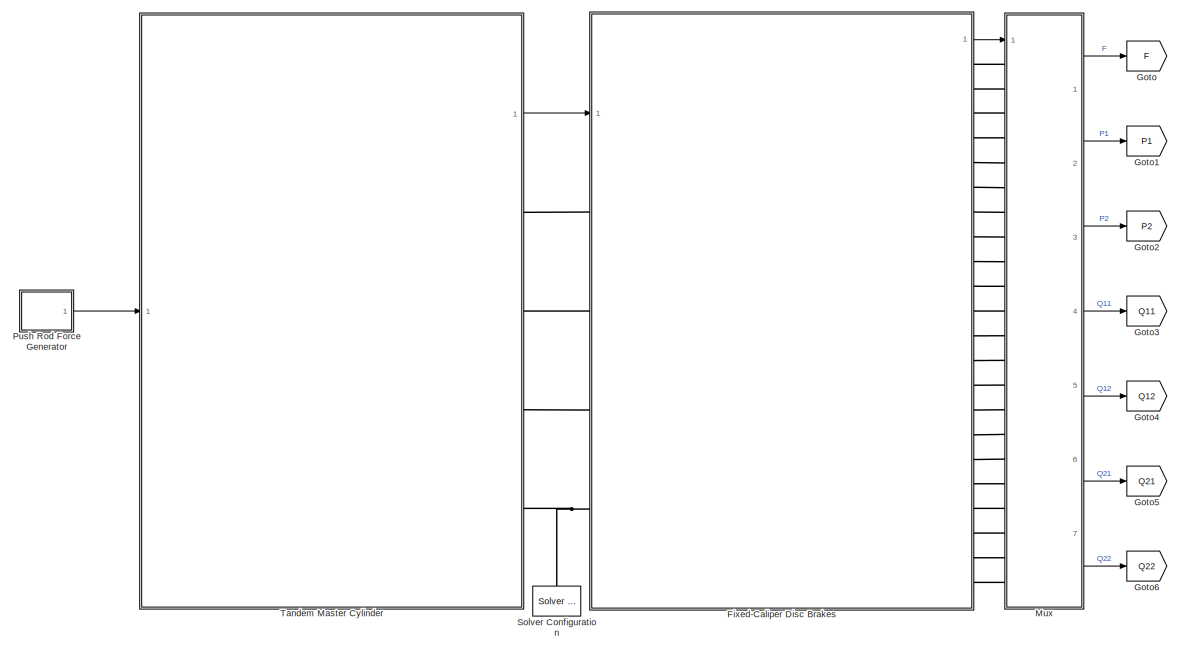
[diagram: root canvas - part 1/2, center side, full height]
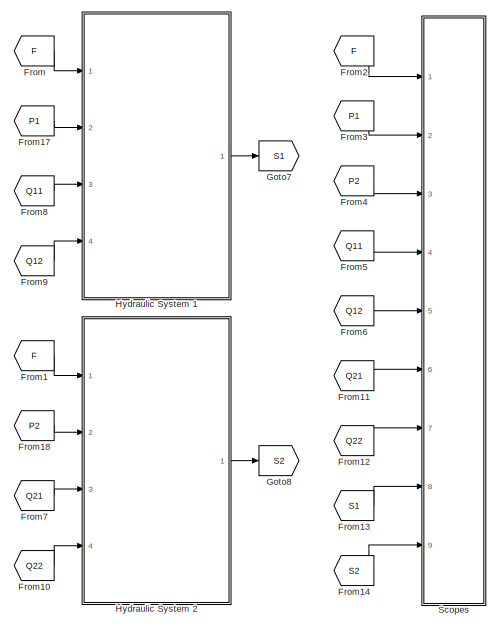
[diagram: root canvas - part 2/2, right side, full height]
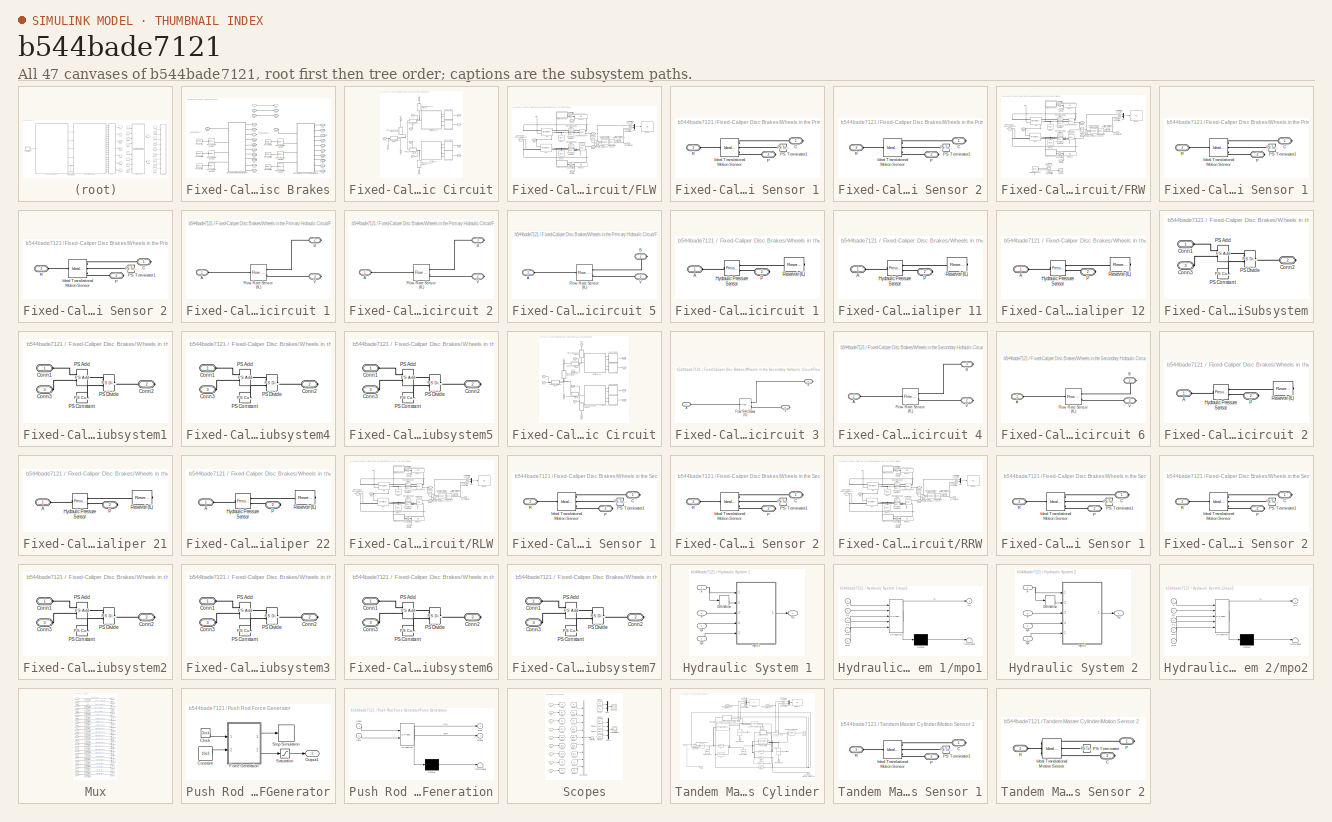
[diagram: thumbnail index - all 47 canvases of the model, root first then tree order]
MODEL slx_b544bade7121
KIND model
CONFIG AbsTol = auto
CONFIG EnableMultiTasking = on
CONFIG FixedStep = 0.0001
CONFIG InitFcn = f10 = 5; f11 = f10; f12 = f10;\nf20 = 5; f21 = f20; f22 = f20;\n
CONFIG MaxStep = 0.01
CONFIG MinStep = auto
CONFIG PreLoadFcn = sdl_braking_caliper_disk_brake_input
CONFIG RelTol = 1e-3
CONFIG SampleTimeConstraint = Unconstrained
CONFIG SolverName = VariableStepAuto
CONFIG StartTime = 0.0
CONFIG StopTime = 10
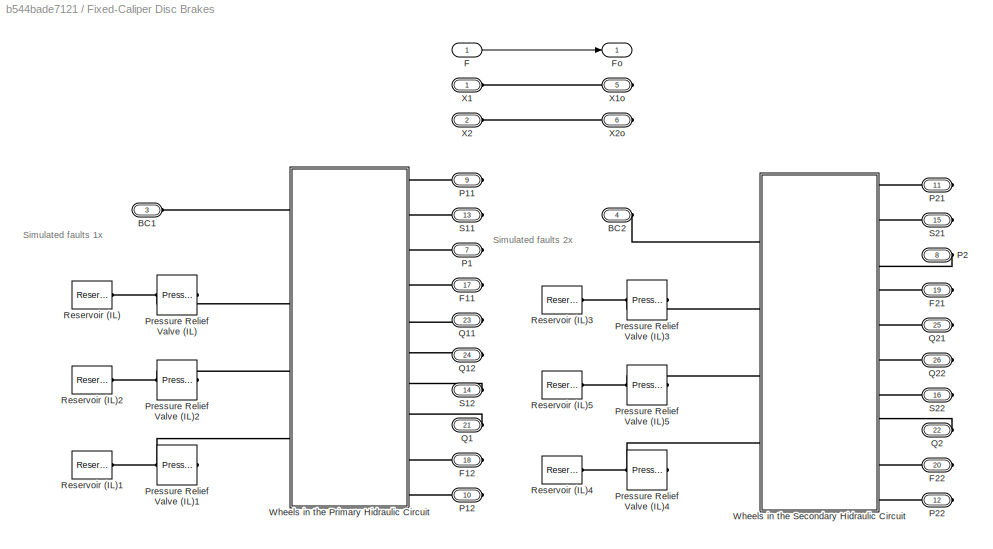
BLOCK [SubSystem] Fixed-Caliper Disc Brakes
  Ports = [1, 1, 0, 0, 0, 4, 22]
  RequestExecContextInheritance = off
  Tag = ModelFeatures
BLOCK [PMIOPort] Fixed-Caliper Disc Brakes/BC1
  Port = 3
  Side = Left
BLOCK [PMIOPort] Fixed-Caliper Disc Brakes/BC2
  Port = 4
  Side = Left
BLOCK [Inport] Fixed-Caliper Disc Brakes/F
BLOCK [PMIOPort] Fixed-Caliper Disc Brakes/F11
  Port = 17
  Side = Right
BLOCK [PMIOPort] Fixed-Caliper Disc Brakes/F12
  Port = 18
  Side = Right
BLOCK [PMIOPort] Fixed-Caliper Disc Brakes/F21
  Port = 19
  Side = Right
BLOCK [PMIOPort] Fixed-Caliper Disc Brakes/F22
  Port = 20
  Side = Right
BLOCK [Outport] Fixed-Caliper Disc Brakes/Fo
BLOCK [PMIOPort] Fixed-Caliper Disc Brakes/P1
  Port = 7
  Side = Right
BLOCK [PMIOPort] Fixed-Caliper Disc Brakes/P11
  Port = 9
  Side = Right
BLOCK [PMIOPort] Fixed-Caliper Disc Brakes/P12
  Port = 10
  Side = Right
BLOCK [PMIOPort] Fixed-Caliper Disc Brakes/P2
  Port = 8
  Side = Right
BLOCK [PMIOPort] Fixed-Caliper Disc Brakes/P21
  Port = 11
  Side = Right
BLOCK [PMIOPort] Fixed-Caliper Disc Brakes/P22
  Port = 12
  Side = Right
BLOCK [Reference] Fixed-Caliper Disc Brakes/Pressure Relief Valve (IL)  REF=SimscapeFluids_lib/Isothermal Liquid/Valves & Orifices/Pressure Control
Valves/Pressure Relief
Valve (IL)
  NameLocation = top
  Ports = [0, 0, 0, 0, 0, 1, 1]
  SourceBlock = SimscapeFluids_lib/Isothermal Liquid/Valves & Orifices/Pressure Control\nValves/Pressure Relief\nValve (IL)
  SourceProductBaseCode = SH
  SourceType = Pressure Relief\nValve (IL)
BLOCK [Reference] Fixed-Caliper Disc Brakes/Pressure Relief Valve (IL)1  REF=SimscapeFluids_lib/Isothermal Liquid/Valves & Orifices/Pressure Control
Valves/Pressure Relief
Valve (IL)
  NameLocation = top
  Ports = [0, 0, 0, 0, 0, 1, 1]
  SourceBlock = SimscapeFluids_lib/Isothermal Liquid/Valves & Orifices/Pressure Control\nValves/Pressure Relief\nValve (IL)
  SourceProductBaseCode = SH
  SourceType = Pressure Relief\nValve (IL)
BLOCK [Reference] Fixed-Caliper Disc Brakes/Pressure Relief Valve (IL)2  REF=SimscapeFluids_lib/Isothermal Liquid/Valves & Orifices/Pressure Control
Valves/Pressure Relief
Valve (IL)
  NameLocation = top
  Ports = [0, 0, 0, 0, 0, 1, 1]
  SourceBlock = SimscapeFluids_lib/Isothermal Liquid/Valves & Orifices/Pressure Control\nValves/Pressure Relief\nValve (IL)
  SourceProductBaseCode = SH
  SourceType = Pressure Relief\nValve (IL)
BLOCK [Reference] Fixed-Caliper Disc Brakes/Pressure Relief Valve (IL)3  REF=SimscapeFluids_lib/Isothermal Liquid/Valves & Orifices/Pressure Control
Valves/Pressure Relief
Valve (IL)
  NameLocation = top
  Ports = [0, 0, 0, 0, 0, 1, 1]
  SourceBlock = SimscapeFluids_lib/Isothermal Liquid/Valves & Orifices/Pressure Control\nValves/Pressure Relief\nValve (IL)
  SourceProductBaseCode = SH
  SourceType = Pressure Relief\nValve (IL)
BLOCK [Reference] Fixed-Caliper Disc Brakes/Pressure Relief Valve (IL)4  REF=SimscapeFluids_lib/Isothermal Liquid/Valves & Orifices/Pressure Control
Valves/Pressure Relief
Valve (IL)
  NameLocation = top
  Ports = [0, 0, 0, 0, 0, 1, 1]
  SourceBlock = SimscapeFluids_lib/Isothermal Liquid/Valves & Orifices/Pressure Control\nValves/Pressure Relief\nValve (IL)
  SourceProductBaseCode = SH
  SourceType = Pressure Relief\nValve (IL)
BLOCK [Reference] Fixed-Caliper Disc Brakes/Pressure Relief Valve (IL)5  REF=SimscapeFluids_lib/Isothermal Liquid/Valves & Orifices/Pressure Control
Valves/Pressure Relief
Valve (IL)
  NameLocation = top
  Ports = [0, 0, 0, 0, 0, 1, 1]
  SourceBlock = SimscapeFluids_lib/Isothermal Liquid/Valves & Orifices/Pressure Control\nValves/Pressure Relief\nValve (IL)
  SourceProductBaseCode = SH
  SourceType = Pressure Relief\nValve (IL)
BLOCK [PMIOPort] Fixed-Caliper Disc Brakes/Q1
  Port = 21
  Side = Right
BLOCK [PMIOPort] Fixed-Caliper Disc Brakes/Q11
  Port = 23
  Side = Right
BLOCK [PMIOPort] Fixed-Caliper Disc Brakes/Q12
  Port = 24
  Side = Right
BLOCK [PMIOPort] Fixed-Caliper Disc Brakes/Q2
  Port = 22
  Side = Right
BLOCK [PMIOPort] Fixed-Caliper Disc Brakes/Q21
  Port = 25
  Side = Right
BLOCK [PMIOPort] Fixed-Caliper Disc Brakes/Q22
  Port = 26
  Side = Right
BLOCK [Reference] Fixed-Caliper Disc Brakes/Reservoir (IL)  REF=fl_lib/Isothermal Liquid/Elements/Reservoir (IL)
  Ports = [0, 0, 0, 0, 0, 1]
  SourceBlock = fl_lib/Isothermal Liquid/Elements/Reservoir (IL)
  SourceProductBaseCode = SS
  SourceType = Reservoir (IL)
BLOCK [Reference] Fixed-Caliper Disc Brakes/Reservoir (IL)1  REF=fl_lib/Isothermal Liquid/Elements/Reservoir (IL)
  Ports = [0, 0, 0, 0, 0, 1]
  SourceBlock = fl_lib/Isothermal Liquid/Elements/Reservoir (IL)
  SourceProductBaseCode = SS
  SourceType = Reservoir (IL)
BLOCK [Reference] Fixed-Caliper Disc Brakes/Reservoir (IL)2  REF=fl_lib/Isothermal Liquid/Elements/Reservoir (IL)
  Ports = [0, 0, 0, 0, 0, 1]
  SourceBlock = fl_lib/Isothermal Liquid/Elements/Reservoir (IL)
  SourceProductBaseCode = SS
  SourceType = Reservoir (IL)
BLOCK [Reference] Fixed-Caliper Disc Brakes/Reservoir (IL)3  REF=fl_lib/Isothermal Liquid/Elements/Reservoir (IL)
  Ports = [0, 0, 0, 0, 0, 1]
  SourceBlock = fl_lib/Isothermal Liquid/Elements/Reservoir (IL)
  SourceProductBaseCode = SS
  SourceType = Reservoir (IL)
BLOCK [Reference] Fixed-Caliper Disc Brakes/Reservoir (IL)4  REF=fl_lib/Isothermal Liquid/Elements/Reservoir (IL)
  Ports = [0, 0, 0, 0, 0, 1]
  SourceBlock = fl_lib/Isothermal Liquid/Elements/Reservoir (IL)
  SourceProductBaseCode = SS
  SourceType = Reservoir (IL)
BLOCK [Reference] Fixed-Caliper Disc Brakes/Reservoir (IL)5  REF=fl_lib/Isothermal Liquid/Elements/Reservoir (IL)
  Ports = [0, 0, 0, 0, 0, 1]
  SourceBlock = fl_lib/Isothermal Liquid/Elements/Reservoir (IL)
  SourceProductBaseCode = SS
  SourceType = Reservoir (IL)
BLOCK [PMIOPort] Fixed-Caliper Disc Brakes/S11
  Port = 13
  Side = Right
BLOCK [PMIOPort] Fixed-Caliper Disc Brakes/S12
  Port = 14
  Side = Right
BLOCK [PMIOPort] Fixed-Caliper Disc Brakes/S21
  Port = 15
  Side = Right
BLOCK [PMIOPort] Fixed-Caliper Disc Brakes/S22
  Port = 16
  Side = Right
BLOCK [SubSystem] Fixed-Caliper Disc Brakes/Wheels in the Primary Hidraulic Circuit
  Ports = [0, 0, 0, 0, 0, 4, 10]
  RequestExecContextInheritance = off
BLOCK [PMIOPort] Fixed-Caliper Disc Brakes/Wheels in the Primary Hidraulic Circuit/BC1
  Port = 6
  Side = Left
BLOCK [PMIOPort] Fixed-Caliper Disc Brakes/Wheels in the Primary Hidraulic Circuit/F11
  Port = 4
  Side = Right
BLOCK [PMIOPort] Fixed-Caliper Disc Brakes/Wheels in the Primary Hidraulic Circuit/F12
  Port = 10
  Side = Right
BLOCK [SubSystem] Fixed-Caliper Disc Brakes/Wheels in the Primary Hidraulic Circuit/FLW
  Ports = [0, 0, 0, 0, 0, 1, 4]
  RequestExecContextInheritance = off
BLOCK [PMIOPort] Fixed-Caliper Disc Brakes/Wheels in the Primary Hidraulic Circuit/FLW/Brk1
  Port = 3
  Side = Left
BLOCK [Reference] Fixed-Caliper Disc Brakes/Wheels in the Primary Hidraulic Circuit/FLW/CP  REF=fl_lib/Isothermal Liquid/Elements/Translational
Mechanical Converter
(IL)
  NameLocation = top
  Ports = [0, 0, 0, 0, 0, 2, 1]
  SourceBlock = fl_lib/Isothermal Liquid/Elements/Translational\nMechanical Converter\n(IL)
  SourceProductBaseCode = SS
  SourceType = Translational\nMechanical Converter\n(IL)
BLOCK [Reference] Fixed-Caliper Disc Brakes/Wheels in the Primary Hidraulic Circuit/FLW/CP1  REF=fl_lib/Isothermal Liquid/Elements/Translational
Mechanical Converter
(IL)
  Ports = [0, 0, 0, 0, 0, 2, 1]
  SourceBlock = fl_lib/Isothermal Liquid/Elements/Translational\nMechanical Converter\n(IL)
  SourceProductBaseCode = SS
  SourceType = Translational\nMechanical Converter\n(IL)
BLOCK [PMIOPort] Fixed-Caliper Disc Brakes/Wheels in the Primary Hidraulic Circuit/FLW/CPF1
  Port = 4
  Side = Right
BLOCK [PMIOPort] Fixed-Caliper Disc Brakes/Wheels in the Primary Hidraulic Circuit/FLW/CPF2
  Port = 5
  Side = Right
BLOCK [PMIOPort] Fixed-Caliper Disc Brakes/Wheels in the Primary Hidraulic Circuit/FLW/CPTM1
  Side = Right
BLOCK [PMIOPort] Fixed-Caliper Disc Brakes/Wheels in the Primary Hidraulic Circuit/FLW/CPTM2
  Port = 2
  Side = Right
BLOCK [Display] Fixed-Caliper Disc Brakes/Wheels in the Primary Hidraulic Circuit/FLW/Display
  Decimation = 1
  Ports = [1]
BLOCK [Display] Fixed-Caliper Disc Brakes/Wheels in the Primary Hidraulic Circuit/FLW/Display1
  Decimation = 1
  Ports = [1]
BLOCK [Display] Fixed-Caliper Disc Brakes/Wheels in the Primary Hidraulic Circuit/FLW/Display2
  Decimation = 1
  Ports = [1]
BLOCK [Reference] Fixed-Caliper Disc Brakes/Wheels in the Primary Hidraulic Circuit/FLW/Ideal Force Sensor  REF=fl_lib/Mechanical/Mechanical Sensors/Ideal Force Sensor
  Ports = [0, 0, 0, 0, 0, 1, 2]
  SourceBlock = fl_lib/Mechanical/Mechanical Sensors/Ideal Force Sensor
  SourceProductBaseCode = SS
  SourceType = Ideal Force Sensor
BLOCK [Reference] Fixed-Caliper Disc Brakes/Wheels in the Primary Hidraulic Circuit/FLW/Ideal Force Sensor1  REF=fl_lib/Mechanical/Mechanical Sensors/Ideal Force Sensor
  NameLocation = top
  Ports = [0, 0, 0, 0, 0, 1, 2]
  SourceBlock = fl_lib/Mechanical/Mechanical Sensors/Ideal Force Sensor
  SourceProductBaseCode = SS
  SourceType = Ideal Force Sensor
BLOCK [Reference] Fixed-Caliper Disc Brakes/Wheels in the Primary Hidraulic Circuit/FLW/Ideal Torque Sensor  REF=fl_lib/Mechanical/Mechanical Sensors/Ideal Torque Sensor
  Ports = [0, 0, 0, 0, 0, 1, 2]
  SourceBlock = fl_lib/Mechanical/Mechanical Sensors/Ideal Torque Sensor
  SourceProductBaseCode = SS
  SourceType = Ideal Torque Sensor
BLOCK [Reference] Fixed-Caliper Disc Brakes/Wheels in the Primary Hidraulic Circuit/FLW/Loaded-Contact Rotational Friction  REF=sdl_lib/Brakes & Detents/Rotational/Loaded-Contact
Rotational Friction
  Ports = [0, 0, 0, 0, 0, 2, 1]
  SourceBlock = sdl_lib/Brakes & Detents/Rotational/Loaded-Contact\nRotational Friction
  SourceProductBaseCode = LD
  SourceType = Loaded-Contact\nRotational Friction
BLOCK [Reference] Fixed-Caliper Disc Brakes/Wheels in the Primary Hidraulic Circuit/FLW/Mass  REF=fl_lib/Mechanical/Translational
Elements/Mass
  NameLocation = right
  Ports = [0, 0, 0, 0, 0, 1]
  SourceBlock = fl_lib/Mechanical/Translational\nElements/Mass
  SourceProductBaseCode = SS
  SourceType = Mass
BLOCK [Reference] Fixed-Caliper Disc Brakes/Wheels in the Primary Hidraulic Circuit/FLW/Mass1  REF=fl_lib/Mechanical/Translational
Elements/Mass
  NameLocation = right
  Ports = [0, 0, 0, 0, 0, 1]
  SourceBlock = fl_lib/Mechanical/Translational\nElements/Mass
  SourceProductBaseCode = SS
  SourceType = Mass
BLOCK [Reference] Fixed-Caliper Disc Brakes/Wheels in the Primary Hidraulic Circuit/FLW/Mechanical Rotational Reference  REF=fl_lib/Mechanical/Rotational Elements/Mechanical
Rotational Reference
  Ports = [0, 0, 0, 0, 0, 1]
  SourceBlock = fl_lib/Mechanical/Rotational Elements/Mechanical\nRotational Reference
  SourceProductBaseCode = SS
  SourceType = Mechanical\nRotational Reference
BLOCK [Reference] Fixed-Caliper Disc Brakes/Wheels in the Primary Hidraulic Circuit/FLW/Mechanical Rotational Reference1  REF=fl_lib/Mechanical/Rotational Elements/Mechanical
Rotational Reference
  NameLocation = top
  Ports = [0, 0, 0, 0, 0, 1]
  SourceBlock = fl_lib/Mechanical/Rotational Elements/Mechanical\nRotational Reference
  SourceProductBaseCode = SS
  SourceType = Mechanical\nRotational Reference
BLOCK [Reference] Fixed-Caliper Disc Brakes/Wheels in the Primary Hidraulic Circuit/FLW/Mechanical Translational Reference  REF=fl_lib/Mechanical/Translational
Elements/Mechanical
Translational
Reference
  Ports = [0, 0, 0, 0, 0, 1]
  SourceBlock = fl_lib/Mechanical/Translational\nElements/Mechanical\nTranslational\nReference
  SourceProductBaseCode = SS
  SourceType = Mechanical\nTranslational\nReference
BLOCK [SubSystem] Fixed-Caliper Disc Brakes/Wheels in the Primary Hidraulic Circuit/FLW/Motion Sensor 1
  Ports = [0, 0, 0, 0, 0, 1, 2]
  RequestExecContextInheritance = off
BLOCK [PMIOPort] Fixed-Caliper Disc Brakes/Wheels in the Primary Hidraulic Circuit/FLW/Motion Sensor 1/C
  Side = Right
BLOCK [Reference] Fixed-Caliper Disc Brakes/Wheels in the Primary Hidraulic Circuit/FLW/Motion Sensor 1/Ideal Translational Motion Sensor  REF=fl_lib/Mechanical/Mechanical Sensors/Ideal Translational
Motion Sensor
  Ports = [0, 0, 0, 0, 0, 1, 3]
  SourceBlock = fl_lib/Mechanical/Mechanical Sensors/Ideal Translational\nMotion Sensor
  SourceProductBaseCode = SS
  SourceType = Ideal Translational\nMotion Sensor
BLOCK [PMIOPort] Fixed-Caliper Disc Brakes/Wheels in the Primary Hidraulic Circuit/FLW/Motion Sensor 1/P
  Port = 2
  Side = Right
BLOCK [Reference] Fixed-Caliper Disc Brakes/Wheels in the Primary Hidraulic Circuit/FLW/Motion Sensor 1/PS Terminator1  REF=fl_lib/Physical Signals/Sinks/PS Terminator
  Ports = [0, 0, 0, 0, 0, 1]
  SourceBlock = fl_lib/Physical Signals/Sinks/PS Terminator
  SourceProductBaseCode = SS
  SourceType = PS Terminator
BLOCK [PMIOPort] Fixed-Caliper Disc Brakes/Wheels in the Primary Hidraulic Circuit/FLW/Motion Sensor 1/R
  Port = 3
  Side = Left
BLOCK [SubSystem] Fixed-Caliper Disc Brakes/Wheels in the Primary Hidraulic Circuit/FLW/Motion Sensor 2
  Ports = [0, 0, 0, 0, 0, 1, 2]
  RequestExecContextInheritance = off
BLOCK [PMIOPort] Fixed-Caliper Disc Brakes/Wheels in the Primary Hidraulic Circuit/FLW/Motion Sensor 2/C
  Side = Right
BLOCK [Reference] Fixed-Caliper Disc Brakes/Wheels in the Primary Hidraulic Circuit/FLW/Motion Sensor 2/Ideal Translational Motion Sensor  REF=fl_lib/Mechanical/Mechanical Sensors/Ideal Translational
Motion Sensor
  Ports = [0, 0, 0, 0, 0, 1, 3]
  SourceBlock = fl_lib/Mechanical/Mechanical Sensors/Ideal Translational\nMotion Sensor
  SourceProductBaseCode = SS
  SourceType = Ideal Translational\nMotion Sensor
BLOCK [PMIOPort] Fixed-Caliper Disc Brakes/Wheels in the Primary Hidraulic Circuit/FLW/Motion Sensor 2/P
  Port = 2
  Side = Right
BLOCK [Reference] Fixed-Caliper Disc Brakes/Wheels in the Primary Hidraulic Circuit/FLW/Motion Sensor 2/PS Terminator1  REF=fl_lib/Physical Signals/Sinks/PS Terminator
  Ports = [0, 0, 0, 0, 0, 1]
  SourceBlock = fl_lib/Physical Signals/Sinks/PS Terminator
  SourceProductBaseCode = SS
  SourceType = PS Terminator
BLOCK [PMIOPort] Fixed-Caliper Disc Brakes/Wheels in the Primary Hidraulic Circuit/FLW/Motion Sensor 2/R
  Port = 3
  Side = Left
BLOCK [Mux] Fixed-Caliper Disc Brakes/Wheels in the Primary Hidraulic Circuit/FLW/Mux
  DisplayOption = bar
  Inputs = 2
  Ports = [2, 1]
BLOCK [Reference] Fixed-Caliper Disc Brakes/Wheels in the Primary Hidraulic Circuit/FLW/PS Add  REF=fl_lib/Physical Signals/Functions/PS Add
  Ports = [0, 0, 0, 0, 0, 2, 1]
  SourceBlock = fl_lib/Physical Signals/Functions/PS Add
  SourceProductBaseCode = SS
  SourceType = PS Add
BLOCK [Reference] Fixed-Caliper Disc Brakes/Wheels in the Primary Hidraulic Circuit/FLW/PS Terminator  REF=fl_lib/Physical Signals/Sinks/PS Terminator
  Ports = [0, 0, 0, 0, 0, 1]
  SourceBlock = fl_lib/Physical Signals/Sinks/PS Terminator
  SourceProductBaseCode = SS
  SourceType = PS Terminator
BLOCK [Reference] Fixed-Caliper Disc Brakes/Wheels in the Primary Hidraulic Circuit/FLW/PS-Simulink Converter  REF=nesl_utility/PS-Simulink
Converter
  Ports = [0, 1, 0, 0, 0, 1]
  SourceBlock = nesl_utility/PS-Simulink\nConverter
  SourceProductBaseCode = PW,SS
  SourceType = PS-Simulink\nConverter
BLOCK [Reference] Fixed-Caliper Disc Brakes/Wheels in the Primary Hidraulic Circuit/FLW/PS-Simulink Converter1  REF=nesl_utility/PS-Simulink
Converter
  Ports = [0, 1, 0, 0, 0, 1]
  SourceBlock = nesl_utility/PS-Simulink\nConverter
  SourceProductBaseCode = PW,SS
  SourceType = PS-Simulink\nConverter
BLOCK [Reference] Fixed-Caliper Disc Brakes/Wheels in the Primary Hidraulic Circuit/FLW/PS-Simulink Converter2  REF=nesl_utility/PS-Simulink
Converter
  Ports = [0, 1, 0, 0, 0, 1]
  SourceBlock = nesl_utility/PS-Simulink\nConverter
  SourceProductBaseCode = PW,SS
  SourceType = PS-Simulink\nConverter
BLOCK [Reference] Fixed-Caliper Disc Brakes/Wheels in the Primary Hidraulic Circuit/FLW/PS-Simulink Converter3  REF=nesl_utility/PS-Simulink
Converter
  Ports = [0, 1, 0, 0, 0, 1]
  SourceBlock = nesl_utility/PS-Simulink\nConverter
  SourceProductBaseCode = PW,SS
  SourceType = PS-Simulink\nConverter
BLOCK [Reference] Fixed-Caliper Disc Brakes/Wheels in the Primary Hidraulic Circuit/FLW/Translational Damper  REF=fl_lib/Mechanical/Translational
Elements/Translational Damper
  NameLocation = top
  Ports = [0, 0, 0, 0, 0, 1, 1]
  SourceBlock = fl_lib/Mechanical/Translational\nElements/Translational Damper
  SourceProductBaseCode = SS
  SourceType = Translational Damper
BLOCK [Reference] Fixed-Caliper Disc Brakes/Wheels in the Primary Hidraulic Circuit/FLW/Translational Damper1  REF=fl_lib/Mechanical/Translational
Elements/Translational Damper
  NameLocation = top
  Ports = [0, 0, 0, 0, 0, 1, 1]
  SourceBlock = fl_lib/Mechanical/Translational\nElements/Translational Damper
  SourceProductBaseCode = SS
  SourceType = Translational Damper
BLOCK [Reference] Fixed-Caliper Disc Brakes/Wheels in the Primary Hidraulic Circuit/FLW/Translational Hard Stop  REF=fl_lib/Mechanical/Translational
Elements/Translational Hard
Stop
  Ports = [0, 0, 0, 0, 0, 1, 1]
  SourceBlock = fl_lib/Mechanical/Translational\nElements/Translational Hard\nStop
  SourceProductBaseCode = SS
  SourceType = Translational Hard\nStop
BLOCK [Reference] Fixed-Caliper Disc Brakes/Wheels in the Primary Hidraulic Circuit/FLW/Translational Hard Stop1  REF=fl_lib/Mechanical/Translational
Elements/Translational Hard
Stop
  Ports = [0, 0, 0, 0, 0, 1, 1]
  SourceBlock = fl_lib/Mechanical/Translational\nElements/Translational Hard\nStop
  SourceProductBaseCode = SS
  SourceType = Translational Hard\nStop
BLOCK [SubSystem] Fixed-Caliper Disc Brakes/Wheels in the Primary Hidraulic Circuit/FRW
  Ports = [0, 0, 0, 0, 0, 1, 4]
  RequestExecContextInheritance = off
BLOCK [PMIOPort] Fixed-Caliper Disc Brakes/Wheels in the Primary Hidraulic Circuit/FRW/Brk1
  Port = 3
  Side = Left
BLOCK [Reference] Fixed-Caliper Disc Brakes/Wheels in the Primary Hidraulic Circuit/FRW/CP  REF=fl_lib/Isothermal Liquid/Elements/Translational
Mechanical Converter
(IL)
  NameLocation = top
  Ports = [0, 0, 0, 0, 0, 2, 1]
  SourceBlock = fl_lib/Isothermal Liquid/Elements/Translational\nMechanical Converter\n(IL)
  SourceProductBaseCode = SS
  SourceType = Translational\nMechanical Converter\n(IL)
BLOCK [Reference] Fixed-Caliper Disc Brakes/Wheels in the Primary Hidraulic Circuit/FRW/CP1  REF=fl_lib/Isothermal Liquid/Elements/Translational
Mechanical Converter
(IL)
  Ports = [0, 0, 0, 0, 0, 2, 1]
  SourceBlock = fl_lib/Isothermal Liquid/Elements/Translational\nMechanical Converter\n(IL)
  SourceProductBaseCode = SS
  SourceType = Translational\nMechanical Converter\n(IL)
BLOCK [PMIOPort] Fixed-Caliper Disc Brakes/Wheels in the Primary Hidraulic Circuit/FRW/CPF1
  Port = 4
  Side = Right
BLOCK [PMIOPort] Fixed-Caliper Disc Brakes/Wheels in the Primary Hidraulic Circuit/FRW/CPF2
  Port = 5
  Side = Right
BLOCK [PMIOPort] Fixed-Caliper Disc Brakes/Wheels in the Primary Hidraulic Circuit/FRW/CPTM1
  Side = Right
BLOCK [PMIOPort] Fixed-Caliper Disc Brakes/Wheels in the Primary Hidraulic Circuit/FRW/CPTM2
  Port = 2
  Side = Right
BLOCK [Display] Fixed-Caliper Disc Brakes/Wheels in the Primary Hidraulic Circuit/FRW/Display
  Decimation = 1
  Ports = [1]
BLOCK [Display] Fixed-Caliper Disc Brakes/Wheels in the Primary Hidraulic Circuit/FRW/Display1
  Decimation = 1
  Ports = [1]
BLOCK [Display] Fixed-Caliper Disc Brakes/Wheels in the Primary Hidraulic Circuit/FRW/Display2
  Decimation = 1
  Ports = [1]
BLOCK [Reference] Fixed-Caliper Disc Brakes/Wheels in the Primary Hidraulic Circuit/FRW/Flow Rate Sensor (IL)  REF=fl_lib/Isothermal Liquid/Sensors/Flow Rate Sensor
(IL)
  Commented = on
  Ports = [0, 0, 0, 0, 0, 1, 2]
  SourceBlock = fl_lib/Isothermal Liquid/Sensors/Flow Rate Sensor\n(IL)
  SourceProductBaseCode = SS
  SourceType = Flow Rate Sensor\n(IL)
BLOCK [Reference] Fixed-Caliper Disc Brakes/Wheels in the Primary Hidraulic Circuit/FRW/Hydraulic Reference1  REF=fl_lib/Isothermal Liquid/Elements/Reservoir (IL)
  Commented = on
  NameLocation = top
  Ports = [0, 0, 0, 0, 0, 1]
  SourceBlock = fl_lib/Isothermal Liquid/Elements/Reservoir (IL)
  SourceProductBaseCode = SS
  SourceType = Reservoir (IL)
BLOCK [Reference] Fixed-Caliper Disc Brakes/Wheels in the Primary Hidraulic Circuit/FRW/Ideal Force Sensor  REF=fl_lib/Mechanical/Mechanical Sensors/Ideal Force Sensor
  Ports = [0, 0, 0, 0, 0, 1, 2]
  SourceBlock = fl_lib/Mechanical/Mechanical Sensors/Ideal Force Sensor
  SourceProductBaseCode = SS
  SourceType = Ideal Force Sensor
BLOCK [Reference] Fixed-Caliper Disc Brakes/Wheels in the Primary Hidraulic Circuit/FRW/Ideal Force Sensor1  REF=fl_lib/Mechanical/Mechanical Sensors/Ideal Force Sensor
  NameLocation = top
  Ports = [0, 0, 0, 0, 0, 1, 2]
  SourceBlock = fl_lib/Mechanical/Mechanical Sensors/Ideal Force Sensor
  SourceProductBaseCode = SS
  SourceType = Ideal Force Sensor
BLOCK [Reference] Fixed-Caliper Disc Brakes/Wheels in the Primary Hidraulic Circuit/FRW/Ideal Torque Sensor  REF=fl_lib/Mechanical/Mechanical Sensors/Ideal Torque Sensor
  Ports = [0, 0, 0, 0, 0, 1, 2]
  SourceBlock = fl_lib/Mechanical/Mechanical Sensors/Ideal Torque Sensor
  SourceProductBaseCode = SS
  SourceType = Ideal Torque Sensor
BLOCK [Reference] Fixed-Caliper Disc Brakes/Wheels in the Primary Hidraulic Circuit/FRW/Loaded-Contact Rotational Friction  REF=sdl_lib/Brakes & Detents/Rotational/Loaded-Contact
Rotational Friction
  Ports = [0, 0, 0, 0, 0, 2, 1]
  SourceBlock = sdl_lib/Brakes & Detents/Rotational/Loaded-Contact\nRotational Friction
  SourceProductBaseCode = LD
  SourceType = Loaded-Contact\nRotational Friction
BLOCK [Reference] Fixed-Caliper Disc Brakes/Wheels in the Primary Hidraulic Circuit/FRW/Mass  REF=fl_lib/Mechanical/Translational
Elements/Mass
  NameLocation = right
  Ports = [0, 0, 0, 0, 0, 1]
  SourceBlock = fl_lib/Mechanical/Translational\nElements/Mass
  SourceProductBaseCode = SS
  SourceType = Mass
BLOCK [Reference] Fixed-Caliper Disc Brakes/Wheels in the Primary Hidraulic Circuit/FRW/Mass1  REF=fl_lib/Mechanical/Translational
Elements/Mass
  NameLocation = right
  Ports = [0, 0, 0, 0, 0, 1]
  SourceBlock = fl_lib/Mechanical/Translational\nElements/Mass
  SourceProductBaseCode = SS
  SourceType = Mass
BLOCK [Reference] Fixed-Caliper Disc Brakes/Wheels in the Primary Hidraulic Circuit/FRW/Mechanical Rotational Reference  REF=fl_lib/Mechanical/Rotational Elements/Mechanical
Rotational Reference
  Ports = [0, 0, 0, 0, 0, 1]
  SourceBlock = fl_lib/Mechanical/Rotational Elements/Mechanical\nRotational Reference
  SourceProductBaseCode = SS
  SourceType = Mechanical\nRotational Reference
BLOCK [Reference] Fixed-Caliper Disc Brakes/Wheels in the Primary Hidraulic Circuit/FRW/Mechanical Rotational Reference1  REF=fl_lib/Mechanical/Rotational Elements/Mechanical
Rotational Reference
  NameLocation = top
  Ports = [0, 0, 0, 0, 0, 1]
  SourceBlock = fl_lib/Mechanical/Rotational Elements/Mechanical\nRotational Reference
  SourceProductBaseCode = SS
  SourceType = Mechanical\nRotational Reference
BLOCK [Reference] Fixed-Caliper Disc Brakes/Wheels in the Primary Hidraulic Circuit/FRW/Mechanical Translational Reference  REF=fl_lib/Mechanical/Translational
Elements/Mechanical
Translational
Reference
  Ports = [0, 0, 0, 0, 0, 1]
  SourceBlock = fl_lib/Mechanical/Translational\nElements/Mechanical\nTranslational\nReference
  SourceProductBaseCode = SS
  SourceType = Mechanical\nTranslational\nReference
BLOCK [SubSystem] Fixed-Caliper Disc Brakes/Wheels in the Primary Hidraulic Circuit/FRW/Motion Sensor 1
  Ports = [0, 0, 0, 0, 0, 1, 2]
  RequestExecContextInheritance = off
BLOCK [PMIOPort] Fixed-Caliper Disc Brakes/Wheels in the Primary Hidraulic Circuit/FRW/Motion Sensor 1/C
  Side = Right
BLOCK [Reference] Fixed-Caliper Disc Brakes/Wheels in the Primary Hidraulic Circuit/FRW/Motion Sensor 1/Ideal Translational Motion Sensor  REF=fl_lib/Mechanical/Mechanical Sensors/Ideal Translational
Motion Sensor
  Ports = [0, 0, 0, 0, 0, 1, 3]
  SourceBlock = fl_lib/Mechanical/Mechanical Sensors/Ideal Translational\nMotion Sensor
  SourceProductBaseCode = SS
  SourceType = Ideal Translational\nMotion Sensor
BLOCK [PMIOPort] Fixed-Caliper Disc Brakes/Wheels in the Primary Hidraulic Circuit/FRW/Motion Sensor 1/P
  Port = 2
  Side = Right
BLOCK [Reference] Fixed-Caliper Disc Brakes/Wheels in the Primary Hidraulic Circuit/FRW/Motion Sensor 1/PS Terminator1  REF=fl_lib/Physical Signals/Sinks/PS Terminator
  Ports = [0, 0, 0, 0, 0, 1]
  SourceBlock = fl_lib/Physical Signals/Sinks/PS Terminator
  SourceProductBaseCode = SS
  SourceType = PS Terminator
BLOCK [PMIOPort] Fixed-Caliper Disc Brakes/Wheels in the Primary Hidraulic Circuit/FRW/Motion Sensor 1/R
  Port = 3
  Side = Left
BLOCK [SubSystem] Fixed-Caliper Disc Brakes/Wheels in the Primary Hidraulic Circuit/FRW/Motion Sensor 2
  Ports = [0, 0, 0, 0, 0, 1, 2]
  RequestExecContextInheritance = off
BLOCK [PMIOPort] Fixed-Caliper Disc Brakes/Wheels in the Primary Hidraulic Circuit/FRW/Motion Sensor 2/C
  Side = Right
BLOCK [Reference] Fixed-Caliper Disc Brakes/Wheels in the Primary Hidraulic Circuit/FRW/Motion Sensor 2/Ideal Translational Motion Sensor  REF=fl_lib/Mechanical/Mechanical Sensors/Ideal Translational
Motion Sensor
  Ports = [0, 0, 0, 0, 0, 1, 3]
  SourceBlock = fl_lib/Mechanical/Mechanical Sensors/Ideal Translational\nMotion Sensor
  SourceProductBaseCode = SS
  SourceType = Ideal Translational\nMotion Sensor
BLOCK [PMIOPort] Fixed-Caliper Disc Brakes/Wheels in the Primary Hidraulic Circuit/FRW/Motion Sensor 2/P
  Port = 2
  Side = Right
BLOCK [Reference] Fixed-Caliper Disc Brakes/Wheels in the Primary Hidraulic Circuit/FRW/Motion Sensor 2/PS Terminator1  REF=fl_lib/Physical Signals/Sinks/PS Terminator
  Ports = [0, 0, 0, 0, 0, 1]
  SourceBlock = fl_lib/Physical Signals/Sinks/PS Terminator
  SourceProductBaseCode = SS
  SourceType = PS Terminator
BLOCK [PMIOPort] Fixed-Caliper Disc Brakes/Wheels in the Primary Hidraulic Circuit/FRW/Motion Sensor 2/R
  Port = 3
  Side = Left
BLOCK [Mux] Fixed-Caliper Disc Brakes/Wheels in the Primary Hidraulic Circuit/FRW/Mux
  DisplayOption = bar
  Inputs = 2
  Ports = [2, 1]
BLOCK [Reference] Fixed-Caliper Disc Brakes/Wheels in the Primary Hidraulic Circuit/FRW/PS Add  REF=fl_lib/Physical Signals/Functions/PS Add
  Ports = [0, 0, 0, 0, 0, 2, 1]
  SourceBlock = fl_lib/Physical Signals/Functions/PS Add
  SourceProductBaseCode = SS
  SourceType = PS Add
BLOCK [Reference] Fixed-Caliper Disc Brakes/Wheels in the Primary Hidraulic Circuit/FRW/PS Terminator  REF=fl_lib/Physical Signals/Sinks/PS Terminator
  Ports = [0, 0, 0, 0, 0, 1]
  SourceBlock = fl_lib/Physical Signals/Sinks/PS Terminator
  SourceProductBaseCode = SS
  SourceType = PS Terminator
BLOCK [Reference] Fixed-Caliper Disc Brakes/Wheels in the Primary Hidraulic Circuit/FRW/PS-Simulink Converter  REF=nesl_utility/PS-Simulink
Converter
  Ports = [0, 1, 0, 0, 0, 1]
  SourceBlock = nesl_utility/PS-Simulink\nConverter
  SourceProductBaseCode = PW,SS
  SourceType = PS-Simulink\nConverter
BLOCK [Reference] Fixed-Caliper Disc Brakes/Wheels in the Primary Hidraulic Circuit/FRW/PS-Simulink Converter1  REF=nesl_utility/PS-Simulink
Converter
  Ports = [0, 1, 0, 0, 0, 1]
  SourceBlock = nesl_utility/PS-Simulink\nConverter
  SourceProductBaseCode = PW,SS
  SourceType = PS-Simulink\nConverter
BLOCK [Reference] Fixed-Caliper Disc Brakes/Wheels in the Primary Hidraulic Circuit/FRW/PS-Simulink Converter2  REF=nesl_utility/PS-Simulink
Converter
  Ports = [0, 1, 0, 0, 0, 1]
  SourceBlock = nesl_utility/PS-Simulink\nConverter
  SourceProductBaseCode = PW,SS
  SourceType = PS-Simulink\nConverter
BLOCK [Reference] Fixed-Caliper Disc Brakes/Wheels in the Primary Hidraulic Circuit/FRW/PS-Simulink Converter3  REF=nesl_utility/PS-Simulink
Converter
  Ports = [0, 1, 0, 0, 0, 1]
  SourceBlock = nesl_utility/PS-Simulink\nConverter
  SourceProductBaseCode = PW,SS
  SourceType = PS-Simulink\nConverter
BLOCK [Reference] Fixed-Caliper Disc Brakes/Wheels in the Primary Hidraulic Circuit/FRW/PS-Simulink Converter4  REF=nesl_utility/PS-Simulink
Converter
  Commented = on
  Ports = [0, 1, 0, 0, 0, 1]
  SourceBlock = nesl_utility/PS-Simulink\nConverter
  SourceProductBaseCode = PW,SS
  SourceType = PS-Simulink\nConverter
BLOCK [Scope] Fixed-Caliper Disc Brakes/Wheels in the Primary Hidraulic Circuit/FRW/Scope
  Commented = on
  Floating = off
  NumInputPorts = 1
  Ports = [1]
  ScopeSpecificationString = Simulink.scopes.TimeScopeBlockCfg('CurrentConfiguration', extmgr.ConfigurationSet(extmgr.Configuration('Core','General UI',true),extmgr.Configuration('Core','Source UI',true),extmgr.Configuration('Sources','WiredSimulink',true,'DataLoggingVariableName','ScopeData1'),extmgr.Configuration('Visuals','Time Domain',true,'SerializedDisplays',{struct('MinYLimReal','-0.02419','MaxYLimReal','0.21769','YLab...<+1381ch>
BLOCK [Reference] Fixed-Caliper Disc Brakes/Wheels in the Primary Hidraulic Circuit/FRW/Translational Damper  REF=fl_lib/Mechanical/Translational
Elements/Translational Damper
  NameLocation = top
  Ports = [0, 0, 0, 0, 0, 1, 1]
  SourceBlock = fl_lib/Mechanical/Translational\nElements/Translational Damper
  SourceProductBaseCode = SS
  SourceType = Translational Damper
BLOCK [Reference] Fixed-Caliper Disc Brakes/Wheels in the Primary Hidraulic Circuit/FRW/Translational Damper1  REF=fl_lib/Mechanical/Translational
Elements/Translational Damper
  NameLocation = top
  Ports = [0, 0, 0, 0, 0, 1, 1]
  SourceBlock = fl_lib/Mechanical/Translational\nElements/Translational Damper
  SourceProductBaseCode = SS
  SourceType = Translational Damper
BLOCK [Reference] Fixed-Caliper Disc Brakes/Wheels in the Primary Hidraulic Circuit/FRW/Translational Hard Stop  REF=fl_lib/Mechanical/Translational
Elements/Translational Hard
Stop
  Ports = [0, 0, 0, 0, 0, 1, 1]
  SourceBlock = fl_lib/Mechanical/Translational\nElements/Translational Hard\nStop
  SourceProductBaseCode = SS
  SourceType = Translational Hard\nStop
BLOCK [Reference] Fixed-Caliper Disc Brakes/Wheels in the Primary Hidraulic Circuit/FRW/Translational Hard Stop1  REF=fl_lib/Mechanical/Translational
Elements/Translational Hard
Stop
  Ports = [0, 0, 0, 0, 0, 1, 1]
  SourceBlock = fl_lib/Mechanical/Translational\nElements/Translational Hard\nStop
  SourceProductBaseCode = SS
  SourceType = Translational Hard\nStop
BLOCK [SubSystem] Fixed-Caliper Disc Brakes/Wheels in the Primary Hidraulic Circuit/Flow Sensor - Brake circuit 1
  Ports = [0, 0, 0, 0, 0, 1, 2]
  RequestExecContextInheritance = off
BLOCK [PMIOPort] Fixed-Caliper Disc Brakes/Wheels in the Primary Hidraulic Circuit/Flow Sensor - Brake circuit 1/A
  Side = Left
BLOCK [PMIOPort] Fixed-Caliper Disc Brakes/Wheels in the Primary Hidraulic Circuit/Flow Sensor - Brake circuit 1/B
  Port = 2
  Side = Right
BLOCK [Reference] Fixed-Caliper Disc Brakes/Wheels in the Primary Hidraulic Circuit/Flow Sensor - Brake circuit 1/Flow Rate Sensor (IL)  REF=fl_lib/Isothermal Liquid/Sensors/Flow Rate Sensor
(IL)
  Ports = [0, 0, 0, 0, 0, 1, 2]
  SourceBlock = fl_lib/Isothermal Liquid/Sensors/Flow Rate Sensor\n(IL)
  SourceProductBaseCode = SS
  SourceType = Flow Rate Sensor\n(IL)
BLOCK [PMIOPort] Fixed-Caliper Disc Brakes/Wheels in the Primary Hidraulic Circuit/Flow Sensor - Brake circuit 1/V
  Port = 3
  Side = Right
BLOCK [SubSystem] Fixed-Caliper Disc Brakes/Wheels in the Primary Hidraulic Circuit/Flow Sensor - Brake circuit 2
  Ports = [0, 0, 0, 0, 0, 1, 2]
  RequestExecContextInheritance = off
BLOCK [PMIOPort] Fixed-Caliper Disc Brakes/Wheels in the Primary Hidraulic Circuit/Flow Sensor - Brake circuit 2/A
  Side = Left
BLOCK [PMIOPort] Fixed-Caliper Disc Brakes/Wheels in the Primary Hidraulic Circuit/Flow Sensor - Brake circuit 2/B
  Port = 3
  Side = Right
BLOCK [Reference] Fixed-Caliper Disc Brakes/Wheels in the Primary Hidraulic Circuit/Flow Sensor - Brake circuit 2/Flow Rate Sensor (IL)  REF=fl_lib/Isothermal Liquid/Sensors/Flow Rate Sensor
(IL)
  Ports = [0, 0, 0, 0, 0, 1, 2]
  SourceBlock = fl_lib/Isothermal Liquid/Sensors/Flow Rate Sensor\n(IL)
  SourceProductBaseCode = SS
  SourceType = Flow Rate Sensor\n(IL)
BLOCK [PMIOPort] Fixed-Caliper Disc Brakes/Wheels in the Primary Hidraulic Circuit/Flow Sensor - Brake circuit 2/V
  Port = 2
  Side = Right
BLOCK [SubSystem] Fixed-Caliper Disc Brakes/Wheels in the Primary Hidraulic Circuit/Flow Sensor - Brake circuit 5
  Ports = [0, 0, 0, 0, 0, 1, 2]
  RequestExecContextInheritance = off
BLOCK [PMIOPort] Fixed-Caliper Disc Brakes/Wheels in the Primary Hidraulic Circuit/Flow Sensor - Brake circuit 5/A
  Side = Left
BLOCK [PMIOPort] Fixed-Caliper Disc Brakes/Wheels in the Primary Hidraulic Circuit/Flow Sensor - Brake circuit 5/B
  Port = 2
  Side = Right
BLOCK [Reference] Fixed-Caliper Disc Brakes/Wheels in the Primary Hidraulic Circuit/Flow Sensor - Brake circuit 5/Flow Rate Sensor (IL)  REF=fl_lib/Isothermal Liquid/Sensors/Flow Rate Sensor
(IL)
  Ports = [0, 0, 0, 0, 0, 1, 2]
  SourceBlock = fl_lib/Isothermal Liquid/Sensors/Flow Rate Sensor\n(IL)
  SourceProductBaseCode = SS
  SourceType = Flow Rate Sensor\n(IL)
BLOCK [PMIOPort] Fixed-Caliper Disc Brakes/Wheels in the Primary Hidraulic Circuit/Flow Sensor - Brake circuit 5/V
  Port = 3
  Side = Right
BLOCK [PMIOPort] Fixed-Caliper Disc Brakes/Wheels in the Primary Hidraulic Circuit/P1
  NameLocation = left
  Port = 3
  Side = Right
BLOCK [PMIOPort] Fixed-Caliper Disc Brakes/Wheels in the Primary Hidraulic Circuit/P11
  NameLocation = left
  Side = Right
BLOCK [PMIOPort] Fixed-Caliper Disc Brakes/Wheels in the Primary Hidraulic Circuit/P12
  NameLocation = right
  Port = 11
  Side = Right
BLOCK [SubSystem] Fixed-Caliper Disc Brakes/Wheels in the Primary Hidraulic Circuit/Pressure Sensor - Brake circuit 1
  NameLocation = left
  Ports = [0, 0, 0, 0, 0, 1, 1]
  RequestExecContextInheritance = off
BLOCK [PMIOPort] Fixed-Caliper Disc Brakes/Wheels in the Primary Hidraulic Circuit/Pressure Sensor - Brake circuit 1/A
  Side = Left
BLOCK [Reference] Fixed-Caliper Disc Brakes/Wheels in the Primary Hidraulic Circuit/Pressure Sensor - Brake circuit 1/Hydraulic Pressure Sensor  REF=fl_lib/Isothermal Liquid/Sensors/Pressure Sensor (IL)
  NameLocation = top
  Ports = [0, 0, 0, 0, 0, 1, 2]
  SourceBlock = fl_lib/Isothermal Liquid/Sensors/Pressure Sensor (IL)
  SourceProductBaseCode = SS
  SourceType = Pressure Sensor (IL)
BLOCK [PMIOPort] Fixed-Caliper Disc Brakes/Wheels in the Primary Hidraulic Circuit/Pressure Sensor - Brake circuit 1/P
  Port = 2
  Side = Right
BLOCK [Reference] Fixed-Caliper Disc Brakes/Wheels in the Primary Hidraulic Circuit/Pressure Sensor - Brake circuit 1/Reservoir (IL)  REF=fl_lib/Isothermal Liquid/Elements/Reservoir (IL)
  NameLocation = top
  Ports = [0, 0, 0, 0, 0, 1]
  SourceBlock = fl_lib/Isothermal Liquid/Elements/Reservoir (IL)
  SourceProductBaseCode = SS
  SourceType = Reservoir (IL)
BLOCK [SubSystem] Fixed-Caliper Disc Brakes/Wheels in the Primary Hidraulic Circuit/Pressure Sensor - Caliper 11
  NameLocation = left
  Ports = [0, 0, 0, 0, 0, 1, 1]
  RequestExecContextInheritance = off
BLOCK [PMIOPort] Fixed-Caliper Disc Brakes/Wheels in the Primary Hidraulic Circuit/Pressure Sensor - Caliper 11/A
  Side = Left
BLOCK [Reference] Fixed-Caliper Disc Brakes/Wheels in the Primary Hidraulic Circuit/Pressure Sensor - Caliper 11/Hydraulic Pressure Sensor  REF=fl_lib/Isothermal Liquid/Sensors/Pressure Sensor (IL)
  NameLocation = top
  Ports = [0, 0, 0, 0, 0, 1, 2]
  SourceBlock = fl_lib/Isothermal Liquid/Sensors/Pressure Sensor (IL)
  SourceProductBaseCode = SS
  SourceType = Pressure Sensor (IL)
BLOCK [PMIOPort] Fixed-Caliper Disc Brakes/Wheels in the Primary Hidraulic Circuit/Pressure Sensor - Caliper 11/P
  Port = 2
  Side = Right
BLOCK [Reference] Fixed-Caliper Disc Brakes/Wheels in the Primary Hidraulic Circuit/Pressure Sensor - Caliper 11/Reservoir (IL)  REF=fl_lib/Isothermal Liquid/Elements/Reservoir (IL)
  NameLocation = top
  Ports = [0, 0, 0, 0, 0, 1]
  SourceBlock = fl_lib/Isothermal Liquid/Elements/Reservoir (IL)
  SourceProductBaseCode = SS
  SourceType = Reservoir (IL)
BLOCK [SubSystem] Fixed-Caliper Disc Brakes/Wheels in the Primary Hidraulic Circuit/Pressure Sensor - Caliper 12
  NameLocation = right
  Ports = [0, 0, 0, 0, 0, 1, 1]
  RequestExecContextInheritance = off
BLOCK [PMIOPort] Fixed-Caliper Disc Brakes/Wheels in the Primary Hidraulic Circuit/Pressure Sensor - Caliper 12/A
  Side = Left
BLOCK [Reference] Fixed-Caliper Disc Brakes/Wheels in the Primary Hidraulic Circuit/Pressure Sensor - Caliper 12/Hydraulic Pressure Sensor  REF=fl_lib/Isothermal Liquid/Sensors/Pressure Sensor (IL)
  NameLocation = top
  Ports = [0, 0, 0, 0, 0, 1, 2]
  SourceBlock = fl_lib/Isothermal Liquid/Sensors/Pressure Sensor (IL)
  SourceProductBaseCode = SS
  SourceType = Pressure Sensor (IL)
BLOCK [PMIOPort] Fixed-Caliper Disc Brakes/Wheels in the Primary Hidraulic Circuit/Pressure Sensor - Caliper 12/P
  Port = 2
  Side = Right
BLOCK [Reference] Fixed-Caliper Disc Brakes/Wheels in the Primary Hidraulic Circuit/Pressure Sensor - Caliper 12/Reservoir (IL)  REF=fl_lib/Isothermal Liquid/Elements/Reservoir (IL)
  NameLocation = top
  Ports = [0, 0, 0, 0, 0, 1]
  SourceBlock = fl_lib/Isothermal Liquid/Elements/Reservoir (IL)
  SourceProductBaseCode = SS
  SourceType = Reservoir (IL)
BLOCK [PMIOPort] Fixed-Caliper Disc Brakes/Wheels in the Primary Hidraulic Circuit/Q1
  NameLocation = right
  Port = 9
  Side = Right
BLOCK [PMIOPort] Fixed-Caliper Disc Brakes/Wheels in the Primary Hidraulic Circuit/Q11
  Port = 5
  Side = Right
BLOCK [PMIOPort] Fixed-Caliper Disc Brakes/Wheels in the Primary Hidraulic Circuit/Q12
  Port = 7
  Side = Right
BLOCK [PMIOPort] Fixed-Caliper Disc Brakes/Wheels in the Primary Hidraulic Circuit/S11
  Port = 2
  Side = Right
BLOCK [PMIOPort] Fixed-Caliper Disc Brakes/Wheels in the Primary Hidraulic Circuit/S12
  Port = 8
  Side = Right
BLOCK [SubSystem] Fixed-Caliper Disc Brakes/Wheels in the Primary Hidraulic Circuit/Subsystem
  Ports = [0, 0, 0, 0, 0, 2, 1]
  RequestExecContextInheritance = off
BLOCK [PMIOPort] Fixed-Caliper Disc Brakes/Wheels in the Primary Hidraulic Circuit/Subsystem/Conn1
  Side = Left
BLOCK [PMIOPort] Fixed-Caliper Disc Brakes/Wheels in the Primary Hidraulic Circuit/Subsystem/Conn2
  Port = 2
  Side = Right
BLOCK [PMIOPort] Fixed-Caliper Disc Brakes/Wheels in the Primary Hidraulic Circuit/Subsystem/Conn3
  Port = 3
  Side = Left
BLOCK [Reference] Fixed-Caliper Disc Brakes/Wheels in the Primary Hidraulic Circuit/Subsystem/PS Add  REF=fl_lib/Physical Signals/Functions/PS Add
  Ports = [0, 0, 0, 0, 0, 2, 1]
  SourceBlock = fl_lib/Physical Signals/Functions/PS Add
  SourceProductBaseCode = SS
  SourceType = PS Add
BLOCK [Reference] Fixed-Caliper Disc Brakes/Wheels in the Primary Hidraulic Circuit/Subsystem/PS Constant  REF=fl_lib/Physical Signals/Sources/PS Constant
  Ports = [0, 0, 0, 0, 0, 0, 1]
  SourceBlock = fl_lib/Physical Signals/Sources/PS Constant
  SourceProductBaseCode = SS
  SourceType = PS Constant
BLOCK [Reference] Fixed-Caliper Disc Brakes/Wheels in the Primary Hidraulic Circuit/Subsystem/PS Divide  REF=fl_lib/Physical Signals/Functions/PS Divide
  Ports = [0, 0, 0, 0, 0, 2, 1]
  SourceBlock = fl_lib/Physical Signals/Functions/PS Divide
  SourceProductBaseCode = SS
  SourceType = PS Divide
BLOCK [SubSystem] Fixed-Caliper Disc Brakes/Wheels in the Primary Hidraulic Circuit/Subsystem1
  Ports = [0, 0, 0, 0, 0, 2, 1]
  RequestExecContextInheritance = off
BLOCK [PMIOPort] Fixed-Caliper Disc Brakes/Wheels in the Primary Hidraulic Circuit/Subsystem1/Conn1
  Side = Left
BLOCK [PMIOPort] Fixed-Caliper Disc Brakes/Wheels in the Primary Hidraulic Circuit/Subsystem1/Conn2
  Port = 2
  Side = Right
BLOCK [PMIOPort] Fixed-Caliper Disc Brakes/Wheels in the Primary Hidraulic Circuit/Subsystem1/Conn3
  Port = 3
  Side = Left
BLOCK [Reference] Fixed-Caliper Disc Brakes/Wheels in the Primary Hidraulic Circuit/Subsystem1/PS Add  REF=fl_lib/Physical Signals/Functions/PS Add
  Ports = [0, 0, 0, 0, 0, 2, 1]
  SourceBlock = fl_lib/Physical Signals/Functions/PS Add
  SourceProductBaseCode = SS
  SourceType = PS Add
BLOCK [Reference] Fixed-Caliper Disc Brakes/Wheels in the Primary Hidraulic Circuit/Subsystem1/PS Constant  REF=fl_lib/Physical Signals/Sources/PS Constant
  Ports = [0, 0, 0, 0, 0, 0, 1]
  SourceBlock = fl_lib/Physical Signals/Sources/PS Constant
  SourceProductBaseCode = SS
  SourceType = PS Constant
BLOCK [Reference] Fixed-Caliper Disc Brakes/Wheels in the Primary Hidraulic Circuit/Subsystem1/PS Divide  REF=fl_lib/Physical Signals/Functions/PS Divide
  Ports = [0, 0, 0, 0, 0, 2, 1]
  SourceBlock = fl_lib/Physical Signals/Functions/PS Divide
  SourceProductBaseCode = SS
  SourceType = PS Divide
BLOCK [SubSystem] Fixed-Caliper Disc Brakes/Wheels in the Primary Hidraulic Circuit/Subsystem4
  Ports = [0, 0, 0, 0, 0, 2, 1]
  RequestExecContextInheritance = off
BLOCK [PMIOPort] Fixed-Caliper Disc Brakes/Wheels in the Primary Hidraulic Circuit/Subsystem4/Conn1
  Side = Left
BLOCK [PMIOPort] Fixed-Caliper Disc Brakes/Wheels in the Primary Hidraulic Circuit/Subsystem4/Conn2
  Port = 2
  Side = Right
BLOCK [PMIOPort] Fixed-Caliper Disc Brakes/Wheels in the Primary Hidraulic Circuit/Subsystem4/Conn3
  Port = 3
  Side = Left
BLOCK [Reference] Fixed-Caliper Disc Brakes/Wheels in the Primary Hidraulic Circuit/Subsystem4/PS Add  REF=fl_lib/Physical Signals/Functions/PS Add
  Ports = [0, 0, 0, 0, 0, 2, 1]
  SourceBlock = fl_lib/Physical Signals/Functions/PS Add
  SourceProductBaseCode = SS
  SourceType = PS Add
BLOCK [Reference] Fixed-Caliper Disc Brakes/Wheels in the Primary Hidraulic Circuit/Subsystem4/PS Constant  REF=fl_lib/Physical Signals/Sources/PS Constant
  Ports = [0, 0, 0, 0, 0, 0, 1]
  SourceBlock = fl_lib/Physical Signals/Sources/PS Constant
  SourceProductBaseCode = SS
  SourceType = PS Constant
BLOCK [Reference] Fixed-Caliper Disc Brakes/Wheels in the Primary Hidraulic Circuit/Subsystem4/PS Divide  REF=fl_lib/Physical Signals/Functions/PS Divide
  Ports = [0, 0, 0, 0, 0, 2, 1]
  SourceBlock = fl_lib/Physical Signals/Functions/PS Divide
  SourceProductBaseCode = SS
  SourceType = PS Divide
BLOCK [SubSystem] Fixed-Caliper Disc Brakes/Wheels in the Primary Hidraulic Circuit/Subsystem5
  Ports = [0, 0, 0, 0, 0, 2, 1]
  RequestExecContextInheritance = off
BLOCK [PMIOPort] Fixed-Caliper Disc Brakes/Wheels in the Primary Hidraulic Circuit/Subsystem5/Conn1
  Side = Left
BLOCK [PMIOPort] Fixed-Caliper Disc Brakes/Wheels in the Primary Hidraulic Circuit/Subsystem5/Conn2
  Port = 2
  Side = Right
BLOCK [PMIOPort] Fixed-Caliper Disc Brakes/Wheels in the Primary Hidraulic Circuit/Subsystem5/Conn3
  Port = 3
  Side = Left
BLOCK [Reference] Fixed-Caliper Disc Brakes/Wheels in the Primary Hidraulic Circuit/Subsystem5/PS Add  REF=fl_lib/Physical Signals/Functions/PS Add
  Ports = [0, 0, 0, 0, 0, 2, 1]
  SourceBlock = fl_lib/Physical Signals/Functions/PS Add
  SourceProductBaseCode = SS
  SourceType = PS Add
BLOCK [Reference] Fixed-Caliper Disc Brakes/Wheels in the Primary Hidraulic Circuit/Subsystem5/PS Constant  REF=fl_lib/Physical Signals/Sources/PS Constant
  Ports = [0, 0, 0, 0, 0, 0, 1]
  SourceBlock = fl_lib/Physical Signals/Sources/PS Constant
  SourceProductBaseCode = SS
  SourceType = PS Constant
BLOCK [Reference] Fixed-Caliper Disc Brakes/Wheels in the Primary Hidraulic Circuit/Subsystem5/PS Divide  REF=fl_lib/Physical Signals/Functions/PS Divide
  Ports = [0, 0, 0, 0, 0, 2, 1]
  SourceBlock = fl_lib/Physical Signals/Functions/PS Divide
  SourceProductBaseCode = SS
  SourceType = PS Divide
BLOCK [PMIOPort] Fixed-Caliper Disc Brakes/Wheels in the Primary Hidraulic Circuit/f10
  NameLocation = right
  Port = 12
  Side = Left
BLOCK [PMIOPort] Fixed-Caliper Disc Brakes/Wheels in the Primary Hidraulic Circuit/f11
  Port = 13
  Side = Left
BLOCK [PMIOPort] Fixed-Caliper Disc Brakes/Wheels in the Primary Hidraulic Circuit/f12
  Port = 14
  Side = Left
BLOCK [SubSystem] Fixed-Caliper Disc Brakes/Wheels in the Secondary Hidraulic Circuit
  Ports = [0, 0, 0, 0, 0, 4, 10]
  RequestExecContextInheritance = off
BLOCK [PMIOPort] Fixed-Caliper Disc Brakes/Wheels in the Secondary Hidraulic Circuit/BC2
  Port = 6
  Side = Left
BLOCK [PMIOPort] Fixed-Caliper Disc Brakes/Wheels in the Secondary Hidraulic Circuit/F21
  Port = 4
  Side = Right
BLOCK [PMIOPort] Fixed-Caliper Disc Brakes/Wheels in the Secondary Hidraulic Circuit/F22
  Port = 10
  Side = Right
BLOCK [SubSystem] Fixed-Caliper Disc Brakes/Wheels in the Secondary Hidraulic Circuit/Flow Sensor - Brake circuit 3
  Ports = [0, 0, 0, 0, 0, 1, 2]
  RequestExecContextInheritance = off
BLOCK [PMIOPort] Fixed-Caliper Disc Brakes/Wheels in the Secondary Hidraulic Circuit/Flow Sensor - Brake circuit 3/A
  Side = Left
BLOCK [PMIOPort] Fixed-Caliper Disc Brakes/Wheels in the Secondary Hidraulic Circuit/Flow Sensor - Brake circuit 3/B
  Port = 2
  Side = Right
BLOCK [Reference] Fixed-Caliper Disc Brakes/Wheels in the Secondary Hidraulic Circuit/Flow Sensor - Brake circuit 3/Flow Rate Sensor (IL)  REF=fl_lib/Isothermal Liquid/Sensors/Flow Rate Sensor
(IL)
  Ports = [0, 0, 0, 0, 0, 1, 2]
  SourceBlock = fl_lib/Isothermal Liquid/Sensors/Flow Rate Sensor\n(IL)
  SourceProductBaseCode = SS
  SourceType = Flow Rate Sensor\n(IL)
BLOCK [PMIOPort] Fixed-Caliper Disc Brakes/Wheels in the Secondary Hidraulic Circuit/Flow Sensor - Brake circuit 3/V
  Port = 3
  Side = Right
BLOCK [SubSystem] Fixed-Caliper Disc Brakes/Wheels in the Secondary Hidraulic Circuit/Flow Sensor - Brake circuit 4
  Ports = [0, 0, 0, 0, 0, 1, 2]
  RequestExecContextInheritance = off
BLOCK [PMIOPort] Fixed-Caliper Disc Brakes/Wheels in the Secondary Hidraulic Circuit/Flow Sensor - Brake circuit 4/A
  Side = Left
BLOCK [PMIOPort] Fixed-Caliper Disc Brakes/Wheels in the Secondary Hidraulic Circuit/Flow Sensor - Brake circuit 4/B
  Port = 3
  Side = Right
BLOCK [Reference] Fixed-Caliper Disc Brakes/Wheels in the Secondary Hidraulic Circuit/Flow Sensor - Brake circuit 4/Flow Rate Sensor (IL)  REF=fl_lib/Isothermal Liquid/Sensors/Flow Rate Sensor
(IL)
  Ports = [0, 0, 0, 0, 0, 1, 2]
  SourceBlock = fl_lib/Isothermal Liquid/Sensors/Flow Rate Sensor\n(IL)
  SourceProductBaseCode = SS
  SourceType = Flow Rate Sensor\n(IL)
BLOCK [PMIOPort] Fixed-Caliper Disc Brakes/Wheels in the Secondary Hidraulic Circuit/Flow Sensor - Brake circuit 4/V
  Port = 2
  Side = Right
BLOCK [SubSystem] Fixed-Caliper Disc Brakes/Wheels in the Secondary Hidraulic Circuit/Flow Sensor - Brake circuit 6
  Ports = [0, 0, 0, 0, 0, 1, 2]
  RequestExecContextInheritance = off
BLOCK [PMIOPort] Fixed-Caliper Disc Brakes/Wheels in the Secondary Hidraulic Circuit/Flow Sensor - Brake circuit 6/A
  Side = Left
BLOCK [PMIOPort] Fixed-Caliper Disc Brakes/Wheels in the Secondary Hidraulic Circuit/Flow Sensor - Brake circuit 6/B
  Port = 2
  Side = Right
BLOCK [Reference] Fixed-Caliper Disc Brakes/Wheels in the Secondary Hidraulic Circuit/Flow Sensor - Brake circuit 6/Flow Rate Sensor (IL)  REF=fl_lib/Isothermal Liquid/Sensors/Flow Rate Sensor
(IL)
  Ports = [0, 0, 0, 0, 0, 1, 2]
  SourceBlock = fl_lib/Isothermal Liquid/Sensors/Flow Rate Sensor\n(IL)
  SourceProductBaseCode = SS
  SourceType = Flow Rate Sensor\n(IL)
BLOCK [PMIOPort] Fixed-Caliper Disc Brakes/Wheels in the Secondary Hidraulic Circuit/Flow Sensor - Brake circuit 6/V
  Port = 3
  Side = Right
BLOCK [PMIOPort] Fixed-Caliper Disc Brakes/Wheels in the Secondary Hidraulic Circuit/P2
  NameLocation = left
  Port = 3
  Side = Right
BLOCK [PMIOPort] Fixed-Caliper Disc Brakes/Wheels in the Secondary Hidraulic Circuit/P21
  NameLocation = left
  Side = Right
BLOCK [PMIOPort] Fixed-Caliper Disc Brakes/Wheels in the Secondary Hidraulic Circuit/P22
  NameLocation = right
  Port = 11
  Side = Right
BLOCK [SubSystem] Fixed-Caliper Disc Brakes/Wheels in the Secondary Hidraulic Circuit/Pressure Sensor - Brake circuit 2
  NameLocation = left
  Ports = [0, 0, 0, 0, 0, 1, 1]
  RequestExecContextInheritance = off
BLOCK [PMIOPort] Fixed-Caliper Disc Brakes/Wheels in the Secondary Hidraulic Circuit/Pressure Sensor - Brake circuit 2/A
  Side = Left
BLOCK [Reference] Fixed-Caliper Disc Brakes/Wheels in the Secondary Hidraulic Circuit/Pressure Sensor - Brake circuit 2/Hydraulic Pressure Sensor  REF=fl_lib/Isothermal Liquid/Sensors/Pressure Sensor (IL)
  NameLocation = top
  Ports = [0, 0, 0, 0, 0, 1, 2]
  SourceBlock = fl_lib/Isothermal Liquid/Sensors/Pressure Sensor (IL)
  SourceProductBaseCode = SS
  SourceType = Pressure Sensor (IL)
BLOCK [PMIOPort] Fixed-Caliper Disc Brakes/Wheels in the Secondary Hidraulic Circuit/Pressure Sensor - Brake circuit 2/P
  Port = 2
  Side = Right
BLOCK [Reference] Fixed-Caliper Disc Brakes/Wheels in the Secondary Hidraulic Circuit/Pressure Sensor - Brake circuit 2/Reservoir (IL)  REF=fl_lib/Isothermal Liquid/Elements/Reservoir (IL)
  NameLocation = top
  Ports = [0, 0, 0, 0, 0, 1]
  SourceBlock = fl_lib/Isothermal Liquid/Elements/Reservoir (IL)
  SourceProductBaseCode = SS
  SourceType = Reservoir (IL)
BLOCK [SubSystem] Fixed-Caliper Disc Brakes/Wheels in the Secondary Hidraulic Circuit/Pressure Sensor - Caliper 21
  NameLocation = left
  Ports = [0, 0, 0, 0, 0, 1, 1]
  RequestExecContextInheritance = off
BLOCK [PMIOPort] Fixed-Caliper Disc Brakes/Wheels in the Secondary Hidraulic Circuit/Pressure Sensor - Caliper 21/A
  Side = Left
BLOCK [Reference] Fixed-Caliper Disc Brakes/Wheels in the Secondary Hidraulic Circuit/Pressure Sensor - Caliper 21/Hydraulic Pressure Sensor  REF=fl_lib/Isothermal Liquid/Sensors/Pressure Sensor (IL)
  NameLocation = top
  Ports = [0, 0, 0, 0, 0, 1, 2]
  SourceBlock = fl_lib/Isothermal Liquid/Sensors/Pressure Sensor (IL)
  SourceProductBaseCode = SS
  SourceType = Pressure Sensor (IL)
BLOCK [PMIOPort] Fixed-Caliper Disc Brakes/Wheels in the Secondary Hidraulic Circuit/Pressure Sensor - Caliper 21/P
  Port = 2
  Side = Right
BLOCK [Reference] Fixed-Caliper Disc Brakes/Wheels in the Secondary Hidraulic Circuit/Pressure Sensor - Caliper 21/Reservoir (IL)  REF=fl_lib/Isothermal Liquid/Elements/Reservoir (IL)
  NameLocation = top
  Ports = [0, 0, 0, 0, 0, 1]
  SourceBlock = fl_lib/Isothermal Liquid/Elements/Reservoir (IL)
  SourceProductBaseCode = SS
  SourceType = Reservoir (IL)
BLOCK [SubSystem] Fixed-Caliper Disc Brakes/Wheels in the Secondary Hidraulic Circuit/Pressure Sensor - Caliper 22
  NameLocation = right
  Ports = [0, 0, 0, 0, 0, 1, 1]
  RequestExecContextInheritance = off
BLOCK [PMIOPort] Fixed-Caliper Disc Brakes/Wheels in the Secondary Hidraulic Circuit/Pressure Sensor - Caliper 22/A
  Side = Left
BLOCK [Reference] Fixed-Caliper Disc Brakes/Wheels in the Secondary Hidraulic Circuit/Pressure Sensor - Caliper 22/Hydraulic Pressure Sensor  REF=fl_lib/Isothermal Liquid/Sensors/Pressure Sensor (IL)
  NameLocation = top
  Ports = [0, 0, 0, 0, 0, 1, 2]
  SourceBlock = fl_lib/Isothermal Liquid/Sensors/Pressure Sensor (IL)
  SourceProductBaseCode = SS
  SourceType = Pressure Sensor (IL)
BLOCK [PMIOPort] Fixed-Caliper Disc Brakes/Wheels in the Secondary Hidraulic Circuit/Pressure Sensor - Caliper 22/P
  Port = 2
  Side = Right
BLOCK [Reference] Fixed-Caliper Disc Brakes/Wheels in the Secondary Hidraulic Circuit/Pressure Sensor - Caliper 22/Reservoir (IL)  REF=fl_lib/Isothermal Liquid/Elements/Reservoir (IL)
  NameLocation = top
  Ports = [0, 0, 0, 0, 0, 1]
  SourceBlock = fl_lib/Isothermal Liquid/Elements/Reservoir (IL)
  SourceProductBaseCode = SS
  SourceType = Reservoir (IL)
BLOCK [PMIOPort] Fixed-Caliper Disc Brakes/Wheels in the Secondary Hidraulic Circuit/Q2
  NameLocation = right
  Port = 9
  Side = Right
BLOCK [PMIOPort] Fixed-Caliper Disc Brakes/Wheels in the Secondary Hidraulic Circuit/Q21
  Port = 5
  Side = Right
BLOCK [PMIOPort] Fixed-Caliper Disc Brakes/Wheels in the Secondary Hidraulic Circuit/Q22
  Port = 7
  Side = Right
BLOCK [SubSystem] Fixed-Caliper Disc Brakes/Wheels in the Secondary Hidraulic Circuit/RLW
  Ports = [0, 0, 0, 0, 0, 1, 4]
  RequestExecContextInheritance = off
BLOCK [PMIOPort] Fixed-Caliper Disc Brakes/Wheels in the Secondary Hidraulic Circuit/RLW/Brk1
  Port = 3
  Side = Left
BLOCK [Reference] Fixed-Caliper Disc Brakes/Wheels in the Secondary Hidraulic Circuit/RLW/CP  REF=fl_lib/Isothermal Liquid/Elements/Translational
Mechanical Converter
(IL)
  NameLocation = top
  Ports = [0, 0, 0, 0, 0, 2, 1]
  SourceBlock = fl_lib/Isothermal Liquid/Elements/Translational\nMechanical Converter\n(IL)
  SourceProductBaseCode = SS
  SourceType = Translational\nMechanical Converter\n(IL)
BLOCK [Reference] Fixed-Caliper Disc Brakes/Wheels in the Secondary Hidraulic Circuit/RLW/CP1  REF=fl_lib/Isothermal Liquid/Elements/Translational
Mechanical Converter
(IL)
  Ports = [0, 0, 0, 0, 0, 2, 1]
  SourceBlock = fl_lib/Isothermal Liquid/Elements/Translational\nMechanical Converter\n(IL)
  SourceProductBaseCode = SS
  SourceType = Translational\nMechanical Converter\n(IL)
BLOCK [PMIOPort] Fixed-Caliper Disc Brakes/Wheels in the Secondary Hidraulic Circuit/RLW/CPF1
  Port = 4
  Side = Right
BLOCK [PMIOPort] Fixed-Caliper Disc Brakes/Wheels in the Secondary Hidraulic Circuit/RLW/CPF2
  Port = 5
  Side = Right
BLOCK [PMIOPort] Fixed-Caliper Disc Brakes/Wheels in the Secondary Hidraulic Circuit/RLW/CPTM1
  Side = Right
BLOCK [PMIOPort] Fixed-Caliper Disc Brakes/Wheels in the Secondary Hidraulic Circuit/RLW/CPTM2
  Port = 2
  Side = Right
BLOCK [Display] Fixed-Caliper Disc Brakes/Wheels in the Secondary Hidraulic Circuit/RLW/Display
  Decimation = 1
  Ports = [1]
BLOCK [Display] Fixed-Caliper Disc Brakes/Wheels in the Secondary Hidraulic Circuit/RLW/Display1
  Decimation = 1
  Ports = [1]
BLOCK [Display] Fixed-Caliper Disc Brakes/Wheels in the Secondary Hidraulic Circuit/RLW/Display2
  Decimation = 1
  Ports = [1]
BLOCK [Reference] Fixed-Caliper Disc Brakes/Wheels in the Secondary Hidraulic Circuit/RLW/Ideal Force Sensor  REF=fl_lib/Mechanical/Mechanical Sensors/Ideal Force Sensor
  Ports = [0, 0, 0, 0, 0, 1, 2]
  SourceBlock = fl_lib/Mechanical/Mechanical Sensors/Ideal Force Sensor
  SourceProductBaseCode = SS
  SourceType = Ideal Force Sensor
BLOCK [Reference] Fixed-Caliper Disc Brakes/Wheels in the Secondary Hidraulic Circuit/RLW/Ideal Force Sensor1  REF=fl_lib/Mechanical/Mechanical Sensors/Ideal Force Sensor
  NameLocation = top
  Ports = [0, 0, 0, 0, 0, 1, 2]
  SourceBlock = fl_lib/Mechanical/Mechanical Sensors/Ideal Force Sensor
  SourceProductBaseCode = SS
  SourceType = Ideal Force Sensor
BLOCK [Reference] Fixed-Caliper Disc Brakes/Wheels in the Secondary Hidraulic Circuit/RLW/Ideal Torque Sensor  REF=fl_lib/Mechanical/Mechanical Sensors/Ideal Torque Sensor
  Ports = [0, 0, 0, 0, 0, 1, 2]
  SourceBlock = fl_lib/Mechanical/Mechanical Sensors/Ideal Torque Sensor
  SourceProductBaseCode = SS
  SourceType = Ideal Torque Sensor
BLOCK [Reference] Fixed-Caliper Disc Brakes/Wheels in the Secondary Hidraulic Circuit/RLW/Loaded-Contact Rotational Friction  REF=sdl_lib/Brakes & Detents/Rotational/Loaded-Contact
Rotational Friction
  Ports = [0, 0, 0, 0, 0, 2, 1]
  SourceBlock = sdl_lib/Brakes & Detents/Rotational/Loaded-Contact\nRotational Friction
  SourceProductBaseCode = LD
  SourceType = Loaded-Contact\nRotational Friction
BLOCK [Reference] Fixed-Caliper Disc Brakes/Wheels in the Secondary Hidraulic Circuit/RLW/Mass  REF=fl_lib/Mechanical/Translational
Elements/Mass
  NameLocation = right
  Ports = [0, 0, 0, 0, 0, 1]
  SourceBlock = fl_lib/Mechanical/Translational\nElements/Mass
  SourceProductBaseCode = SS
  SourceType = Mass
BLOCK [Reference] Fixed-Caliper Disc Brakes/Wheels in the Secondary Hidraulic Circuit/RLW/Mass1  REF=fl_lib/Mechanical/Translational
Elements/Mass
  NameLocation = right
  Ports = [0, 0, 0, 0, 0, 1]
  SourceBlock = fl_lib/Mechanical/Translational\nElements/Mass
  SourceProductBaseCode = SS
  SourceType = Mass
BLOCK [Reference] Fixed-Caliper Disc Brakes/Wheels in the Secondary Hidraulic Circuit/RLW/Mechanical Rotational Reference  REF=fl_lib/Mechanical/Rotational Elements/Mechanical
Rotational Reference
  Ports = [0, 0, 0, 0, 0, 1]
  SourceBlock = fl_lib/Mechanical/Rotational Elements/Mechanical\nRotational Reference
  SourceProductBaseCode = SS
  SourceType = Mechanical\nRotational Reference
BLOCK [Reference] Fixed-Caliper Disc Brakes/Wheels in the Secondary Hidraulic Circuit/RLW/Mechanical Rotational Reference1  REF=fl_lib/Mechanical/Rotational Elements/Mechanical
Rotational Reference
  NameLocation = top
  Ports = [0, 0, 0, 0, 0, 1]
  SourceBlock = fl_lib/Mechanical/Rotational Elements/Mechanical\nRotational Reference
  SourceProductBaseCode = SS
  SourceType = Mechanical\nRotational Reference
BLOCK [Reference] Fixed-Caliper Disc Brakes/Wheels in the Secondary Hidraulic Circuit/RLW/Mechanical Translational Reference  REF=fl_lib/Mechanical/Translational
Elements/Mechanical
Translational
Reference
  Ports = [0, 0, 0, 0, 0, 1]
  SourceBlock = fl_lib/Mechanical/Translational\nElements/Mechanical\nTranslational\nReference
  SourceProductBaseCode = SS
  SourceType = Mechanical\nTranslational\nReference
BLOCK [SubSystem] Fixed-Caliper Disc Brakes/Wheels in the Secondary Hidraulic Circuit/RLW/Motion Sensor 1
  Ports = [0, 0, 0, 0, 0, 1, 2]
  RequestExecContextInheritance = off
BLOCK [PMIOPort] Fixed-Caliper Disc Brakes/Wheels in the Secondary Hidraulic Circuit/RLW/Motion Sensor 1/C
  Side = Right
BLOCK [Reference] Fixed-Caliper Disc Brakes/Wheels in the Secondary Hidraulic Circuit/RLW/Motion Sensor 1/Ideal Translational Motion Sensor  REF=fl_lib/Mechanical/Mechanical Sensors/Ideal Translational
Motion Sensor
  Ports = [0, 0, 0, 0, 0, 1, 3]
  SourceBlock = fl_lib/Mechanical/Mechanical Sensors/Ideal Translational\nMotion Sensor
  SourceProductBaseCode = SS
  SourceType = Ideal Translational\nMotion Sensor
BLOCK [PMIOPort] Fixed-Caliper Disc Brakes/Wheels in the Secondary Hidraulic Circuit/RLW/Motion Sensor 1/P
  Port = 2
  Side = Right
BLOCK [Reference] Fixed-Caliper Disc Brakes/Wheels in the Secondary Hidraulic Circuit/RLW/Motion Sensor 1/PS Terminator1  REF=fl_lib/Physical Signals/Sinks/PS Terminator
  Ports = [0, 0, 0, 0, 0, 1]
  SourceBlock = fl_lib/Physical Signals/Sinks/PS Terminator
  SourceProductBaseCode = SS
  SourceType = PS Terminator
BLOCK [PMIOPort] Fixed-Caliper Disc Brakes/Wheels in the Secondary Hidraulic Circuit/RLW/Motion Sensor 1/R
  Port = 3
  Side = Left
BLOCK [SubSystem] Fixed-Caliper Disc Brakes/Wheels in the Secondary Hidraulic Circuit/RLW/Motion Sensor 2
  Ports = [0, 0, 0, 0, 0, 1, 2]
  RequestExecContextInheritance = off
BLOCK [PMIOPort] Fixed-Caliper Disc Brakes/Wheels in the Secondary Hidraulic Circuit/RLW/Motion Sensor 2/C
  Side = Right
BLOCK [Reference] Fixed-Caliper Disc Brakes/Wheels in the Secondary Hidraulic Circuit/RLW/Motion Sensor 2/Ideal Translational Motion Sensor  REF=fl_lib/Mechanical/Mechanical Sensors/Ideal Translational
Motion Sensor
  Ports = [0, 0, 0, 0, 0, 1, 3]
  SourceBlock = fl_lib/Mechanical/Mechanical Sensors/Ideal Translational\nMotion Sensor
  SourceProductBaseCode = SS
  SourceType = Ideal Translational\nMotion Sensor
BLOCK [PMIOPort] Fixed-Caliper Disc Brakes/Wheels in the Secondary Hidraulic Circuit/RLW/Motion Sensor 2/P
  Port = 2
  Side = Right
BLOCK [Reference] Fixed-Caliper Disc Brakes/Wheels in the Secondary Hidraulic Circuit/RLW/Motion Sensor 2/PS Terminator1  REF=fl_lib/Physical Signals/Sinks/PS Terminator
  Ports = [0, 0, 0, 0, 0, 1]
  SourceBlock = fl_lib/Physical Signals/Sinks/PS Terminator
  SourceProductBaseCode = SS
  SourceType = PS Terminator
BLOCK [PMIOPort] Fixed-Caliper Disc Brakes/Wheels in the Secondary Hidraulic Circuit/RLW/Motion Sensor 2/R
  Port = 3
  Side = Left
BLOCK [Mux] Fixed-Caliper Disc Brakes/Wheels in the Secondary Hidraulic Circuit/RLW/Mux
  DisplayOption = bar
  Inputs = 2
  Ports = [2, 1]
BLOCK [Reference] Fixed-Caliper Disc Brakes/Wheels in the Secondary Hidraulic Circuit/RLW/PS Add  REF=fl_lib/Physical Signals/Functions/PS Add
  Ports = [0, 0, 0, 0, 0, 2, 1]
  SourceBlock = fl_lib/Physical Signals/Functions/PS Add
  SourceProductBaseCode = SS
  SourceType = PS Add
BLOCK [Reference] Fixed-Caliper Disc Brakes/Wheels in the Secondary Hidraulic Circuit/RLW/PS Terminator  REF=fl_lib/Physical Signals/Sinks/PS Terminator
  Ports = [0, 0, 0, 0, 0, 1]
  SourceBlock = fl_lib/Physical Signals/Sinks/PS Terminator
  SourceProductBaseCode = SS
  SourceType = PS Terminator
BLOCK [Reference] Fixed-Caliper Disc Brakes/Wheels in the Secondary Hidraulic Circuit/RLW/PS-Simulink Converter  REF=nesl_utility/PS-Simulink
Converter
  Ports = [0, 1, 0, 0, 0, 1]
  SourceBlock = nesl_utility/PS-Simulink\nConverter
  SourceProductBaseCode = PW,SS
  SourceType = PS-Simulink\nConverter
BLOCK [Reference] Fixed-Caliper Disc Brakes/Wheels in the Secondary Hidraulic Circuit/RLW/PS-Simulink Converter1  REF=nesl_utility/PS-Simulink
Converter
  Ports = [0, 1, 0, 0, 0, 1]
  SourceBlock = nesl_utility/PS-Simulink\nConverter
  SourceProductBaseCode = PW,SS
  SourceType = PS-Simulink\nConverter
BLOCK [Reference] Fixed-Caliper Disc Brakes/Wheels in the Secondary Hidraulic Circuit/RLW/PS-Simulink Converter2  REF=nesl_utility/PS-Simulink
Converter
  Ports = [0, 1, 0, 0, 0, 1]
  SourceBlock = nesl_utility/PS-Simulink\nConverter
  SourceProductBaseCode = PW,SS
  SourceType = PS-Simulink\nConverter
BLOCK [Reference] Fixed-Caliper Disc Brakes/Wheels in the Secondary Hidraulic Circuit/RLW/PS-Simulink Converter3  REF=nesl_utility/PS-Simulink
Converter
  Ports = [0, 1, 0, 0, 0, 1]
  SourceBlock = nesl_utility/PS-Simulink\nConverter
  SourceProductBaseCode = PW,SS
  SourceType = PS-Simulink\nConverter
BLOCK [Reference] Fixed-Caliper Disc Brakes/Wheels in the Secondary Hidraulic Circuit/RLW/Translational Damper  REF=fl_lib/Mechanical/Translational
Elements/Translational Damper
  NameLocation = top
  Ports = [0, 0, 0, 0, 0, 1, 1]
  SourceBlock = fl_lib/Mechanical/Translational\nElements/Translational Damper
  SourceProductBaseCode = SS
  SourceType = Translational Damper
BLOCK [Reference] Fixed-Caliper Disc Brakes/Wheels in the Secondary Hidraulic Circuit/RLW/Translational Damper1  REF=fl_lib/Mechanical/Translational
Elements/Translational Damper
  NameLocation = top
  Ports = [0, 0, 0, 0, 0, 1, 1]
  SourceBlock = fl_lib/Mechanical/Translational\nElements/Translational Damper
  SourceProductBaseCode = SS
  SourceType = Translational Damper
BLOCK [Reference] Fixed-Caliper Disc Brakes/Wheels in the Secondary Hidraulic Circuit/RLW/Translational Hard Stop  REF=fl_lib/Mechanical/Translational
Elements/Translational Hard
Stop
  Ports = [0, 0, 0, 0, 0, 1, 1]
  SourceBlock = fl_lib/Mechanical/Translational\nElements/Translational Hard\nStop
  SourceProductBaseCode = SS
  SourceType = Translational Hard\nStop
BLOCK [Reference] Fixed-Caliper Disc Brakes/Wheels in the Secondary Hidraulic Circuit/RLW/Translational Hard Stop1  REF=fl_lib/Mechanical/Translational
Elements/Translational Hard
Stop
  Ports = [0, 0, 0, 0, 0, 1, 1]
  SourceBlock = fl_lib/Mechanical/Translational\nElements/Translational Hard\nStop
  SourceProductBaseCode = SS
  SourceType = Translational Hard\nStop
BLOCK [SubSystem] Fixed-Caliper Disc Brakes/Wheels in the Secondary Hidraulic Circuit/RRW
  Ports = [0, 0, 0, 0, 0, 1, 4]
  RequestExecContextInheritance = off
BLOCK [PMIOPort] Fixed-Caliper Disc Brakes/Wheels in the Secondary Hidraulic Circuit/RRW/Brk1
  Port = 3
  Side = Left
BLOCK [Reference] Fixed-Caliper Disc Brakes/Wheels in the Secondary Hidraulic Circuit/RRW/CP  REF=fl_lib/Isothermal Liquid/Elements/Translational
Mechanical Converter
(IL)
  NameLocation = top
  Ports = [0, 0, 0, 0, 0, 2, 1]
  SourceBlock = fl_lib/Isothermal Liquid/Elements/Translational\nMechanical Converter\n(IL)
  SourceProductBaseCode = SS
  SourceType = Translational\nMechanical Converter\n(IL)
BLOCK [Reference] Fixed-Caliper Disc Brakes/Wheels in the Secondary Hidraulic Circuit/RRW/CP1  REF=fl_lib/Isothermal Liquid/Elements/Translational
Mechanical Converter
(IL)
  Ports = [0, 0, 0, 0, 0, 2, 1]
  SourceBlock = fl_lib/Isothermal Liquid/Elements/Translational\nMechanical Converter\n(IL)
  SourceProductBaseCode = SS
  SourceType = Translational\nMechanical Converter\n(IL)
BLOCK [PMIOPort] Fixed-Caliper Disc Brakes/Wheels in the Secondary Hidraulic Circuit/RRW/CPF1
  Port = 4
  Side = Right
BLOCK [PMIOPort] Fixed-Caliper Disc Brakes/Wheels in the Secondary Hidraulic Circuit/RRW/CPF2
  Port = 5
  Side = Right
BLOCK [PMIOPort] Fixed-Caliper Disc Brakes/Wheels in the Secondary Hidraulic Circuit/RRW/CPTM1
  Side = Right
BLOCK [PMIOPort] Fixed-Caliper Disc Brakes/Wheels in the Secondary Hidraulic Circuit/RRW/CPTM2
  Port = 2
  Side = Right
BLOCK [Display] Fixed-Caliper Disc Brakes/Wheels in the Secondary Hidraulic Circuit/RRW/Display
  Decimation = 1
  Ports = [1]
BLOCK [Display] Fixed-Caliper Disc Brakes/Wheels in the Secondary Hidraulic Circuit/RRW/Display1
  Decimation = 1
  Ports = [1]
BLOCK [Display] Fixed-Caliper Disc Brakes/Wheels in the Secondary Hidraulic Circuit/RRW/Display2
  Decimation = 1
  Ports = [1]
BLOCK [Reference] Fixed-Caliper Disc Brakes/Wheels in the Secondary Hidraulic Circuit/RRW/Ideal Force Sensor  REF=fl_lib/Mechanical/Mechanical Sensors/Ideal Force Sensor
  Ports = [0, 0, 0, 0, 0, 1, 2]
  SourceBlock = fl_lib/Mechanical/Mechanical Sensors/Ideal Force Sensor
  SourceProductBaseCode = SS
  SourceType = Ideal Force Sensor
BLOCK [Reference] Fixed-Caliper Disc Brakes/Wheels in the Secondary Hidraulic Circuit/RRW/Ideal Force Sensor1  REF=fl_lib/Mechanical/Mechanical Sensors/Ideal Force Sensor
  NameLocation = top
  Ports = [0, 0, 0, 0, 0, 1, 2]
  SourceBlock = fl_lib/Mechanical/Mechanical Sensors/Ideal Force Sensor
  SourceProductBaseCode = SS
  SourceType = Ideal Force Sensor
BLOCK [Reference] Fixed-Caliper Disc Brakes/Wheels in the Secondary Hidraulic Circuit/RRW/Ideal Torque Sensor  REF=fl_lib/Mechanical/Mechanical Sensors/Ideal Torque Sensor
  Ports = [0, 0, 0, 0, 0, 1, 2]
  SourceBlock = fl_lib/Mechanical/Mechanical Sensors/Ideal Torque Sensor
  SourceProductBaseCode = SS
  SourceType = Ideal Torque Sensor
BLOCK [Reference] Fixed-Caliper Disc Brakes/Wheels in the Secondary Hidraulic Circuit/RRW/Loaded-Contact Rotational Friction  REF=sdl_lib/Brakes & Detents/Rotational/Loaded-Contact
Rotational Friction
  Ports = [0, 0, 0, 0, 0, 2, 1]
  SourceBlock = sdl_lib/Brakes & Detents/Rotational/Loaded-Contact\nRotational Friction
  SourceProductBaseCode = LD
  SourceType = Loaded-Contact\nRotational Friction
BLOCK [Reference] Fixed-Caliper Disc Brakes/Wheels in the Secondary Hidraulic Circuit/RRW/Mass  REF=fl_lib/Mechanical/Translational
Elements/Mass
  NameLocation = right
  Ports = [0, 0, 0, 0, 0, 1]
  SourceBlock = fl_lib/Mechanical/Translational\nElements/Mass
  SourceProductBaseCode = SS
  SourceType = Mass
BLOCK [Reference] Fixed-Caliper Disc Brakes/Wheels in the Secondary Hidraulic Circuit/RRW/Mass1  REF=fl_lib/Mechanical/Translational
Elements/Mass
  NameLocation = right
  Ports = [0, 0, 0, 0, 0, 1]
  SourceBlock = fl_lib/Mechanical/Translational\nElements/Mass
  SourceProductBaseCode = SS
  SourceType = Mass
BLOCK [Reference] Fixed-Caliper Disc Brakes/Wheels in the Secondary Hidraulic Circuit/RRW/Mechanical Rotational Reference  REF=fl_lib/Mechanical/Rotational Elements/Mechanical
Rotational Reference
  Ports = [0, 0, 0, 0, 0, 1]
  SourceBlock = fl_lib/Mechanical/Rotational Elements/Mechanical\nRotational Reference
  SourceProductBaseCode = SS
  SourceType = Mechanical\nRotational Reference
BLOCK [Reference] Fixed-Caliper Disc Brakes/Wheels in the Secondary Hidraulic Circuit/RRW/Mechanical Rotational Reference1  REF=fl_lib/Mechanical/Rotational Elements/Mechanical
Rotational Reference
  NameLocation = top
  Ports = [0, 0, 0, 0, 0, 1]
  SourceBlock = fl_lib/Mechanical/Rotational Elements/Mechanical\nRotational Reference
  SourceProductBaseCode = SS
  SourceType = Mechanical\nRotational Reference
BLOCK [Reference] Fixed-Caliper Disc Brakes/Wheels in the Secondary Hidraulic Circuit/RRW/Mechanical Translational Reference  REF=fl_lib/Mechanical/Translational
Elements/Mechanical
Translational
Reference
  Ports = [0, 0, 0, 0, 0, 1]
  SourceBlock = fl_lib/Mechanical/Translational\nElements/Mechanical\nTranslational\nReference
  SourceProductBaseCode = SS
  SourceType = Mechanical\nTranslational\nReference
BLOCK [SubSystem] Fixed-Caliper Disc Brakes/Wheels in the Secondary Hidraulic Circuit/RRW/Motion Sensor 1
  Ports = [0, 0, 0, 0, 0, 1, 2]
  RequestExecContextInheritance = off
BLOCK [PMIOPort] Fixed-Caliper Disc Brakes/Wheels in the Secondary Hidraulic Circuit/RRW/Motion Sensor 1/C
  Side = Right
BLOCK [Reference] Fixed-Caliper Disc Brakes/Wheels in the Secondary Hidraulic Circuit/RRW/Motion Sensor 1/Ideal Translational Motion Sensor  REF=fl_lib/Mechanical/Mechanical Sensors/Ideal Translational
Motion Sensor
  Ports = [0, 0, 0, 0, 0, 1, 3]
  SourceBlock = fl_lib/Mechanical/Mechanical Sensors/Ideal Translational\nMotion Sensor
  SourceProductBaseCode = SS
  SourceType = Ideal Translational\nMotion Sensor
BLOCK [PMIOPort] Fixed-Caliper Disc Brakes/Wheels in the Secondary Hidraulic Circuit/RRW/Motion Sensor 1/P
  Port = 2
  Side = Right
BLOCK [Reference] Fixed-Caliper Disc Brakes/Wheels in the Secondary Hidraulic Circuit/RRW/Motion Sensor 1/PS Terminator1  REF=fl_lib/Physical Signals/Sinks/PS Terminator
  Ports = [0, 0, 0, 0, 0, 1]
  SourceBlock = fl_lib/Physical Signals/Sinks/PS Terminator
  SourceProductBaseCode = SS
  SourceType = PS Terminator
BLOCK [PMIOPort] Fixed-Caliper Disc Brakes/Wheels in the Secondary Hidraulic Circuit/RRW/Motion Sensor 1/R
  Port = 3
  Side = Left
BLOCK [SubSystem] Fixed-Caliper Disc Brakes/Wheels in the Secondary Hidraulic Circuit/RRW/Motion Sensor 2
  Ports = [0, 0, 0, 0, 0, 1, 2]
  RequestExecContextInheritance = off
BLOCK [PMIOPort] Fixed-Caliper Disc Brakes/Wheels in the Secondary Hidraulic Circuit/RRW/Motion Sensor 2/C
  Side = Right
BLOCK [Reference] Fixed-Caliper Disc Brakes/Wheels in the Secondary Hidraulic Circuit/RRW/Motion Sensor 2/Ideal Translational Motion Sensor  REF=fl_lib/Mechanical/Mechanical Sensors/Ideal Translational
Motion Sensor
  Ports = [0, 0, 0, 0, 0, 1, 3]
  SourceBlock = fl_lib/Mechanical/Mechanical Sensors/Ideal Translational\nMotion Sensor
  SourceProductBaseCode = SS
  SourceType = Ideal Translational\nMotion Sensor
BLOCK [PMIOPort] Fixed-Caliper Disc Brakes/Wheels in the Secondary Hidraulic Circuit/RRW/Motion Sensor 2/P
  Port = 2
  Side = Right
BLOCK [Reference] Fixed-Caliper Disc Brakes/Wheels in the Secondary Hidraulic Circuit/RRW/Motion Sensor 2/PS Terminator1  REF=fl_lib/Physical Signals/Sinks/PS Terminator
  Ports = [0, 0, 0, 0, 0, 1]
  SourceBlock = fl_lib/Physical Signals/Sinks/PS Terminator
  SourceProductBaseCode = SS
  SourceType = PS Terminator
BLOCK [PMIOPort] Fixed-Caliper Disc Brakes/Wheels in the Secondary Hidraulic Circuit/RRW/Motion Sensor 2/R
  Port = 3
  Side = Left
BLOCK [Mux] Fixed-Caliper Disc Brakes/Wheels in the Secondary Hidraulic Circuit/RRW/Mux
  DisplayOption = bar
  Inputs = 2
  Ports = [2, 1]
BLOCK [Reference] Fixed-Caliper Disc Brakes/Wheels in the Secondary Hidraulic Circuit/RRW/PS Add  REF=fl_lib/Physical Signals/Functions/PS Add
  Ports = [0, 0, 0, 0, 0, 2, 1]
  SourceBlock = fl_lib/Physical Signals/Functions/PS Add
  SourceProductBaseCode = SS
  SourceType = PS Add
BLOCK [Reference] Fixed-Caliper Disc Brakes/Wheels in the Secondary Hidraulic Circuit/RRW/PS Terminator  REF=fl_lib/Physical Signals/Sinks/PS Terminator
  Ports = [0, 0, 0, 0, 0, 1]
  SourceBlock = fl_lib/Physical Signals/Sinks/PS Terminator
  SourceProductBaseCode = SS
  SourceType = PS Terminator
BLOCK [Reference] Fixed-Caliper Disc Brakes/Wheels in the Secondary Hidraulic Circuit/RRW/PS-Simulink Converter  REF=nesl_utility/PS-Simulink
Converter
  Ports = [0, 1, 0, 0, 0, 1]
  SourceBlock = nesl_utility/PS-Simulink\nConverter
  SourceProductBaseCode = PW,SS
  SourceType = PS-Simulink\nConverter
BLOCK [Reference] Fixed-Caliper Disc Brakes/Wheels in the Secondary Hidraulic Circuit/RRW/PS-Simulink Converter1  REF=nesl_utility/PS-Simulink
Converter
  Ports = [0, 1, 0, 0, 0, 1]
  SourceBlock = nesl_utility/PS-Simulink\nConverter
  SourceProductBaseCode = PW,SS
  SourceType = PS-Simulink\nConverter
BLOCK [Reference] Fixed-Caliper Disc Brakes/Wheels in the Secondary Hidraulic Circuit/RRW/PS-Simulink Converter2  REF=nesl_utility/PS-Simulink
Converter
  Ports = [0, 1, 0, 0, 0, 1]
  SourceBlock = nesl_utility/PS-Simulink\nConverter
  SourceProductBaseCode = PW,SS
  SourceType = PS-Simulink\nConverter
BLOCK [Reference] Fixed-Caliper Disc Brakes/Wheels in the Secondary Hidraulic Circuit/RRW/PS-Simulink Converter3  REF=nesl_utility/PS-Simulink
Converter
  Ports = [0, 1, 0, 0, 0, 1]
  SourceBlock = nesl_utility/PS-Simulink\nConverter
  SourceProductBaseCode = PW,SS
  SourceType = PS-Simulink\nConverter
BLOCK [Reference] Fixed-Caliper Disc Brakes/Wheels in the Secondary Hidraulic Circuit/RRW/Translational Damper  REF=fl_lib/Mechanical/Translational
Elements/Translational Damper
  NameLocation = top
  Ports = [0, 0, 0, 0, 0, 1, 1]
  SourceBlock = fl_lib/Mechanical/Translational\nElements/Translational Damper
  SourceProductBaseCode = SS
  SourceType = Translational Damper
BLOCK [Reference] Fixed-Caliper Disc Brakes/Wheels in the Secondary Hidraulic Circuit/RRW/Translational Damper1  REF=fl_lib/Mechanical/Translational
Elements/Translational Damper
  NameLocation = top
  Ports = [0, 0, 0, 0, 0, 1, 1]
  SourceBlock = fl_lib/Mechanical/Translational\nElements/Translational Damper
  SourceProductBaseCode = SS
  SourceType = Translational Damper
BLOCK [Reference] Fixed-Caliper Disc Brakes/Wheels in the Secondary Hidraulic Circuit/RRW/Translational Hard Stop  REF=fl_lib/Mechanical/Translational
Elements/Translational Hard
Stop
  Ports = [0, 0, 0, 0, 0, 1, 1]
  SourceBlock = fl_lib/Mechanical/Translational\nElements/Translational Hard\nStop
  SourceProductBaseCode = SS
  SourceType = Translational Hard\nStop
BLOCK [Reference] Fixed-Caliper Disc Brakes/Wheels in the Secondary Hidraulic Circuit/RRW/Translational Hard Stop1  REF=fl_lib/Mechanical/Translational
Elements/Translational Hard
Stop
  Ports = [0, 0, 0, 0, 0, 1, 1]
  SourceBlock = fl_lib/Mechanical/Translational\nElements/Translational Hard\nStop
  SourceProductBaseCode = SS
  SourceType = Translational Hard\nStop
BLOCK [PMIOPort] Fixed-Caliper Disc Brakes/Wheels in the Secondary Hidraulic Circuit/S21
  Port = 2
  Side = Right
BLOCK [PMIOPort] Fixed-Caliper Disc Brakes/Wheels in the Secondary Hidraulic Circuit/S22
  Port = 8
  Side = Right
BLOCK [SubSystem] Fixed-Caliper Disc Brakes/Wheels in the Secondary Hidraulic Circuit/Subsystem2
  Ports = [0, 0, 0, 0, 0, 2, 1]
  RequestExecContextInheritance = off
BLOCK [PMIOPort] Fixed-Caliper Disc Brakes/Wheels in the Secondary Hidraulic Circuit/Subsystem2/Conn1
  Side = Left
BLOCK [PMIOPort] Fixed-Caliper Disc Brakes/Wheels in the Secondary Hidraulic Circuit/Subsystem2/Conn2
  Port = 2
  Side = Right
BLOCK [PMIOPort] Fixed-Caliper Disc Brakes/Wheels in the Secondary Hidraulic Circuit/Subsystem2/Conn3
  Port = 3
  Side = Left
BLOCK [Reference] Fixed-Caliper Disc Brakes/Wheels in the Secondary Hidraulic Circuit/Subsystem2/PS Add  REF=fl_lib/Physical Signals/Functions/PS Add
  Ports = [0, 0, 0, 0, 0, 2, 1]
  SourceBlock = fl_lib/Physical Signals/Functions/PS Add
  SourceProductBaseCode = SS
  SourceType = PS Add
BLOCK [Reference] Fixed-Caliper Disc Brakes/Wheels in the Secondary Hidraulic Circuit/Subsystem2/PS Constant  REF=fl_lib/Physical Signals/Sources/PS Constant
  Ports = [0, 0, 0, 0, 0, 0, 1]
  SourceBlock = fl_lib/Physical Signals/Sources/PS Constant
  SourceProductBaseCode = SS
  SourceType = PS Constant
BLOCK [Reference] Fixed-Caliper Disc Brakes/Wheels in the Secondary Hidraulic Circuit/Subsystem2/PS Divide  REF=fl_lib/Physical Signals/Functions/PS Divide
  Ports = [0, 0, 0, 0, 0, 2, 1]
  SourceBlock = fl_lib/Physical Signals/Functions/PS Divide
  SourceProductBaseCode = SS
  SourceType = PS Divide
BLOCK [SubSystem] Fixed-Caliper Disc Brakes/Wheels in the Secondary Hidraulic Circuit/Subsystem3
  Ports = [0, 0, 0, 0, 0, 2, 1]
  RequestExecContextInheritance = off
BLOCK [PMIOPort] Fixed-Caliper Disc Brakes/Wheels in the Secondary Hidraulic Circuit/Subsystem3/Conn1
  Side = Left
BLOCK [PMIOPort] Fixed-Caliper Disc Brakes/Wheels in the Secondary Hidraulic Circuit/Subsystem3/Conn2
  Port = 2
  Side = Right
BLOCK [PMIOPort] Fixed-Caliper Disc Brakes/Wheels in the Secondary Hidraulic Circuit/Subsystem3/Conn3
  Port = 3
  Side = Left
BLOCK [Reference] Fixed-Caliper Disc Brakes/Wheels in the Secondary Hidraulic Circuit/Subsystem3/PS Add  REF=fl_lib/Physical Signals/Functions/PS Add
  Ports = [0, 0, 0, 0, 0, 2, 1]
  SourceBlock = fl_lib/Physical Signals/Functions/PS Add
  SourceProductBaseCode = SS
  SourceType = PS Add
BLOCK [Reference] Fixed-Caliper Disc Brakes/Wheels in the Secondary Hidraulic Circuit/Subsystem3/PS Constant  REF=fl_lib/Physical Signals/Sources/PS Constant
  Ports = [0, 0, 0, 0, 0, 0, 1]
  SourceBlock = fl_lib/Physical Signals/Sources/PS Constant
  SourceProductBaseCode = SS
  SourceType = PS Constant
BLOCK [Reference] Fixed-Caliper Disc Brakes/Wheels in the Secondary Hidraulic Circuit/Subsystem3/PS Divide  REF=fl_lib/Physical Signals/Functions/PS Divide
  Ports = [0, 0, 0, 0, 0, 2, 1]
  SourceBlock = fl_lib/Physical Signals/Functions/PS Divide
  SourceProductBaseCode = SS
  SourceType = PS Divide
BLOCK [SubSystem] Fixed-Caliper Disc Brakes/Wheels in the Secondary Hidraulic Circuit/Subsystem6
  Ports = [0, 0, 0, 0, 0, 2, 1]
  RequestExecContextInheritance = off
BLOCK [PMIOPort] Fixed-Caliper Disc Brakes/Wheels in the Secondary Hidraulic Circuit/Subsystem6/Conn1
  Side = Left
BLOCK [PMIOPort] Fixed-Caliper Disc Brakes/Wheels in the Secondary Hidraulic Circuit/Subsystem6/Conn2
  Port = 2
  Side = Right
BLOCK [PMIOPort] Fixed-Caliper Disc Brakes/Wheels in the Secondary Hidraulic Circuit/Subsystem6/Conn3
  Port = 3
  Side = Left
BLOCK [Reference] Fixed-Caliper Disc Brakes/Wheels in the Secondary Hidraulic Circuit/Subsystem6/PS Add  REF=fl_lib/Physical Signals/Functions/PS Add
  Ports = [0, 0, 0, 0, 0, 2, 1]
  SourceBlock = fl_lib/Physical Signals/Functions/PS Add
  SourceProductBaseCode = SS
  SourceType = PS Add
BLOCK [Reference] Fixed-Caliper Disc Brakes/Wheels in the Secondary Hidraulic Circuit/Subsystem6/PS Constant  REF=fl_lib/Physical Signals/Sources/PS Constant
  Ports = [0, 0, 0, 0, 0, 0, 1]
  SourceBlock = fl_lib/Physical Signals/Sources/PS Constant
  SourceProductBaseCode = SS
  SourceType = PS Constant
BLOCK [Reference] Fixed-Caliper Disc Brakes/Wheels in the Secondary Hidraulic Circuit/Subsystem6/PS Divide  REF=fl_lib/Physical Signals/Functions/PS Divide
  Ports = [0, 0, 0, 0, 0, 2, 1]
  SourceBlock = fl_lib/Physical Signals/Functions/PS Divide
  SourceProductBaseCode = SS
  SourceType = PS Divide
BLOCK [SubSystem] Fixed-Caliper Disc Brakes/Wheels in the Secondary Hidraulic Circuit/Subsystem7
  Ports = [0, 0, 0, 0, 0, 2, 1]
  RequestExecContextInheritance = off
BLOCK [PMIOPort] Fixed-Caliper Disc Brakes/Wheels in the Secondary Hidraulic Circuit/Subsystem7/Conn1
  Side = Left
BLOCK [PMIOPort] Fixed-Caliper Disc Brakes/Wheels in the Secondary Hidraulic Circuit/Subsystem7/Conn2
  Port = 2
  Side = Right
BLOCK [PMIOPort] Fixed-Caliper Disc Brakes/Wheels in the Secondary Hidraulic Circuit/Subsystem7/Conn3
  Port = 3
  Side = Left
BLOCK [Reference] Fixed-Caliper Disc Brakes/Wheels in the Secondary Hidraulic Circuit/Subsystem7/PS Add  REF=fl_lib/Physical Signals/Functions/PS Add
  Ports = [0, 0, 0, 0, 0, 2, 1]
  SourceBlock = fl_lib/Physical Signals/Functions/PS Add
  SourceProductBaseCode = SS
  SourceType = PS Add
BLOCK [Reference] Fixed-Caliper Disc Brakes/Wheels in the Secondary Hidraulic Circuit/Subsystem7/PS Constant  REF=fl_lib/Physical Signals/Sources/PS Constant
  Ports = [0, 0, 0, 0, 0, 0, 1]
  SourceBlock = fl_lib/Physical Signals/Sources/PS Constant
  SourceProductBaseCode = SS
  SourceType = PS Constant
BLOCK [Reference] Fixed-Caliper Disc Brakes/Wheels in the Secondary Hidraulic Circuit/Subsystem7/PS Divide  REF=fl_lib/Physical Signals/Functions/PS Divide
  Ports = [0, 0, 0, 0, 0, 2, 1]
  SourceBlock = fl_lib/Physical Signals/Functions/PS Divide
  SourceProductBaseCode = SS
  SourceType = PS Divide
BLOCK [PMIOPort] Fixed-Caliper Disc Brakes/Wheels in the Secondary Hidraulic Circuit/f20
  Port = 12
  Side = Left
BLOCK [PMIOPort] Fixed-Caliper Disc Brakes/Wheels in the Secondary Hidraulic Circuit/f21
  Port = 13
  Side = Left
BLOCK [PMIOPort] Fixed-Caliper Disc Brakes/Wheels in the Secondary Hidraulic Circuit/f22
  Port = 14
  Side = Left
BLOCK [PMIOPort] Fixed-Caliper Disc Brakes/X1
  Side = Left
BLOCK [PMIOPort] Fixed-Caliper Disc Brakes/X1o
  Port = 5
  Side = Right
BLOCK [PMIOPort] Fixed-Caliper Disc Brakes/X2
  Port = 2
  Side = Left
BLOCK [PMIOPort] Fixed-Caliper Disc Brakes/X2o
  Port = 6
  Side = Right
BLOCK [From] From
  GotoTag = F
BLOCK [From] From1
  GotoTag = F
BLOCK [From] From10
  GotoTag = Q22
BLOCK [From] From11
  GotoTag = Q21
BLOCK [From] From12
  GotoTag = Q22
BLOCK [From] From13
  GotoTag = S1
BLOCK [From] From14
  GotoTag = S2
BLOCK [From] From17
  GotoTag = P1
BLOCK [From] From18
  GotoTag = P2
BLOCK [From] From2
  GotoTag = F
BLOCK [From] From3
  GotoTag = P1
BLOCK [From] From4
  GotoTag = P2
BLOCK [From] From5
  GotoTag = Q11
BLOCK [From] From6
  GotoTag = Q12
BLOCK [From] From7
  GotoTag = Q21
BLOCK [From] From8
  GotoTag = Q11
BLOCK [From] From9
  GotoTag = Q12
BLOCK [Goto] Goto
  GotoTag = F
BLOCK [Goto] Goto1
  GotoTag = P1
BLOCK [Goto] Goto2
  GotoTag = P2
BLOCK [Goto] Goto3
  GotoTag = Q11
BLOCK [Goto] Goto4
  GotoTag = Q12
BLOCK [Goto] Goto5
  GotoTag = Q21
BLOCK [Goto] Goto6
  GotoTag = Q22
BLOCK [Goto] Goto7
  GotoTag = S1
BLOCK [Goto] Goto8
  GotoTag = S2
BLOCK [SubSystem] Hydraulic System 1
  Ports = [4, 1]
  RequestExecContextInheritance = off
BLOCK [Derivative] Hydraulic System 1/Derivative
BLOCK [Inport] Hydraulic System 1/F
BLOCK [Inport] Hydraulic System 1/P
  Port = 2
BLOCK [Inport] Hydraulic System 1/Q1
  Port = 3
BLOCK [Inport] Hydraulic System 1/Q2
  Port = 4
BLOCK [Outport] Hydraulic System 1/S1
BLOCK [SubSystem] Hydraulic System 1/mpo1
  ErrorFcn = Stateflow.Translate.translate
  PermitHierarchicalResolution = ExplicitOnly
  Ports = [5, 1]
  RequestExecContextInheritance = off
  SFBlockType = Chart
  TreatAsAtomicUnit = on
BLOCK [Demux] Hydraulic System 1/mpo1/ Demux 
  Outputs = 1
  Ports = [1, 1]
BLOCK [S-Function] Hydraulic System 1/mpo1/ SFunction 
  EnableBusSupport = on
  FunctionName = sf_sfun
  PortCounts = [5 2]
  Ports = [5, 2]
  SFcnIsStateOwnerBlock = off
  SFunctionDeploymentMode = off
  Tag = Stateflow S-Function 1
BLOCK [Terminator] Hydraulic System 1/mpo1/ Terminator 
BLOCK [Inport] Hydraulic System 1/mpo1/DF
  Port = 2
BLOCK [Inport] Hydraulic System 1/mpo1/F
BLOCK [Inport] Hydraulic System 1/mpo1/P1
  Port = 3
BLOCK [Inport] Hydraulic System 1/mpo1/Q11
  Port = 4
BLOCK [Inport] Hydraulic System 1/mpo1/Q12
  Port = 5
BLOCK [Outport] Hydraulic System 1/mpo1/S1
BLOCK [SubSystem] Hydraulic System 2
  Ports = [4, 1]
  RequestExecContextInheritance = off
BLOCK [Derivative] Hydraulic System 2/Derivative
BLOCK [Inport] Hydraulic System 2/F
BLOCK [Inport] Hydraulic System 2/P
  Port = 2
BLOCK [Inport] Hydraulic System 2/Q1
  Port = 3
BLOCK [Inport] Hydraulic System 2/Q2
  Port = 4
BLOCK [Outport] Hydraulic System 2/S2
BLOCK [SubSystem] Hydraulic System 2/mpo2
  ErrorFcn = Stateflow.Translate.translate
  PermitHierarchicalResolution = ExplicitOnly
  Ports = [5, 1]
  RequestExecContextInheritance = off
  SFBlockType = Chart
  TreatAsAtomicUnit = on
BLOCK [Demux] Hydraulic System 2/mpo2/ Demux 
  Outputs = 1
  Ports = [1, 1]
BLOCK [S-Function] Hydraulic System 2/mpo2/ SFunction 
  EnableBusSupport = on
  FunctionName = sf_sfun
  PortCounts = [5 2]
  Ports = [5, 2]
  SFcnIsStateOwnerBlock = off
  SFunctionDeploymentMode = off
  Tag = Stateflow S-Function 4
BLOCK [Terminator] Hydraulic System 2/mpo2/ Terminator 
BLOCK [Inport] Hydraulic System 2/mpo2/DF
  Port = 2
BLOCK [Inport] Hydraulic System 2/mpo2/F
BLOCK [Inport] Hydraulic System 2/mpo2/P1
  Port = 3
BLOCK [Inport] Hydraulic System 2/mpo2/Q11
  Port = 4
BLOCK [Inport] Hydraulic System 2/mpo2/Q12
  Port = 5
BLOCK [Outport] Hydraulic System 2/mpo2/S2
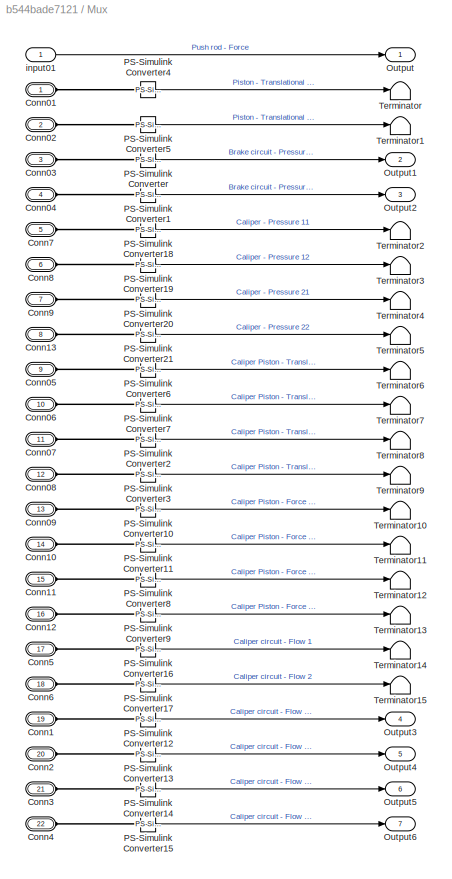
BLOCK [SubSystem] Mux
  Ports = [1, 7, 0, 0, 0, 22]
  RequestExecContextInheritance = off
  Tag = ModelFeatures
BLOCK [PMIOPort] Mux/Conn01
  Side = Left
BLOCK [PMIOPort] Mux/Conn02
  Port = 2
  Side = Left
BLOCK [PMIOPort] Mux/Conn03
  Port = 3
  Side = Left
BLOCK [PMIOPort] Mux/Conn04
  Port = 4
  Side = Left
BLOCK [PMIOPort] Mux/Conn05
  Port = 9
  Side = Left
BLOCK [PMIOPort] Mux/Conn06
  Port = 10
  Side = Left
BLOCK [PMIOPort] Mux/Conn07
  Port = 11
  Side = Left
BLOCK [PMIOPort] Mux/Conn08
  Port = 12
  Side = Left
BLOCK [PMIOPort] Mux/Conn09
  Port = 13
  Side = Left
BLOCK [PMIOPort] Mux/Conn1
  Port = 19
  Side = Left
BLOCK [PMIOPort] Mux/Conn10
  Port = 14
  Side = Left
BLOCK [PMIOPort] Mux/Conn11
  Port = 15
  Side = Left
BLOCK [PMIOPort] Mux/Conn12
  Port = 16
  Side = Left
BLOCK [PMIOPort] Mux/Conn13
  Port = 8
  Side = Left
BLOCK [PMIOPort] Mux/Conn2
  Port = 20
  Side = Left
BLOCK [PMIOPort] Mux/Conn3
  Port = 21
  Side = Left
BLOCK [PMIOPort] Mux/Conn4
  Port = 22
  Side = Left
BLOCK [PMIOPort] Mux/Conn5
  Port = 17
  Side = Left
BLOCK [PMIOPort] Mux/Conn6
  Port = 18
  Side = Left
BLOCK [PMIOPort] Mux/Conn7
  Port = 5
  Side = Left
BLOCK [PMIOPort] Mux/Conn8
  Port = 6
  Side = Left
BLOCK [PMIOPort] Mux/Conn9
  Port = 7
  Side = Left
BLOCK [Outport] Mux/Output
BLOCK [Outport] Mux/Output1
  Port = 2
BLOCK [Outport] Mux/Output2
  Port = 3
BLOCK [Outport] Mux/Output3
  Port = 4
BLOCK [Outport] Mux/Output4
  Port = 5
BLOCK [Outport] Mux/Output5
  Port = 6
BLOCK [Outport] Mux/Output6
  Port = 7
BLOCK [Reference] Mux/PS-Simulink Converter  REF=nesl_utility/PS-Simulink
Converter
  Ports = [0, 1, 0, 0, 0, 1]
  SourceBlock = nesl_utility/PS-Simulink\nConverter
  SourceProductBaseCode = PW,SS
  SourceType = PS-Simulink\nConverter
BLOCK [Reference] Mux/PS-Simulink Converter1  REF=nesl_utility/PS-Simulink
Converter
  Ports = [0, 1, 0, 0, 0, 1]
  SourceBlock = nesl_utility/PS-Simulink\nConverter
  SourceProductBaseCode = PW,SS
  SourceType = PS-Simulink\nConverter
BLOCK [Reference] Mux/PS-Simulink Converter10  REF=nesl_utility/PS-Simulink
Converter
  Ports = [0, 1, 0, 0, 0, 1]
  SourceBlock = nesl_utility/PS-Simulink\nConverter
  SourceProductBaseCode = PW,SS
  SourceType = PS-Simulink\nConverter
BLOCK [Reference] Mux/PS-Simulink Converter11  REF=nesl_utility/PS-Simulink
Converter
  Ports = [0, 1, 0, 0, 0, 1]
  SourceBlock = nesl_utility/PS-Simulink\nConverter
  SourceProductBaseCode = PW,SS
  SourceType = PS-Simulink\nConverter
BLOCK [Reference] Mux/PS-Simulink Converter12  REF=nesl_utility/PS-Simulink
Converter
  Ports = [0, 1, 0, 0, 0, 1]
  SourceBlock = nesl_utility/PS-Simulink\nConverter
  SourceProductBaseCode = PW,SS
  SourceType = PS-Simulink\nConverter
BLOCK [Reference] Mux/PS-Simulink Converter13  REF=nesl_utility/PS-Simulink
Converter
  Ports = [0, 1, 0, 0, 0, 1]
  SourceBlock = nesl_utility/PS-Simulink\nConverter
  SourceProductBaseCode = PW,SS
  SourceType = PS-Simulink\nConverter
BLOCK [Reference] Mux/PS-Simulink Converter14  REF=nesl_utility/PS-Simulink
Converter
  Ports = [0, 1, 0, 0, 0, 1]
  SourceBlock = nesl_utility/PS-Simulink\nConverter
  SourceProductBaseCode = PW,SS
  SourceType = PS-Simulink\nConverter
BLOCK [Reference] Mux/PS-Simulink Converter15  REF=nesl_utility/PS-Simulink
Converter
  Ports = [0, 1, 0, 0, 0, 1]
  SourceBlock = nesl_utility/PS-Simulink\nConverter
  SourceProductBaseCode = PW,SS
  SourceType = PS-Simulink\nConverter
BLOCK [Reference] Mux/PS-Simulink Converter16  REF=nesl_utility/PS-Simulink
Converter
  Ports = [0, 1, 0, 0, 0, 1]
  SourceBlock = nesl_utility/PS-Simulink\nConverter
  SourceProductBaseCode = PW,SS
  SourceType = PS-Simulink\nConverter
BLOCK [Reference] Mux/PS-Simulink Converter17  REF=nesl_utility/PS-Simulink
Converter
  Ports = [0, 1, 0, 0, 0, 1]
  SourceBlock = nesl_utility/PS-Simulink\nConverter
  SourceProductBaseCode = PW,SS
  SourceType = PS-Simulink\nConverter
BLOCK [Reference] Mux/PS-Simulink Converter18  REF=nesl_utility/PS-Simulink
Converter
  Ports = [0, 1, 0, 0, 0, 1]
  SourceBlock = nesl_utility/PS-Simulink\nConverter
  SourceProductBaseCode = PW,SS
  SourceType = PS-Simulink\nConverter
BLOCK [Reference] Mux/PS-Simulink Converter19  REF=nesl_utility/PS-Simulink
Converter
  Ports = [0, 1, 0, 0, 0, 1]
  SourceBlock = nesl_utility/PS-Simulink\nConverter
  SourceProductBaseCode = PW,SS
  SourceType = PS-Simulink\nConverter
BLOCK [Reference] Mux/PS-Simulink Converter2  REF=nesl_utility/PS-Simulink
Converter
  Ports = [0, 1, 0, 0, 0, 1]
  SourceBlock = nesl_utility/PS-Simulink\nConverter
  SourceProductBaseCode = PW,SS
  SourceType = PS-Simulink\nConverter
BLOCK [Reference] Mux/PS-Simulink Converter20  REF=nesl_utility/PS-Simulink
Converter
  Ports = [0, 1, 0, 0, 0, 1]
  SourceBlock = nesl_utility/PS-Simulink\nConverter
  SourceProductBaseCode = PW,SS
  SourceType = PS-Simulink\nConverter
BLOCK [Reference] Mux/PS-Simulink Converter21  REF=nesl_utility/PS-Simulink
Converter
  Ports = [0, 1, 0, 0, 0, 1]
  SourceBlock = nesl_utility/PS-Simulink\nConverter
  SourceProductBaseCode = PW,SS
  SourceType = PS-Simulink\nConverter
BLOCK [Reference] Mux/PS-Simulink Converter3  REF=nesl_utility/PS-Simulink
Converter
  Ports = [0, 1, 0, 0, 0, 1]
  SourceBlock = nesl_utility/PS-Simulink\nConverter
  SourceProductBaseCode = PW,SS
  SourceType = PS-Simulink\nConverter
BLOCK [Reference] Mux/PS-Simulink Converter4  REF=nesl_utility/PS-Simulink
Converter
  Ports = [0, 1, 0, 0, 0, 1]
  SourceBlock = nesl_utility/PS-Simulink\nConverter
  SourceProductBaseCode = PW,SS
  SourceType = PS-Simulink\nConverter
BLOCK [Reference] Mux/PS-Simulink Converter5  REF=nesl_utility/PS-Simulink
Converter
  Ports = [0, 1, 0, 0, 0, 1]
  SourceBlock = nesl_utility/PS-Simulink\nConverter
  SourceProductBaseCode = PW,SS
  SourceType = PS-Simulink\nConverter
BLOCK [Reference] Mux/PS-Simulink Converter6  REF=nesl_utility/PS-Simulink
Converter
  Ports = [0, 1, 0, 0, 0, 1]
  SourceBlock = nesl_utility/PS-Simulink\nConverter
  SourceProductBaseCode = PW,SS
  SourceType = PS-Simulink\nConverter
BLOCK [Reference] Mux/PS-Simulink Converter7  REF=nesl_utility/PS-Simulink
Converter
  Ports = [0, 1, 0, 0, 0, 1]
  SourceBlock = nesl_utility/PS-Simulink\nConverter
  SourceProductBaseCode = PW,SS
  SourceType = PS-Simulink\nConverter
BLOCK [Reference] Mux/PS-Simulink Converter8  REF=nesl_utility/PS-Simulink
Converter
  Ports = [0, 1, 0, 0, 0, 1]
  SourceBlock = nesl_utility/PS-Simulink\nConverter
  SourceProductBaseCode = PW,SS
  SourceType = PS-Simulink\nConverter
BLOCK [Reference] Mux/PS-Simulink Converter9  REF=nesl_utility/PS-Simulink
Converter
  Ports = [0, 1, 0, 0, 0, 1]
  SourceBlock = nesl_utility/PS-Simulink\nConverter
  SourceProductBaseCode = PW,SS
  SourceType = PS-Simulink\nConverter
BLOCK [Terminator] Mux/Terminator
BLOCK [Terminator] Mux/Terminator1
BLOCK [Terminator] Mux/Terminator10
BLOCK [Terminator] Mux/Terminator11
BLOCK [Terminator] Mux/Terminator12
BLOCK [Terminator] Mux/Terminator13
BLOCK [Terminator] Mux/Terminator14
BLOCK [Terminator] Mux/Terminator15
BLOCK [Terminator] Mux/Terminator2
BLOCK [Terminator] Mux/Terminator3
BLOCK [Terminator] Mux/Terminator4
BLOCK [Terminator] Mux/Terminator5
BLOCK [Terminator] Mux/Terminator6
BLOCK [Terminator] Mux/Terminator7
BLOCK [Terminator] Mux/Terminator8
BLOCK [Terminator] Mux/Terminator9
BLOCK [Inport] Mux/input01
BLOCK [SubSystem] Push Rod Force Generator
  Ports = [0, 1]
  RequestExecContextInheritance = off
BLOCK [Clock] Push Rod Force Generator/Clock
BLOCK [Constant] Push Rod Force Generator/Constant
  Value = 10e3
BLOCK [SubSystem] Push Rod Force Generator/Force Generation
  ErrorFcn = Stateflow.Translate.translate
  PermitHierarchicalResolution = ExplicitOnly
  Ports = [2, 2]
  RequestExecContextInheritance = off
  SFBlockType = MATLAB Function
  TreatAsAtomicUnit = on
BLOCK [Demux] Push Rod Force Generator/Force Generation/ Demux 
  Outputs = 1
  Ports = [1, 1]
BLOCK [S-Function] Push Rod Force Generator/Force Generation/ SFunction 
  EnableBusSupport = on
  FunctionName = sf_sfun
  PortCounts = [2 3]
  Ports = [2, 3]
  SFcnIsStateOwnerBlock = off
  SFunctionDeploymentMode = off
  Tag = Stateflow S-Function 8
BLOCK [Terminator] Push Rod Force Generator/Force Generation/ Terminator 
BLOCK [Inport] Push Rod Force Generator/Force Generation/clock
BLOCK [Inport] Push Rod Force Generator/Force Generation/rate
  Port = 2
BLOCK [Outport] Push Rod Force Generator/Force Generation/signal
  Port = 2
BLOCK [Outport] Push Rod Force Generator/Force Generation/stop
BLOCK [Outport] Push Rod Force Generator/Output1
BLOCK [Saturate] Push Rod Force Generator/Saturation
  LowerLimit = 0
  UpperLimit = tpc.pushRodF(3)
BLOCK [Stop] Push Rod Force Generator/Stop Simulation
BLOCK [SubSystem] Scopes
  Ports = [9]
  RequestExecContextInheritance = off
BLOCK [BusCreator] Scopes/Bus Creator
  DisplayOption = bar
  InheritFromInputs = on
  Inputs = 9
  Ports = [9, 1]
BLOCK [From] Scopes/From11
  GotoTag = Q21
BLOCK [From] Scopes/From12
  GotoTag = Q22
BLOCK [From] Scopes/From13
  GotoTag = S1
BLOCK [From] Scopes/From14
  GotoTag = S2
BLOCK [From] Scopes/From15
  GotoTag = P1
BLOCK [From] Scopes/From16
  GotoTag = P2
BLOCK [From] Scopes/From19
  GotoTag = Q21
BLOCK [From] Scopes/From2
  GotoTag = F
BLOCK [From] Scopes/From20
  GotoTag = Q22
BLOCK [From] Scopes/From21
  GotoTag = Q11
BLOCK [From] Scopes/From22
  GotoTag = Q12
BLOCK [From] Scopes/From3
  GotoTag = P1
BLOCK [From] Scopes/From4
  GotoTag = P2
BLOCK [From] Scopes/From5
  GotoTag = Q11
BLOCK [From] Scopes/From6
  GotoTag = Q12
BLOCK [Goto] Scopes/Goto
  GotoTag = F
BLOCK [Goto] Scopes/Goto1
  GotoTag = P1
BLOCK [Goto] Scopes/Goto2
  GotoTag = P2
BLOCK [Goto] Scopes/Goto3
  GotoTag = Q11
BLOCK [Goto] Scopes/Goto4
  GotoTag = Q12
BLOCK [Goto] Scopes/Goto5
  GotoTag = Q21
BLOCK [Goto] Scopes/Goto6
  GotoTag = Q22
BLOCK [Goto] Scopes/Goto7
  GotoTag = S1
BLOCK [Goto] Scopes/Goto8
  GotoTag = S2
BLOCK [Inport] Scopes/In1
BLOCK [Inport] Scopes/In2
  Port = 2
BLOCK [Inport] Scopes/In3
  Port = 3
BLOCK [Inport] Scopes/In4
  Port = 4
BLOCK [Inport] Scopes/In5
  Port = 5
BLOCK [Inport] Scopes/In6
  Port = 6
BLOCK [Inport] Scopes/In7
  Port = 7
BLOCK [Inport] Scopes/In8
  Port = 8
BLOCK [Inport] Scopes/In9
  Port = 9
BLOCK [Mux] Scopes/Mux1
  DisplayOption = bar
  Inputs = 2
  Ports = [2, 1]
BLOCK [Mux] Scopes/Mux2
  DisplayOption = bar
  Ports = [4, 1]
BLOCK [Scope] Scopes/Pressures
  Floating = off
  NumInputPorts = 1
  Ports = [1]
  ScopeSpecificationString = Simulink.scopes.TimeScopeBlockCfg('CurrentConfiguration', extmgr.ConfigurationSet(extmgr.Configuration('Core','General UI',true),extmgr.Configuration('Core','Source UI',true),extmgr.Configuration('Sources','WiredSimulink',true,'DataLoggingVariableName','ScopeData1'),extmgr.Configuration('Visuals','Time Domain',true,'SerializedDisplays',{struct('MinYLimReal','-549271.51967','MaxYLimReal','4943443.6...<+1437ch>
BLOCK [Terminator] Scopes/Terminator
BLOCK [Scope] Scopes/Volumetric flows
  Floating = off
  NumInputPorts = 1
  Ports = [1]
  ScopeSpecificationString = Simulink.scopes.TimeScopeBlockCfg('CurrentConfiguration', extmgr.ConfigurationSet(extmgr.Configuration('Core','General UI',true),extmgr.Configuration('Core','Source UI',true),extmgr.Configuration('Sources','WiredSimulink',true,'DataLoggingVariableName','ScopeData2'),extmgr.Configuration('Visuals','Time Domain',true,'SerializedDisplays',{struct('MinYLimReal','-0.00002','MaxYLimReal','0.00009','YLab...<+1413ch>
BLOCK [Reference] Solver Configuration  REF=nesl_utility/Solver
Configuration
  Ports = [0, 0, 0, 0, 0, 0, 1]
  SourceBlock = nesl_utility/Solver\nConfiguration
  SourceProductBaseCode = PW,SS
  SourceType = Solver\nConfiguration
  Tag = ModelFeatures
BLOCK [SubSystem] Tandem Master Cylinder
  Ports = [1, 1, 0, 0, 0, 0, 4]
  RequestExecContextInheritance = off
BLOCK [PMIOPort] Tandem Master Cylinder/Brake Circuit 1
  NameLocation = right
  Port = 3
  Side = Right
BLOCK [PMIOPort] Tandem Master Cylinder/Brake Circuit 2
  NameLocation = right
  Port = 4
  Side = Right
BLOCK [Reference] Tandem Master Cylinder/C1  REF=fl_lib/Mechanical/Translational
Elements/Translational Damper
  Ports = [0, 0, 0, 0, 0, 1, 1]
  SourceBlock = fl_lib/Mechanical/Translational\nElements/Translational Damper
  SourceProductBaseCode = SS
  SourceType = Translational Damper
BLOCK [Reference] Tandem Master Cylinder/C2  REF=fl_lib/Mechanical/Translational
Elements/Translational Damper
  Ports = [0, 0, 0, 0, 0, 1, 1]
  SourceBlock = fl_lib/Mechanical/Translational\nElements/Translational Damper
  SourceProductBaseCode = SS
  SourceType = Translational Damper
BLOCK [Reference] Tandem Master Cylinder/Compensating port 1  REF=fl_lib/Isothermal Liquid/Elements/Local Restriction
(IL)
  NameLocation = top
  Ports = [0, 0, 0, 0, 0, 2, 1]
  SourceBlock = fl_lib/Isothermal Liquid/Elements/Local Restriction\n(IL)
  SourceProductBaseCode = SS
  SourceType = Local Restriction\n(IL)
BLOCK [Reference] Tandem Master Cylinder/Compensating port 2  REF=fl_lib/Isothermal Liquid/Elements/Local Restriction
(IL)
  NameLocation = top
  Ports = [0, 0, 0, 0, 0, 2, 1]
  SourceBlock = fl_lib/Isothermal Liquid/Elements/Local Restriction\n(IL)
  SourceProductBaseCode = SS
  SourceType = Local Restriction\n(IL)
BLOCK [Display] Tandem Master Cylinder/Display
  Decimation = 1
  Ports = [1]
BLOCK [Display] Tandem Master Cylinder/Display1
  Decimation = 1
  Ports = [1]
BLOCK [Inport] Tandem Master Cylinder/F
BLOCK [Outport] Tandem Master Cylinder/FPR
BLOCK [Reference] Tandem Master Cylinder/Fixed Orifice1  REF=fl_lib/Isothermal Liquid/Elements/Local Restriction
(IL)
  NameLocation = right
  Ports = [0, 0, 0, 0, 0, 1, 1]
  SourceBlock = fl_lib/Isothermal Liquid/Elements/Local Restriction\n(IL)
  SourceProductBaseCode = SS
  SourceType = Local Restriction\n(IL)
BLOCK [Reference] Tandem Master Cylinder/Fixed Orifice2  REF=fl_lib/Isothermal Liquid/Elements/Local Restriction
(IL)
  NameLocation = right
  Ports = [0, 0, 0, 0, 0, 1, 1]
  SourceBlock = fl_lib/Isothermal Liquid/Elements/Local Restriction\n(IL)
  SourceProductBaseCode = SS
  SourceType = Local Restriction\n(IL)
BLOCK [Reference] Tandem Master Cylinder/HD1  REF=fl_lib/Mechanical/Translational
Elements/Translational Hard
Stop
  Ports = [0, 0, 0, 0, 0, 1, 1]
  SourceBlock = fl_lib/Mechanical/Translational\nElements/Translational Hard\nStop
  SourceProductBaseCode = SS
  SourceType = Translational Hard\nStop
BLOCK [Reference] Tandem Master Cylinder/HD2  REF=fl_lib/Mechanical/Translational
Elements/Translational Hard
Stop
  Ports = [0, 0, 0, 0, 0, 1, 1]
  SourceBlock = fl_lib/Mechanical/Translational\nElements/Translational Hard\nStop
  SourceProductBaseCode = SS
  SourceType = Translational Hard\nStop
BLOCK [Reference] Tandem Master Cylinder/Ideal Force Source  REF=fl_lib/Mechanical/Mechanical Sources/Ideal Force Source
  Ports = [0, 0, 0, 0, 0, 1, 2]
  SourceBlock = fl_lib/Mechanical/Mechanical Sources/Ideal Force Source
  SourceProductBaseCode = SS
  SourceType = Ideal Force Source
BLOCK [Reference] Tandem Master Cylinder/K1  REF=fl_lib/Mechanical/Translational
Elements/Translational Spring
  Ports = [0, 0, 0, 0, 0, 1, 1]
  SourceBlock = fl_lib/Mechanical/Translational\nElements/Translational Spring
  SourceProductBaseCode = SS
  SourceType = Translational Spring
BLOCK [Reference] Tandem Master Cylinder/K2  REF=fl_lib/Mechanical/Translational
Elements/Translational Spring
  Ports = [0, 0, 0, 0, 0, 1, 1]
  SourceBlock = fl_lib/Mechanical/Translational\nElements/Translational Spring
  SourceProductBaseCode = SS
  SourceType = Translational Spring
BLOCK [Reference] Tandem Master Cylinder/Mechanical Translational Reference1  REF=fl_lib/Mechanical/Translational
Elements/Mechanical
Translational
Reference
  NameLocation = right
  Ports = [0, 0, 0, 0, 0, 1]
  SourceBlock = fl_lib/Mechanical/Translational\nElements/Mechanical\nTranslational\nReference
  SourceProductBaseCode = SS
  SourceType = Mechanical\nTranslational\nReference
BLOCK [SubSystem] Tandem Master Cylinder/Motion Sensor 1
  Ports = [0, 0, 0, 0, 0, 1, 2]
  RequestExecContextInheritance = off
BLOCK [PMIOPort] Tandem Master Cylinder/Motion Sensor 1/C
  Side = Right
BLOCK [Reference] Tandem Master Cylinder/Motion Sensor 1/Ideal Translational Motion Sensor  REF=fl_lib/Mechanical/Mechanical Sensors/Ideal Translational
Motion Sensor
  Ports = [0, 0, 0, 0, 0, 1, 3]
  SourceBlock = fl_lib/Mechanical/Mechanical Sensors/Ideal Translational\nMotion Sensor
  SourceProductBaseCode = SS
  SourceType = Ideal Translational\nMotion Sensor
BLOCK [PMIOPort] Tandem Master Cylinder/Motion Sensor 1/P
  Port = 2
  Side = Right
BLOCK [Reference] Tandem Master Cylinder/Motion Sensor 1/PS Terminator1  REF=fl_lib/Physical Signals/Sinks/PS Terminator
  Ports = [0, 0, 0, 0, 0, 1]
  SourceBlock = fl_lib/Physical Signals/Sinks/PS Terminator
  SourceProductBaseCode = SS
  SourceType = PS Terminator
BLOCK [PMIOPort] Tandem Master Cylinder/Motion Sensor 1/R
  Port = 3
  Side = Left
BLOCK [SubSystem] Tandem Master Cylinder/Motion Sensor 2
  Ports = [0, 0, 0, 0, 0, 1, 2]
  RequestExecContextInheritance = off
BLOCK [PMIOPort] Tandem Master Cylinder/Motion Sensor 2/C
  Port = 2
  Side = Right
BLOCK [Reference] Tandem Master Cylinder/Motion Sensor 2/Ideal Translational Motion Sensor  REF=fl_lib/Mechanical/Mechanical Sensors/Ideal Translational
Motion Sensor
  NameLocation = top
  Ports = [0, 0, 0, 0, 0, 1, 3]
  SourceBlock = fl_lib/Mechanical/Mechanical Sensors/Ideal Translational\nMotion Sensor
  SourceProductBaseCode = SS
  SourceType = Ideal Translational\nMotion Sensor
BLOCK [PMIOPort] Tandem Master Cylinder/Motion Sensor 2/P
  Side = Right
BLOCK [Reference] Tandem Master Cylinder/Motion Sensor 2/PS Terminator  REF=fl_lib/Physical Signals/Sinks/PS Terminator
  Ports = [0, 0, 0, 0, 0, 1]
  SourceBlock = fl_lib/Physical Signals/Sinks/PS Terminator
  SourceProductBaseCode = SS
  SourceType = PS Terminator
BLOCK [PMIOPort] Tandem Master Cylinder/Motion Sensor 2/R
  Port = 3
  Side = Left
BLOCK [Mux] Tandem Master Cylinder/Mux
  DisplayOption = bar
  Inputs = 2
  Ports = [2, 1]
BLOCK [Mux] Tandem Master Cylinder/Mux1
  DisplayOption = bar
  Inputs = 2
  Ports = [2, 1]
BLOCK [Reference] Tandem Master Cylinder/PS Lookup Table (1D)  REF=fl_lib/Physical Signals/Lookup Tables/PS Lookup Table (1D)
  Ports = [0, 0, 0, 0, 0, 1, 1]
  SourceBlock = fl_lib/Physical Signals/Lookup Tables/PS Lookup Table (1D)
  SourceProductBaseCode = SS
  SourceType = PS Lookup Table (1D)
BLOCK [Reference] Tandem Master Cylinder/PS Lookup Table (1D)1  REF=fl_lib/Physical Signals/Lookup Tables/PS Lookup Table (1D)
  Ports = [0, 0, 0, 0, 0, 1, 1]
  SourceBlock = fl_lib/Physical Signals/Lookup Tables/PS Lookup Table (1D)
  SourceProductBaseCode = SS
  SourceType = PS Lookup Table (1D)
BLOCK [Reference] Tandem Master Cylinder/PS-Simulink Converter  REF=nesl_utility/PS-Simulink
Converter
  Ports = [0, 1, 0, 0, 0, 1]
  SourceBlock = nesl_utility/PS-Simulink\nConverter
  SourceProductBaseCode = PW,SS
  SourceType = PS-Simulink\nConverter
BLOCK [Reference] Tandem Master Cylinder/PS-Simulink Converter1  REF=nesl_utility/PS-Simulink
Converter
  Ports = [0, 1, 0, 0, 0, 1]
  SourceBlock = nesl_utility/PS-Simulink\nConverter
  SourceProductBaseCode = PW,SS
  SourceType = PS-Simulink\nConverter
BLOCK [Reference] Tandem Master Cylinder/PS-Simulink Converter2  REF=nesl_utility/PS-Simulink
Converter
  Ports = [0, 1, 0, 0, 0, 1]
  SourceBlock = nesl_utility/PS-Simulink\nConverter
  SourceProductBaseCode = PW,SS
  SourceType = PS-Simulink\nConverter
BLOCK [Reference] Tandem Master Cylinder/PS-Simulink Converter3  REF=nesl_utility/PS-Simulink
Converter
  Ports = [0, 1, 0, 0, 0, 1]
  SourceBlock = nesl_utility/PS-Simulink\nConverter
  SourceProductBaseCode = PW,SS
  SourceType = PS-Simulink\nConverter
BLOCK [PMIOPort] Tandem Master Cylinder/Piston - Translational Motion 1
  Side = Right
BLOCK [Reference] Tandem Master Cylinder/Piston 1 Mass  REF=fl_lib/Mechanical/Translational
Elements/Mass
  Ports = [0, 0, 0, 0, 0, 1]
  SourceBlock = fl_lib/Mechanical/Translational\nElements/Mass
  SourceProductBaseCode = SS
  SourceType = Mass
BLOCK [Reference] Tandem Master Cylinder/Piston 2 Mass  REF=fl_lib/Mechanical/Translational
Elements/Mass
  NameLocation = left
  Ports = [0, 0, 0, 0, 0, 1]
  SourceBlock = fl_lib/Mechanical/Translational\nElements/Mass
  SourceProductBaseCode = SS
  SourceType = Mass
BLOCK [PMIOPort] Tandem Master Cylinder/Piston Translational Motion 2
  Port = 2
  Side = Right
BLOCK [Reference] Tandem Master Cylinder/R1//V1  REF=fl_lib/Isothermal Liquid/Elements/Reservoir (IL)
  NameLocation = right
  Ports = [0, 0, 0, 0, 0, 1]
  SourceBlock = fl_lib/Isothermal Liquid/Elements/Reservoir (IL)
  SourceProductBaseCode = SS
  SourceType = Reservoir (IL)
BLOCK [Reference] Tandem Master Cylinder/R2//V3  REF=fl_lib/Isothermal Liquid/Elements/Reservoir (IL)
  NameLocation = top
  Ports = [0, 0, 0, 0, 0, 1]
  SourceBlock = fl_lib/Isothermal Liquid/Elements/Reservoir (IL)
  SourceProductBaseCode = SS
  SourceType = Reservoir (IL)
BLOCK [Reference] Tandem Master Cylinder/Simulink-PS Converter  REF=nesl_utility/Simulink-PS
Converter
  Ports = [1, 0, 0, 0, 0, 0, 1]
  SourceBlock = nesl_utility/Simulink-PS\nConverter
  SourceProductBaseCode = PW,SS
  SourceType = Simulink-PS\nConverter
BLOCK [Reference] Tandem Master Cylinder/Translational Hydro-Mechanical Converter1  REF=fl_lib/Isothermal Liquid/Elements/Translational
Mechanical Converter
(IL)
  Ports = [0, 0, 0, 0, 0, 2, 1]
  SourceBlock = fl_lib/Isothermal Liquid/Elements/Translational\nMechanical Converter\n(IL)
  SourceProductBaseCode = SS
  SourceType = Translational\nMechanical Converter\n(IL)
BLOCK [Reference] Tandem Master Cylinder/Translational Hydro-Mechanical Converter2  REF=fl_lib/Isothermal Liquid/Elements/Translational
Mechanical Converter
(IL)
  Ports = [0, 0, 0, 0, 0, 2, 1]
  SourceBlock = fl_lib/Isothermal Liquid/Elements/Translational\nMechanical Converter\n(IL)
  SourceProductBaseCode = SS
  SourceType = Translational\nMechanical Converter\n(IL)
ANNOTATION Fixed-Caliper Disc Brakes: Simulated faults 1x
ANNOTATION Fixed-Caliper Disc Brakes: Simulated faults 2x
ANNOTATION Fixed-Caliper Disc Brakes/Wheels in the Primary Hidraulic Circuit: Front left wheel
ANNOTATION Fixed-Caliper Disc Brakes/Wheels in the Primary Hidraulic Circuit: Front right wheel
ANNOTATION Fixed-Caliper Disc Brakes/Wheels in the Secondary Hidraulic Circuit: Rear left wheel
ANNOTATION Fixed-Caliper Disc Brakes/Wheels in the Secondary Hidraulic Circuit: Rear right wheel
ANNOTATION Tandem Master Cylinder: Fixed Orifice2
LINE Fixed-Caliper Disc Brakes/F:1 -> Fixed-Caliper Disc Brakes/Fo:1
LINE Fixed-Caliper Disc Brakes/Wheels in the Primary Hidraulic Circuit/FLW/Mux:1 -> Fixed-Caliper Disc Brakes/Wheels in the Primary Hidraulic Circuit/FLW/Display:1
LINE Fixed-Caliper Disc Brakes/Wheels in the Primary Hidraulic Circuit/FLW/PS-Simulink Converter1:1 -> Fixed-Caliper Disc Brakes/Wheels in the Primary Hidraulic Circuit/FLW/Mux:2
LINE Fixed-Caliper Disc Brakes/Wheels in the Primary Hidraulic Circuit/FLW/PS-Simulink Converter2:1 -> Fixed-Caliper Disc Brakes/Wheels in the Primary Hidraulic Circuit/FLW/Display1:1
LINE Fixed-Caliper Disc Brakes/Wheels in the Primary Hidraulic Circuit/FLW/PS-Simulink Converter3:1 -> Fixed-Caliper Disc Brakes/Wheels in the Primary Hidraulic Circuit/FLW/Display2:1
LINE Fixed-Caliper Disc Brakes/Wheels in the Primary Hidraulic Circuit/FLW/PS-Simulink Converter:1 -> Fixed-Caliper Disc Brakes/Wheels in the Primary Hidraulic Circuit/FLW/Mux:1
LINE Fixed-Caliper Disc Brakes/Wheels in the Primary Hidraulic Circuit/FRW/Mux:1 -> Fixed-Caliper Disc Brakes/Wheels in the Primary Hidraulic Circuit/FRW/Display:1
LINE Fixed-Caliper Disc Brakes/Wheels in the Primary Hidraulic Circuit/FRW/PS-Simulink Converter1:1 -> Fixed-Caliper Disc Brakes/Wheels in the Primary Hidraulic Circuit/FRW/Mux:2
LINE Fixed-Caliper Disc Brakes/Wheels in the Primary Hidraulic Circuit/FRW/PS-Simulink Converter2:1 -> Fixed-Caliper Disc Brakes/Wheels in the Primary Hidraulic Circuit/FRW/Display1:1
LINE Fixed-Caliper Disc Brakes/Wheels in the Primary Hidraulic Circuit/FRW/PS-Simulink Converter3:1 -> Fixed-Caliper Disc Brakes/Wheels in the Primary Hidraulic Circuit/FRW/Display2:1
LINE Fixed-Caliper Disc Brakes/Wheels in the Primary Hidraulic Circuit/FRW/PS-Simulink Converter4:1 -> Fixed-Caliper Disc Brakes/Wheels in the Primary Hidraulic Circuit/FRW/Scope:1
LINE Fixed-Caliper Disc Brakes/Wheels in the Primary Hidraulic Circuit/FRW/PS-Simulink Converter:1 -> Fixed-Caliper Disc Brakes/Wheels in the Primary Hidraulic Circuit/FRW/Mux:1
LINE Fixed-Caliper Disc Brakes/Wheels in the Secondary Hidraulic Circuit/RLW/Mux:1 -> Fixed-Caliper Disc Brakes/Wheels in the Secondary Hidraulic Circuit/RLW/Display:1
LINE Fixed-Caliper Disc Brakes/Wheels in the Secondary Hidraulic Circuit/RLW/PS-Simulink Converter1:1 -> Fixed-Caliper Disc Brakes/Wheels in the Secondary Hidraulic Circuit/RLW/Mux:2
LINE Fixed-Caliper Disc Brakes/Wheels in the Secondary Hidraulic Circuit/RLW/PS-Simulink Converter2:1 -> Fixed-Caliper Disc Brakes/Wheels in the Secondary Hidraulic Circuit/RLW/Display1:1
LINE Fixed-Caliper Disc Brakes/Wheels in the Secondary Hidraulic Circuit/RLW/PS-Simulink Converter3:1 -> Fixed-Caliper Disc Brakes/Wheels in the Secondary Hidraulic Circuit/RLW/Display2:1
LINE Fixed-Caliper Disc Brakes/Wheels in the Secondary Hidraulic Circuit/RLW/PS-Simulink Converter:1 -> Fixed-Caliper Disc Brakes/Wheels in the Secondary Hidraulic Circuit/RLW/Mux:1
LINE Fixed-Caliper Disc Brakes/Wheels in the Secondary Hidraulic Circuit/RRW/Mux:1 -> Fixed-Caliper Disc Brakes/Wheels in the Secondary Hidraulic Circuit/RRW/Display:1
LINE Fixed-Caliper Disc Brakes/Wheels in the Secondary Hidraulic Circuit/RRW/PS-Simulink Converter1:1 -> Fixed-Caliper Disc Brakes/Wheels in the Secondary Hidraulic Circuit/RRW/Mux:2
LINE Fixed-Caliper Disc Brakes/Wheels in the Secondary Hidraulic Circuit/RRW/PS-Simulink Converter2:1 -> Fixed-Caliper Disc Brakes/Wheels in the Secondary Hidraulic Circuit/RRW/Display1:1
LINE Fixed-Caliper Disc Brakes/Wheels in the Secondary Hidraulic Circuit/RRW/PS-Simulink Converter3:1 -> Fixed-Caliper Disc Brakes/Wheels in the Secondary Hidraulic Circuit/RRW/Display2:1
LINE Fixed-Caliper Disc Brakes/Wheels in the Secondary Hidraulic Circuit/RRW/PS-Simulink Converter:1 -> Fixed-Caliper Disc Brakes/Wheels in the Secondary Hidraulic Circuit/RRW/Mux:1
LINE Fixed-Caliper Disc Brakes:1 -> Mux:1
LINE From10:1 -> Hydraulic System 2:4
LINE From11:1 -> Scopes:6
LINE From12:1 -> Scopes:7
LINE From13:1 -> Scopes:8
LINE From14:1 -> Scopes:9
LINE From17:1 -> Hydraulic System 1:2
LINE From18:1 -> Hydraulic System 2:2
LINE From1:1 -> Hydraulic System 2:1
LINE From2:1 -> Scopes:1
LINE From3:1 -> Scopes:2
LINE From4:1 -> Scopes:3
LINE From5:1 -> Scopes:4
LINE From6:1 -> Scopes:5
LINE From7:1 -> Hydraulic System 2:3
LINE From8:1 -> Hydraulic System 1:3
LINE From9:1 -> Hydraulic System 1:4
LINE From:1 -> Hydraulic System 1:1
LINE Hydraulic System 1/Derivative:1 -> Hydraulic System 1/mpo1:2
NET Hydraulic System 1/F:1 -> Hydraulic System 1/Derivative:1, Hydraulic System 1/mpo1:1
LINE Hydraulic System 1/P:1 -> Hydraulic System 1/mpo1:3
LINE Hydraulic System 1/Q1:1 -> Hydraulic System 1/mpo1:4
LINE Hydraulic System 1/Q2:1 -> Hydraulic System 1/mpo1:5
LINE Hydraulic System 1/mpo1:1 -> Hydraulic System 1/S1:1
LINE Hydraulic System 1:1 -> Goto7:1
LINE Hydraulic System 2/Derivative:1 -> Hydraulic System 2/mpo2:2
NET Hydraulic System 2/F:1 -> Hydraulic System 2/Derivative:1, Hydraulic System 2/mpo2:1
LINE Hydraulic System 2/P:1 -> Hydraulic System 2/mpo2:3
LINE Hydraulic System 2/Q1:1 -> Hydraulic System 2/mpo2:4
LINE Hydraulic System 2/Q2:1 -> Hydraulic System 2/mpo2:5
LINE Hydraulic System 2/mpo2:1 -> Hydraulic System 2/S2:1
LINE Hydraulic System 2:1 -> Goto8:1
LINE Mux/PS-Simulink Converter10:1 -> Mux/Terminator10:1
LINE Mux/PS-Simulink Converter11:1 -> Mux/Terminator11:1
LINE Mux/PS-Simulink Converter12:1 -> Mux/Output3:1
LINE Mux/PS-Simulink Converter13:1 -> Mux/Output4:1
LINE Mux/PS-Simulink Converter14:1 -> Mux/Output5:1
LINE Mux/PS-Simulink Converter15:1 -> Mux/Output6:1
LINE Mux/PS-Simulink Converter16:1 -> Mux/Terminator14:1
LINE Mux/PS-Simulink Converter17:1 -> Mux/Terminator15:1
LINE Mux/PS-Simulink Converter18:1 -> Mux/Terminator2:1
LINE Mux/PS-Simulink Converter19:1 -> Mux/Terminator3:1
LINE Mux/PS-Simulink Converter1:1 -> Mux/Output2:1
LINE Mux/PS-Simulink Converter20:1 -> Mux/Terminator4:1
LINE Mux/PS-Simulink Converter21:1 -> Mux/Terminator5:1
LINE Mux/PS-Simulink Converter2:1 -> Mux/Terminator8:1
LINE Mux/PS-Simulink Converter3:1 -> Mux/Terminator9:1
LINE Mux/PS-Simulink Converter4:1 -> Mux/Terminator:1
LINE Mux/PS-Simulink Converter5:1 -> Mux/Terminator1:1
LINE Mux/PS-Simulink Converter6:1 -> Mux/Terminator6:1
LINE Mux/PS-Simulink Converter7:1 -> Mux/Terminator7:1
LINE Mux/PS-Simulink Converter8:1 -> Mux/Terminator12:1
LINE Mux/PS-Simulink Converter9:1 -> Mux/Terminator13:1
LINE Mux/PS-Simulink Converter:1 -> Mux/Output1:1
LINE Mux/input01:1 -> Mux/Output:1
LINE Mux:1 -> Goto:1
LINE Mux:2 -> Goto1:1
LINE Mux:3 -> Goto2:1
LINE Mux:4 -> Goto3:1
LINE Mux:5 -> Goto4:1
LINE Mux:6 -> Goto5:1
LINE Mux:7 -> Goto6:1
LINE Push Rod Force Generator/Clock:1 -> Push Rod Force Generator/Force Generation:1
LINE Push Rod Force Generator/Constant:1 -> Push Rod Force Generator/Force Generation:2
LINE Push Rod Force Generator/Force Generation:1 -> Push Rod Force Generator/Stop Simulation:1
LINE Push Rod Force Generator/Force Generation:2 -> Push Rod Force Generator/Saturation:1
LINE Push Rod Force Generator/Saturation:1 -> Push Rod Force Generator/Output1:1
LINE Push Rod Force Generator:1 -> Tandem Master Cylinder:1
LINE Scopes/Bus Creator:1 -> Scopes/Terminator:1
LINE Scopes/From11:1 -> Scopes/Bus Creator:6
LINE Scopes/From12:1 -> Scopes/Bus Creator:7
LINE Scopes/From13:1 -> Scopes/Bus Creator:8
LINE Scopes/From14:1 -> Scopes/Bus Creator:9
LINE Scopes/From15:1 -> Scopes/Mux1:1
LINE Scopes/From16:1 -> Scopes/Mux1:2
LINE Scopes/From19:1 -> Scopes/Mux2:3
LINE Scopes/From20:1 -> Scopes/Mux2:4
LINE Scopes/From21:1 -> Scopes/Mux2:1
LINE Scopes/From22:1 -> Scopes/Mux2:2
LINE Scopes/From2:1 -> Scopes/Bus Creator:1
LINE Scopes/From3:1 -> Scopes/Bus Creator:2
LINE Scopes/From4:1 -> Scopes/Bus Creator:3
LINE Scopes/From5:1 -> Scopes/Bus Creator:4
LINE Scopes/From6:1 -> Scopes/Bus Creator:5
LINE Scopes/In1:1 -> Scopes/Goto:1
LINE Scopes/In2:1 -> Scopes/Goto1:1
LINE Scopes/In3:1 -> Scopes/Goto2:1
LINE Scopes/In4:1 -> Scopes/Goto3:1
LINE Scopes/In5:1 -> Scopes/Goto4:1
LINE Scopes/In6:1 -> Scopes/Goto5:1
LINE Scopes/In7:1 -> Scopes/Goto6:1
LINE Scopes/In8:1 -> Scopes/Goto7:1
LINE Scopes/In9:1 -> Scopes/Goto8:1
LINE Scopes/Mux1:1 -> Scopes/Pressures:1
LINE Scopes/Mux2:1 -> Scopes/Volumetric flows:1
NET Tandem Master Cylinder/F:1 -> Tandem Master Cylinder/FPR:1, Tandem Master Cylinder/Simulink-PS Converter:1
LINE Tandem Master Cylinder/Mux1:1 -> Tandem Master Cylinder/Display1:1
LINE Tandem Master Cylinder/Mux:1 -> Tandem Master Cylinder/Display:1
LINE Tandem Master Cylinder/PS-Simulink Converter1:1 -> Tandem Master Cylinder/Mux:2
LINE Tandem Master Cylinder/PS-Simulink Converter2:1 -> Tandem Master Cylinder/Mux1:1
LINE Tandem Master Cylinder/PS-Simulink Converter3:1 -> Tandem Master Cylinder/Mux1:2
LINE Tandem Master Cylinder/PS-Simulink Converter:1 -> Tandem Master Cylinder/Mux:1
LINE Tandem Master Cylinder:1 -> Fixed-Caliper Disc Brakes:1
PLINE Fixed-Caliper Disc Brakes/BC1:RConn1 -- Fixed-Caliper Disc Brakes/Wheels in the Primary Hidraulic Circuit:LConn1
PLINE Fixed-Caliper Disc Brakes/BC2:RConn1 -- Fixed-Caliper Disc Brakes/Wheels in the Secondary Hidraulic Circuit:LConn1
PLINE Fixed-Caliper Disc Brakes/F11:RConn1 -- Fixed-Caliper Disc Brakes/Wheels in the Primary Hidraulic Circuit:RConn4
PLINE Fixed-Caliper Disc Brakes/F12:RConn1 -- Fixed-Caliper Disc Brakes/Wheels in the Primary Hidraulic Circuit:RConn9
PLINE Fixed-Caliper Disc Brakes/F21:RConn1 -- Fixed-Caliper Disc Brakes/Wheels in the Secondary Hidraulic Circuit:RConn4
PLINE Fixed-Caliper Disc Brakes/F22:RConn1 -- Fixed-Caliper Disc Brakes/Wheels in the Secondary Hidraulic Circuit:RConn9
PLINE Fixed-Caliper Disc Brakes/P11:RConn1 -- Fixed-Caliper Disc Brakes/Wheels in the Primary Hidraulic Circuit:RConn1
PLINE Fixed-Caliper Disc Brakes/P12:RConn1 -- Fixed-Caliper Disc Brakes/Wheels in the Primary Hidraulic Circuit:RConn10
PLINE Fixed-Caliper Disc Brakes/P1:RConn1 -- Fixed-Caliper Disc Brakes/Wheels in the Primary Hidraulic Circuit:RConn3
PLINE Fixed-Caliper Disc Brakes/P21:RConn1 -- Fixed-Caliper Disc Brakes/Wheels in the Secondary Hidraulic Circuit:RConn1
PLINE Fixed-Caliper Disc Brakes/P22:RConn1 -- Fixed-Caliper Disc Brakes/Wheels in the Secondary Hidraulic Circuit:RConn10
PLINE Fixed-Caliper Disc Brakes/P2:RConn1 -- Fixed-Caliper Disc Brakes/Wheels in the Secondary Hidraulic Circuit:RConn3
PLINE Fixed-Caliper Disc Brakes/Pressure Relief Valve (IL)1:LConn1 -- Fixed-Caliper Disc Brakes/Wheels in the Primary Hidraulic Circuit:LConn4
PLINE Fixed-Caliper Disc Brakes/Pressure Relief Valve (IL)1:RConn1 -- Fixed-Caliper Disc Brakes/Reservoir (IL)1:LConn1
PLINE Fixed-Caliper Disc Brakes/Pressure Relief Valve (IL)2:LConn1 -- Fixed-Caliper Disc Brakes/Wheels in the Primary Hidraulic Circuit:LConn3
PLINE Fixed-Caliper Disc Brakes/Pressure Relief Valve (IL)2:RConn1 -- Fixed-Caliper Disc Brakes/Reservoir (IL)2:LConn1
PLINE Fixed-Caliper Disc Brakes/Pressure Relief Valve (IL)3:LConn1 -- Fixed-Caliper Disc Brakes/Wheels in the Secondary Hidraulic Circuit:LConn2
PLINE Fixed-Caliper Disc Brakes/Pressure Relief Valve (IL)3:RConn1 -- Fixed-Caliper Disc Brakes/Reservoir (IL)3:LConn1
PLINE Fixed-Caliper Disc Brakes/Pressure Relief Valve (IL)4:LConn1 -- Fixed-Caliper Disc Brakes/Wheels in the Secondary Hidraulic Circuit:LConn4
PLINE Fixed-Caliper Disc Brakes/Pressure Relief Valve (IL)4:RConn1 -- Fixed-Caliper Disc Brakes/Reservoir (IL)4:LConn1
PLINE Fixed-Caliper Disc Brakes/Pressure Relief Valve (IL)5:LConn1 -- Fixed-Caliper Disc Brakes/Wheels in the Secondary Hidraulic Circuit:LConn3
PLINE Fixed-Caliper Disc Brakes/Pressure Relief Valve (IL)5:RConn1 -- Fixed-Caliper Disc Brakes/Reservoir (IL)5:LConn1
PLINE Fixed-Caliper Disc Brakes/Pressure Relief Valve (IL):LConn1 -- Fixed-Caliper Disc Brakes/Wheels in the Primary Hidraulic Circuit:LConn2
PLINE Fixed-Caliper Disc Brakes/Pressure Relief Valve (IL):RConn1 -- Fixed-Caliper Disc Brakes/Reservoir (IL):LConn1
PLINE Fixed-Caliper Disc Brakes/Q11:RConn1 -- Fixed-Caliper Disc Brakes/Wheels in the Primary Hidraulic Circuit:RConn5
PLINE Fixed-Caliper Disc Brakes/Q12:RConn1 -- Fixed-Caliper Disc Brakes/Wheels in the Primary Hidraulic Circuit:RConn6
PLINE Fixed-Caliper Disc Brakes/Q1:RConn1 -- Fixed-Caliper Disc Brakes/Wheels in the Primary Hidraulic Circuit:RConn8
PLINE Fixed-Caliper Disc Brakes/Q21:RConn1 -- Fixed-Caliper Disc Brakes/Wheels in the Secondary Hidraulic Circuit:RConn5
PLINE Fixed-Caliper Disc Brakes/Q22:RConn1 -- Fixed-Caliper Disc Brakes/Wheels in the Secondary Hidraulic Circuit:RConn6
PLINE Fixed-Caliper Disc Brakes/Q2:RConn1 -- Fixed-Caliper Disc Brakes/Wheels in the Secondary Hidraulic Circuit:RConn8
PLINE Fixed-Caliper Disc Brakes/S11:RConn1 -- Fixed-Caliper Disc Brakes/Wheels in the Primary Hidraulic Circuit:RConn2
PLINE Fixed-Caliper Disc Brakes/S12:RConn1 -- Fixed-Caliper Disc Brakes/Wheels in the Primary Hidraulic Circuit:RConn7
PLINE Fixed-Caliper Disc Brakes/S21:RConn1 -- Fixed-Caliper Disc Brakes/Wheels in the Secondary Hidraulic Circuit:RConn2
PLINE Fixed-Caliper Disc Brakes/S22:RConn1 -- Fixed-Caliper Disc Brakes/Wheels in the Secondary Hidraulic Circuit:RConn7
PNET net1: Fixed-Caliper Disc Brakes/Wheels in the Primary Hidraulic Circuit/BC1:RConn1 -- Fixed-Caliper Disc Brakes/Wheels in the Primary Hidraulic Circuit/Flow Sensor - Brake circuit 5:LConn1 -- Fixed-Caliper Disc Brakes/Wheels in the Primary Hidraulic Circuit/f10:RConn1
PLINE Fixed-Caliper Disc Brakes/Wheels in the Primary Hidraulic Circuit/F11:RConn1 -- Fixed-Caliper Disc Brakes/Wheels in the Primary Hidraulic Circuit/Subsystem4:RConn1
PLINE Fixed-Caliper Disc Brakes/Wheels in the Primary Hidraulic Circuit/F12:RConn1 -- Fixed-Caliper Disc Brakes/Wheels in the Primary Hidraulic Circuit/Subsystem5:RConn1
PNET net2: Fixed-Caliper Disc Brakes/Wheels in the Primary Hidraulic Circuit/FLW/Brk1:RConn1 -- Fixed-Caliper Disc Brakes/Wheels in the Primary Hidraulic Circuit/FLW/CP1:LConn1 -- Fixed-Caliper Disc Brakes/Wheels in the Primary Hidraulic Circuit/FLW/CP:LConn1
PNET net3: Fixed-Caliper Disc Brakes/Wheels in the Primary Hidraulic Circuit/FLW/CP1:LConn2 -- Fixed-Caliper Disc Brakes/Wheels in the Primary Hidraulic Circuit/FLW/CP:LConn2 -- Fixed-Caliper Disc Brakes/Wheels in the Primary Hidraulic Circuit/FLW/Ideal Force Sensor1:RConn1 -- Fixed-Caliper Disc Brakes/Wheels in the Primary Hidraulic Circuit/FLW/Ideal Force Sensor:RConn1 -- Fixed-Caliper Disc Brakes/Wheels in the Primary Hidraulic Circuit/FLW/Mechanical Translational Reference:LConn1 -- Fixed-Caliper Disc Brakes/Wheels in the Primary Hidraulic Circuit/FLW/Motion Sensor 1:RConn1 -- Fixed-Caliper Disc Brakes/Wheels in the Primary Hidraulic Circuit/FLW/Motion Sensor 2:RConn1
PNET net4: Fixed-Caliper Disc Brakes/Wheels in the Primary Hidraulic Circuit/FLW/CP1:RConn1 -- Fixed-Caliper Disc Brakes/Wheels in the Primary Hidraulic Circuit/FLW/Mass1:LConn1 -- Fixed-Caliper Disc Brakes/Wheels in the Primary Hidraulic Circuit/FLW/Motion Sensor 2:LConn1 -- Fixed-Caliper Disc Brakes/Wheels in the Primary Hidraulic Circuit/FLW/Translational Damper1:LConn1 -- Fixed-Caliper Disc Brakes/Wheels in the Primary Hidraulic Circuit/FLW/Translational Hard Stop1:LConn1
PNET net5: Fixed-Caliper Disc Brakes/Wheels in the Primary Hidraulic Circuit/FLW/CP:RConn1 -- Fixed-Caliper Disc Brakes/Wheels in the Primary Hidraulic Circuit/FLW/Mass:LConn1 -- Fixed-Caliper Disc Brakes/Wheels in the Primary Hidraulic Circuit/FLW/Motion Sensor 1:LConn1 -- Fixed-Caliper Disc Brakes/Wheels in the Primary Hidraulic Circuit/FLW/Translational Damper:LConn1 -- Fixed-Caliper Disc Brakes/Wheels in the Primary Hidraulic Circuit/FLW/Translational Hard Stop:LConn1
PNET net6: Fixed-Caliper Disc Brakes/Wheels in the Primary Hidraulic Circuit/FLW/CPF1:RConn1 -- Fixed-Caliper Disc Brakes/Wheels in the Primary Hidraulic Circuit/FLW/Ideal Force Sensor:RConn2 -- Fixed-Caliper Disc Brakes/Wheels in the Primary Hidraulic Circuit/FLW/PS Add:LConn1
PNET net7: Fixed-Caliper Disc Brakes/Wheels in the Primary Hidraulic Circuit/FLW/CPF2:RConn1 -- Fixed-Caliper Disc Brakes/Wheels in the Primary Hidraulic Circuit/FLW/Ideal Force Sensor1:RConn2 -- Fixed-Caliper Disc Brakes/Wheels in the Primary Hidraulic Circuit/FLW/PS Add:LConn2
PNET net8: Fixed-Caliper Disc Brakes/Wheels in the Primary Hidraulic Circuit/FLW/CPTM1:RConn1 -- Fixed-Caliper Disc Brakes/Wheels in the Primary Hidraulic Circuit/FLW/Motion Sensor 1:RConn2 -- Fixed-Caliper Disc Brakes/Wheels in the Primary Hidraulic Circuit/FLW/PS-Simulink Converter2:LConn1
PNET net9: Fixed-Caliper Disc Brakes/Wheels in the Primary Hidraulic Circuit/FLW/CPTM2:RConn1 -- Fixed-Caliper Disc Brakes/Wheels in the Primary Hidraulic Circuit/FLW/Motion Sensor 2:RConn2 -- Fixed-Caliper Disc Brakes/Wheels in the Primary Hidraulic Circuit/FLW/PS-Simulink Converter3:LConn1
PNET net10: Fixed-Caliper Disc Brakes/Wheels in the Primary Hidraulic Circuit/FLW/Ideal Force Sensor1:LConn1 -- Fixed-Caliper Disc Brakes/Wheels in the Primary Hidraulic Circuit/FLW/Translational Damper1:RConn1 -- Fixed-Caliper Disc Brakes/Wheels in the Primary Hidraulic Circuit/FLW/Translational Hard Stop1:RConn1
PNET net11: Fixed-Caliper Disc Brakes/Wheels in the Primary Hidraulic Circuit/FLW/Ideal Force Sensor:LConn1 -- Fixed-Caliper Disc Brakes/Wheels in the Primary Hidraulic Circuit/FLW/Translational Damper:RConn1 -- Fixed-Caliper Disc Brakes/Wheels in the Primary Hidraulic Circuit/FLW/Translational Hard Stop:RConn1
PLINE Fixed-Caliper Disc Brakes/Wheels in the Primary Hidraulic Circuit/FLW/Ideal Torque Sensor:LConn1 -- Fixed-Caliper Disc Brakes/Wheels in the Primary Hidraulic Circuit/FLW/Loaded-Contact Rotational Friction:RConn1
PLINE Fixed-Caliper Disc Brakes/Wheels in the Primary Hidraulic Circuit/FLW/Ideal Torque Sensor:RConn1 -- Fixed-Caliper Disc Brakes/Wheels in the Primary Hidraulic Circuit/FLW/Mechanical Rotational Reference1:LConn1
PNET net12: Fixed-Caliper Disc Brakes/Wheels in the Primary Hidraulic Circuit/FLW/Ideal Torque Sensor:RConn2 -- Fixed-Caliper Disc Brakes/Wheels in the Primary Hidraulic Circuit/FLW/PS Terminator:LConn1 -- Fixed-Caliper Disc Brakes/Wheels in the Primary Hidraulic Circuit/FLW/PS-Simulink Converter1:LConn1
PNET net13: Fixed-Caliper Disc Brakes/Wheels in the Primary Hidraulic Circuit/FLW/Loaded-Contact Rotational Friction:LConn1 -- Fixed-Caliper Disc Brakes/Wheels in the Primary Hidraulic Circuit/FLW/PS Add:RConn1 -- Fixed-Caliper Disc Brakes/Wheels in the Primary Hidraulic Circuit/FLW/PS-Simulink Converter:LConn1
PLINE Fixed-Caliper Disc Brakes/Wheels in the Primary Hidraulic Circuit/FLW/Loaded-Contact Rotational Friction:LConn2 -- Fixed-Caliper Disc Brakes/Wheels in the Primary Hidraulic Circuit/FLW/Mechanical Rotational Reference:LConn1
PLINE Fixed-Caliper Disc Brakes/Wheels in the Primary Hidraulic Circuit/FLW/Motion Sensor 1/C:RConn1 -- Fixed-Caliper Disc Brakes/Wheels in the Primary Hidraulic Circuit/FLW/Motion Sensor 1/Ideal Translational Motion Sensor:RConn1
PLINE Fixed-Caliper Disc Brakes/Wheels in the Primary Hidraulic Circuit/FLW/Motion Sensor 1/Ideal Translational Motion Sensor:LConn1 -- Fixed-Caliper Disc Brakes/Wheels in the Primary Hidraulic Circuit/FLW/Motion Sensor 1/R:RConn1
PLINE Fixed-Caliper Disc Brakes/Wheels in the Primary Hidraulic Circuit/FLW/Motion Sensor 1/Ideal Translational Motion Sensor:RConn2 -- Fixed-Caliper Disc Brakes/Wheels in the Primary Hidraulic Circuit/FLW/Motion Sensor 1/PS Terminator1:LConn1
PLINE Fixed-Caliper Disc Brakes/Wheels in the Primary Hidraulic Circuit/FLW/Motion Sensor 1/Ideal Translational Motion Sensor:RConn3 -- Fixed-Caliper Disc Brakes/Wheels in the Primary Hidraulic Circuit/FLW/Motion Sensor 1/P:RConn1
PLINE Fixed-Caliper Disc Brakes/Wheels in the Primary Hidraulic Circuit/FLW/Motion Sensor 2/C:RConn1 -- Fixed-Caliper Disc Brakes/Wheels in the Primary Hidraulic Circuit/FLW/Motion Sensor 2/Ideal Translational Motion Sensor:RConn1
PLINE Fixed-Caliper Disc Brakes/Wheels in the Primary Hidraulic Circuit/FLW/Motion Sensor 2/Ideal Translational Motion Sensor:LConn1 -- Fixed-Caliper Disc Brakes/Wheels in the Primary Hidraulic Circuit/FLW/Motion Sensor 2/R:RConn1
PLINE Fixed-Caliper Disc Brakes/Wheels in the Primary Hidraulic Circuit/FLW/Motion Sensor 2/Ideal Translational Motion Sensor:RConn2 -- Fixed-Caliper Disc Brakes/Wheels in the Primary Hidraulic Circuit/FLW/Motion Sensor 2/PS Terminator1:LConn1
PLINE Fixed-Caliper Disc Brakes/Wheels in the Primary Hidraulic Circuit/FLW/Motion Sensor 2/Ideal Translational Motion Sensor:RConn3 -- Fixed-Caliper Disc Brakes/Wheels in the Primary Hidraulic Circuit/FLW/Motion Sensor 2/P:RConn1
PNET net14: Fixed-Caliper Disc Brakes/Wheels in the Primary Hidraulic Circuit/FLW:LConn1 -- Fixed-Caliper Disc Brakes/Wheels in the Primary Hidraulic Circuit/Flow Sensor - Brake circuit 2:RConn2 -- Fixed-Caliper Disc Brakes/Wheels in the Primary Hidraulic Circuit/Pressure Sensor - Caliper 12:LConn1 -- Fixed-Caliper Disc Brakes/Wheels in the Primary Hidraulic Circuit/f12:RConn1
PLINE Fixed-Caliper Disc Brakes/Wheels in the Primary Hidraulic Circuit/FLW:RConn1 -- Fixed-Caliper Disc Brakes/Wheels in the Primary Hidraulic Circuit/Subsystem1:LConn1
PLINE Fixed-Caliper Disc Brakes/Wheels in the Primary Hidraulic Circuit/FLW:RConn2 -- Fixed-Caliper Disc Brakes/Wheels in the Primary Hidraulic Circuit/Subsystem1:LConn2
PLINE Fixed-Caliper Disc Brakes/Wheels in the Primary Hidraulic Circuit/FLW:RConn3 -- Fixed-Caliper Disc Brakes/Wheels in the Primary Hidraulic Circuit/Subsystem5:LConn1
PLINE Fixed-Caliper Disc Brakes/Wheels in the Primary Hidraulic Circuit/FLW:RConn4 -- Fixed-Caliper Disc Brakes/Wheels in the Primary Hidraulic Circuit/Subsystem5:LConn2
PNET net15: Fixed-Caliper Disc Brakes/Wheels in the Primary Hidraulic Circuit/FRW/Brk1:RConn1 -- Fixed-Caliper Disc Brakes/Wheels in the Primary Hidraulic Circuit/FRW/CP1:LConn1 -- Fixed-Caliper Disc Brakes/Wheels in the Primary Hidraulic Circuit/FRW/CP:LConn1
PNET net16: Fixed-Caliper Disc Brakes/Wheels in the Primary Hidraulic Circuit/FRW/CP1:LConn2 -- Fixed-Caliper Disc Brakes/Wheels in the Primary Hidraulic Circuit/FRW/CP:LConn2 -- Fixed-Caliper Disc Brakes/Wheels in the Primary Hidraulic Circuit/FRW/Ideal Force Sensor1:RConn1 -- Fixed-Caliper Disc Brakes/Wheels in the Primary Hidraulic Circuit/FRW/Ideal Force Sensor:RConn1 -- Fixed-Caliper Disc Brakes/Wheels in the Primary Hidraulic Circuit/FRW/Mechanical Translational Reference:LConn1 -- Fixed-Caliper Disc Brakes/Wheels in the Primary Hidraulic Circuit/FRW/Motion Sensor 1:RConn1 -- Fixed-Caliper Disc Brakes/Wheels in the Primary Hidraulic Circuit/FRW/Motion Sensor 2:RConn1
PNET net17: Fixed-Caliper Disc Brakes/Wheels in the Primary Hidraulic Circuit/FRW/CP1:RConn1 -- Fixed-Caliper Disc Brakes/Wheels in the Primary Hidraulic Circuit/FRW/Mass1:LConn1 -- Fixed-Caliper Disc Brakes/Wheels in the Primary Hidraulic Circuit/FRW/Motion Sensor 2:LConn1 -- Fixed-Caliper Disc Brakes/Wheels in the Primary Hidraulic Circuit/FRW/Translational Damper1:LConn1 -- Fixed-Caliper Disc Brakes/Wheels in the Primary Hidraulic Circuit/FRW/Translational Hard Stop1:LConn1
PNET net18: Fixed-Caliper Disc Brakes/Wheels in the Primary Hidraulic Circuit/FRW/CP:RConn1 -- Fixed-Caliper Disc Brakes/Wheels in the Primary Hidraulic Circuit/FRW/Mass:LConn1 -- Fixed-Caliper Disc Brakes/Wheels in the Primary Hidraulic Circuit/FRW/Motion Sensor 1:LConn1 -- Fixed-Caliper Disc Brakes/Wheels in the Primary Hidraulic Circuit/FRW/Translational Damper:LConn1 -- Fixed-Caliper Disc Brakes/Wheels in the Primary Hidraulic Circuit/FRW/Translational Hard Stop:LConn1
PNET net19: Fixed-Caliper Disc Brakes/Wheels in the Primary Hidraulic Circuit/FRW/CPF1:RConn1 -- Fixed-Caliper Disc Brakes/Wheels in the Primary Hidraulic Circuit/FRW/Ideal Force Sensor:RConn2 -- Fixed-Caliper Disc Brakes/Wheels in the Primary Hidraulic Circuit/FRW/PS Add:LConn1
PNET net20: Fixed-Caliper Disc Brakes/Wheels in the Primary Hidraulic Circuit/FRW/CPF2:RConn1 -- Fixed-Caliper Disc Brakes/Wheels in the Primary Hidraulic Circuit/FRW/Ideal Force Sensor1:RConn2 -- Fixed-Caliper Disc Brakes/Wheels in the Primary Hidraulic Circuit/FRW/PS Add:LConn2
PNET net21: Fixed-Caliper Disc Brakes/Wheels in the Primary Hidraulic Circuit/FRW/CPTM1:RConn1 -- Fixed-Caliper Disc Brakes/Wheels in the Primary Hidraulic Circuit/FRW/Motion Sensor 1:RConn2 -- Fixed-Caliper Disc Brakes/Wheels in the Primary Hidraulic Circuit/FRW/PS-Simulink Converter2:LConn1
PNET net22: Fixed-Caliper Disc Brakes/Wheels in the Primary Hidraulic Circuit/FRW/CPTM2:RConn1 -- Fixed-Caliper Disc Brakes/Wheels in the Primary Hidraulic Circuit/FRW/Motion Sensor 2:RConn2 -- Fixed-Caliper Disc Brakes/Wheels in the Primary Hidraulic Circuit/FRW/PS-Simulink Converter3:LConn1
PLINE Fixed-Caliper Disc Brakes/Wheels in the Primary Hidraulic Circuit/FRW/Flow Rate Sensor (IL):RConn1 -- Fixed-Caliper Disc Brakes/Wheels in the Primary Hidraulic Circuit/FRW/Hydraulic Reference1:LConn1
PLINE Fixed-Caliper Disc Brakes/Wheels in the Primary Hidraulic Circuit/FRW/Flow Rate Sensor (IL):RConn2 -- Fixed-Caliper Disc Brakes/Wheels in the Primary Hidraulic Circuit/FRW/PS-Simulink Converter4:LConn1
PNET net23: Fixed-Caliper Disc Brakes/Wheels in the Primary Hidraulic Circuit/FRW/Ideal Force Sensor1:LConn1 -- Fixed-Caliper Disc Brakes/Wheels in the Primary Hidraulic Circuit/FRW/Translational Damper1:RConn1 -- Fixed-Caliper Disc Brakes/Wheels in the Primary Hidraulic Circuit/FRW/Translational Hard Stop1:RConn1
PNET net24: Fixed-Caliper Disc Brakes/Wheels in the Primary Hidraulic Circuit/FRW/Ideal Force Sensor:LConn1 -- Fixed-Caliper Disc Brakes/Wheels in the Primary Hidraulic Circuit/FRW/Translational Damper:RConn1 -- Fixed-Caliper Disc Brakes/Wheels in the Primary Hidraulic Circuit/FRW/Translational Hard Stop:RConn1
PLINE Fixed-Caliper Disc Brakes/Wheels in the Primary Hidraulic Circuit/FRW/Ideal Torque Sensor:LConn1 -- Fixed-Caliper Disc Brakes/Wheels in the Primary Hidraulic Circuit/FRW/Loaded-Contact Rotational Friction:RConn1
PLINE Fixed-Caliper Disc Brakes/Wheels in the Primary Hidraulic Circuit/FRW/Ideal Torque Sensor:RConn1 -- Fixed-Caliper Disc Brakes/Wheels in the Primary Hidraulic Circuit/FRW/Mechanical Rotational Reference1:LConn1
PNET net25: Fixed-Caliper Disc Brakes/Wheels in the Primary Hidraulic Circuit/FRW/Ideal Torque Sensor:RConn2 -- Fixed-Caliper Disc Brakes/Wheels in the Primary Hidraulic Circuit/FRW/PS Terminator:LConn1 -- Fixed-Caliper Disc Brakes/Wheels in the Primary Hidraulic Circuit/FRW/PS-Simulink Converter1:LConn1
PNET net26: Fixed-Caliper Disc Brakes/Wheels in the Primary Hidraulic Circuit/FRW/Loaded-Contact Rotational Friction:LConn1 -- Fixed-Caliper Disc Brakes/Wheels in the Primary Hidraulic Circuit/FRW/PS Add:RConn1 -- Fixed-Caliper Disc Brakes/Wheels in the Primary Hidraulic Circuit/FRW/PS-Simulink Converter:LConn1
PLINE Fixed-Caliper Disc Brakes/Wheels in the Primary Hidraulic Circuit/FRW/Loaded-Contact Rotational Friction:LConn2 -- Fixed-Caliper Disc Brakes/Wheels in the Primary Hidraulic Circuit/FRW/Mechanical Rotational Reference:LConn1
PLINE Fixed-Caliper Disc Brakes/Wheels in the Primary Hidraulic Circuit/FRW/Motion Sensor 1/C:RConn1 -- Fixed-Caliper Disc Brakes/Wheels in the Primary Hidraulic Circuit/FRW/Motion Sensor 1/Ideal Translational Motion Sensor:RConn1
PLINE Fixed-Caliper Disc Brakes/Wheels in the Primary Hidraulic Circuit/FRW/Motion Sensor 1/Ideal Translational Motion Sensor:LConn1 -- Fixed-Caliper Disc Brakes/Wheels in the Primary Hidraulic Circuit/FRW/Motion Sensor 1/R:RConn1
PLINE Fixed-Caliper Disc Brakes/Wheels in the Primary Hidraulic Circuit/FRW/Motion Sensor 1/Ideal Translational Motion Sensor:RConn2 -- Fixed-Caliper Disc Brakes/Wheels in the Primary Hidraulic Circuit/FRW/Motion Sensor 1/PS Terminator1:LConn1
PLINE Fixed-Caliper Disc Brakes/Wheels in the Primary Hidraulic Circuit/FRW/Motion Sensor 1/Ideal Translational Motion Sensor:RConn3 -- Fixed-Caliper Disc Brakes/Wheels in the Primary Hidraulic Circuit/FRW/Motion Sensor 1/P:RConn1
PLINE Fixed-Caliper Disc Brakes/Wheels in the Primary Hidraulic Circuit/FRW/Motion Sensor 2/C:RConn1 -- Fixed-Caliper Disc Brakes/Wheels in the Primary Hidraulic Circuit/FRW/Motion Sensor 2/Ideal Translational Motion Sensor:RConn1
PLINE Fixed-Caliper Disc Brakes/Wheels in the Primary Hidraulic Circuit/FRW/Motion Sensor 2/Ideal Translational Motion Sensor:LConn1 -- Fixed-Caliper Disc Brakes/Wheels in the Primary Hidraulic Circuit/FRW/Motion Sensor 2/R:RConn1
PLINE Fixed-Caliper Disc Brakes/Wheels in the Primary Hidraulic Circuit/FRW/Motion Sensor 2/Ideal Translational Motion Sensor:RConn2 -- Fixed-Caliper Disc Brakes/Wheels in the Primary Hidraulic Circuit/FRW/Motion Sensor 2/PS Terminator1:LConn1
PLINE Fixed-Caliper Disc Brakes/Wheels in the Primary Hidraulic Circuit/FRW/Motion Sensor 2/Ideal Translational Motion Sensor:RConn3 -- Fixed-Caliper Disc Brakes/Wheels in the Primary Hidraulic Circuit/FRW/Motion Sensor 2/P:RConn1
PNET net27: Fixed-Caliper Disc Brakes/Wheels in the Primary Hidraulic Circuit/FRW:LConn1 -- Fixed-Caliper Disc Brakes/Wheels in the Primary Hidraulic Circuit/Flow Sensor - Brake circuit 1:RConn1 -- Fixed-Caliper Disc Brakes/Wheels in the Primary Hidraulic Circuit/Pressure Sensor - Caliper 11:LConn1 -- Fixed-Caliper Disc Brakes/Wheels in the Primary Hidraulic Circuit/f11:RConn1
PLINE Fixed-Caliper Disc Brakes/Wheels in the Primary Hidraulic Circuit/FRW:RConn1 -- Fixed-Caliper Disc Brakes/Wheels in the Primary Hidraulic Circuit/Subsystem:LConn1
PLINE Fixed-Caliper Disc Brakes/Wheels in the Primary Hidraulic Circuit/FRW:RConn2 -- Fixed-Caliper Disc Brakes/Wheels in the Primary Hidraulic Circuit/Subsystem:LConn2
PLINE Fixed-Caliper Disc Brakes/Wheels in the Primary Hidraulic Circuit/FRW:RConn3 -- Fixed-Caliper Disc Brakes/Wheels in the Primary Hidraulic Circuit/Subsystem4:LConn1
PLINE Fixed-Caliper Disc Brakes/Wheels in the Primary Hidraulic Circuit/FRW:RConn4 -- Fixed-Caliper Disc Brakes/Wheels in the Primary Hidraulic Circuit/Subsystem4:LConn2
PLINE Fixed-Caliper Disc Brakes/Wheels in the Primary Hidraulic Circuit/Flow Sensor - Brake circuit 1/A:RConn1 -- Fixed-Caliper Disc Brakes/Wheels in the Primary Hidraulic Circuit/Flow Sensor - Brake circuit 1/Flow Rate Sensor (IL):LConn1
PLINE Fixed-Caliper Disc Brakes/Wheels in the Primary Hidraulic Circuit/Flow Sensor - Brake circuit 1/B:RConn1 -- Fixed-Caliper Disc Brakes/Wheels in the Primary Hidraulic Circuit/Flow Sensor - Brake circuit 1/Flow Rate Sensor (IL):RConn1
PLINE Fixed-Caliper Disc Brakes/Wheels in the Primary Hidraulic Circuit/Flow Sensor - Brake circuit 1/Flow Rate Sensor (IL):RConn2 -- Fixed-Caliper Disc Brakes/Wheels in the Primary Hidraulic Circuit/Flow Sensor - Brake circuit 1/V:RConn1
PNET net28: Fixed-Caliper Disc Brakes/Wheels in the Primary Hidraulic Circuit/Flow Sensor - Brake circuit 1:LConn1 -- Fixed-Caliper Disc Brakes/Wheels in the Primary Hidraulic Circuit/Flow Sensor - Brake circuit 2:LConn1 -- Fixed-Caliper Disc Brakes/Wheels in the Primary Hidraulic Circuit/Flow Sensor - Brake circuit 5:RConn1 -- Fixed-Caliper Disc Brakes/Wheels in the Primary Hidraulic Circuit/Pressure Sensor - Brake circuit 1:LConn1
PLINE Fixed-Caliper Disc Brakes/Wheels in the Primary Hidraulic Circuit/Flow Sensor - Brake circuit 1:RConn2 -- Fixed-Caliper Disc Brakes/Wheels in the Primary Hidraulic Circuit/Q11:RConn1
PLINE Fixed-Caliper Disc Brakes/Wheels in the Primary Hidraulic Circuit/Flow Sensor - Brake circuit 2/A:RConn1 -- Fixed-Caliper Disc Brakes/Wheels in the Primary Hidraulic Circuit/Flow Sensor - Brake circuit 2/Flow Rate Sensor (IL):LConn1
PLINE Fixed-Caliper Disc Brakes/Wheels in the Primary Hidraulic Circuit/Flow Sensor - Brake circuit 2/B:RConn1 -- Fixed-Caliper Disc Brakes/Wheels in the Primary Hidraulic Circuit/Flow Sensor - Brake circuit 2/Flow Rate Sensor (IL):RConn1
PLINE Fixed-Caliper Disc Brakes/Wheels in the Primary Hidraulic Circuit/Flow Sensor - Brake circuit 2/Flow Rate Sensor (IL):RConn2 -- Fixed-Caliper Disc Brakes/Wheels in the Primary Hidraulic Circuit/Flow Sensor - Brake circuit 2/V:RConn1
PLINE Fixed-Caliper Disc Brakes/Wheels in the Primary Hidraulic Circuit/Flow Sensor - Brake circuit 2:RConn1 -- Fixed-Caliper Disc Brakes/Wheels in the Primary Hidraulic Circuit/Q12:RConn1
PLINE Fixed-Caliper Disc Brakes/Wheels in the Primary Hidraulic Circuit/Flow Sensor - Brake circuit 5/A:RConn1 -- Fixed-Caliper Disc Brakes/Wheels in the Primary Hidraulic Circuit/Flow Sensor - Brake circuit 5/Flow Rate Sensor (IL):LConn1
PLINE Fixed-Caliper Disc Brakes/Wheels in the Primary Hidraulic Circuit/Flow Sensor - Brake circuit 5/B:RConn1 -- Fixed-Caliper Disc Brakes/Wheels in the Primary Hidraulic Circuit/Flow Sensor - Brake circuit 5/Flow Rate Sensor (IL):RConn1
PLINE Fixed-Caliper Disc Brakes/Wheels in the Primary Hidraulic Circuit/Flow Sensor - Brake circuit 5/Flow Rate Sensor (IL):RConn2 -- Fixed-Caliper Disc Brakes/Wheels in the Primary Hidraulic Circuit/Flow Sensor - Brake circuit 5/V:RConn1
PLINE Fixed-Caliper Disc Brakes/Wheels in the Primary Hidraulic Circuit/Flow Sensor - Brake circuit 5:RConn2 -- Fixed-Caliper Disc Brakes/Wheels in the Primary Hidraulic Circuit/Q1:RConn1
PLINE Fixed-Caliper Disc Brakes/Wheels in the Primary Hidraulic Circuit/P11:RConn1 -- Fixed-Caliper Disc Brakes/Wheels in the Primary Hidraulic Circuit/Pressure Sensor - Caliper 11:RConn1
PLINE Fixed-Caliper Disc Brakes/Wheels in the Primary Hidraulic Circuit/P12:RConn1 -- Fixed-Caliper Disc Brakes/Wheels in the Primary Hidraulic Circuit/Pressure Sensor - Caliper 12:RConn1
PLINE Fixed-Caliper Disc Brakes/Wheels in the Primary Hidraulic Circuit/P1:RConn1 -- Fixed-Caliper Disc Brakes/Wheels in the Primary Hidraulic Circuit/Pressure Sensor - Brake circuit 1:RConn1
PLINE Fixed-Caliper Disc Brakes/Wheels in the Primary Hidraulic Circuit/Pressure Sensor - Brake circuit 1/A:RConn1 -- Fixed-Caliper Disc Brakes/Wheels in the Primary Hidraulic Circuit/Pressure Sensor - Brake circuit 1/Hydraulic Pressure Sensor:LConn1
PLINE Fixed-Caliper Disc Brakes/Wheels in the Primary Hidraulic Circuit/Pressure Sensor - Brake circuit 1/Hydraulic Pressure Sensor:RConn1 -- Fixed-Caliper Disc Brakes/Wheels in the Primary Hidraulic Circuit/Pressure Sensor - Brake circuit 1/Reservoir (IL):LConn1
PLINE Fixed-Caliper Disc Brakes/Wheels in the Primary Hidraulic Circuit/Pressure Sensor - Brake circuit 1/Hydraulic Pressure Sensor:RConn2 -- Fixed-Caliper Disc Brakes/Wheels in the Primary Hidraulic Circuit/Pressure Sensor - Brake circuit 1/P:RConn1
PLINE Fixed-Caliper Disc Brakes/Wheels in the Primary Hidraulic Circuit/Pressure Sensor - Caliper 11/A:RConn1 -- Fixed-Caliper Disc Brakes/Wheels in the Primary Hidraulic Circuit/Pressure Sensor - Caliper 11/Hydraulic Pressure Sensor:LConn1
PLINE Fixed-Caliper Disc Brakes/Wheels in the Primary Hidraulic Circuit/Pressure Sensor - Caliper 11/Hydraulic Pressure Sensor:RConn1 -- Fixed-Caliper Disc Brakes/Wheels in the Primary Hidraulic Circuit/Pressure Sensor - Caliper 11/Reservoir (IL):LConn1
PLINE Fixed-Caliper Disc Brakes/Wheels in the Primary Hidraulic Circuit/Pressure Sensor - Caliper 11/Hydraulic Pressure Sensor:RConn2 -- Fixed-Caliper Disc Brakes/Wheels in the Primary Hidraulic Circuit/Pressure Sensor - Caliper 11/P:RConn1
PLINE Fixed-Caliper Disc Brakes/Wheels in the Primary Hidraulic Circuit/Pressure Sensor - Caliper 12/A:RConn1 -- Fixed-Caliper Disc Brakes/Wheels in the Primary Hidraulic Circuit/Pressure Sensor - Caliper 12/Hydraulic Pressure Sensor:LConn1
PLINE Fixed-Caliper Disc Brakes/Wheels in the Primary Hidraulic Circuit/Pressure Sensor - Caliper 12/Hydraulic Pressure Sensor:RConn1 -- Fixed-Caliper Disc Brakes/Wheels in the Primary Hidraulic Circuit/Pressure Sensor - Caliper 12/Reservoir (IL):LConn1
PLINE Fixed-Caliper Disc Brakes/Wheels in the Primary Hidraulic Circuit/Pressure Sensor - Caliper 12/Hydraulic Pressure Sensor:RConn2 -- Fixed-Caliper Disc Brakes/Wheels in the Primary Hidraulic Circuit/Pressure Sensor - Caliper 12/P:RConn1
PLINE Fixed-Caliper Disc Brakes/Wheels in the Primary Hidraulic Circuit/S11:RConn1 -- Fixed-Caliper Disc Brakes/Wheels in the Primary Hidraulic Circuit/Subsystem:RConn1
PLINE Fixed-Caliper Disc Brakes/Wheels in the Primary Hidraulic Circuit/S12:RConn1 -- Fixed-Caliper Disc Brakes/Wheels in the Primary Hidraulic Circuit/Subsystem1:RConn1
PLINE Fixed-Caliper Disc Brakes/Wheels in the Primary Hidraulic Circuit/Subsystem/Conn1:RConn1 -- Fixed-Caliper Disc Brakes/Wheels in the Primary Hidraulic Circuit/Subsystem/PS Add:LConn1
PLINE Fixed-Caliper Disc Brakes/Wheels in the Primary Hidraulic Circuit/Subsystem/Conn2:RConn1 -- Fixed-Caliper Disc Brakes/Wheels in the Primary Hidraulic Circuit/Subsystem/PS Divide:RConn1
PLINE Fixed-Caliper Disc Brakes/Wheels in the Primary Hidraulic Circuit/Subsystem/Conn3:RConn1 -- Fixed-Caliper Disc Brakes/Wheels in the Primary Hidraulic Circuit/Subsystem/PS Add:LConn2
PLINE Fixed-Caliper Disc Brakes/Wheels in the Primary Hidraulic Circuit/Subsystem/PS Add:RConn1 -- Fixed-Caliper Disc Brakes/Wheels in the Primary Hidraulic Circuit/Subsystem/PS Divide:LConn1
PLINE Fixed-Caliper Disc Brakes/Wheels in the Primary Hidraulic Circuit/Subsystem/PS Constant:RConn1 -- Fixed-Caliper Disc Brakes/Wheels in the Primary Hidraulic Circuit/Subsystem/PS Divide:LConn2
PLINE Fixed-Caliper Disc Brakes/Wheels in the Primary Hidraulic Circuit/Subsystem1/Conn1:RConn1 -- Fixed-Caliper Disc Brakes/Wheels in the Primary Hidraulic Circuit/Subsystem1/PS Add:LConn1
PLINE Fixed-Caliper Disc Brakes/Wheels in the Primary Hidraulic Circuit/Subsystem1/Conn2:RConn1 -- Fixed-Caliper Disc Brakes/Wheels in the Primary Hidraulic Circuit/Subsystem1/PS Divide:RConn1
PLINE Fixed-Caliper Disc Brakes/Wheels in the Primary Hidraulic Circuit/Subsystem1/Conn3:RConn1 -- Fixed-Caliper Disc Brakes/Wheels in the Primary Hidraulic Circuit/Subsystem1/PS Add:LConn2
PLINE Fixed-Caliper Disc Brakes/Wheels in the Primary Hidraulic Circuit/Subsystem1/PS Add:RConn1 -- Fixed-Caliper Disc Brakes/Wheels in the Primary Hidraulic Circuit/Subsystem1/PS Divide:LConn1
PLINE Fixed-Caliper Disc Brakes/Wheels in the Primary Hidraulic Circuit/Subsystem1/PS Constant:RConn1 -- Fixed-Caliper Disc Brakes/Wheels in the Primary Hidraulic Circuit/Subsystem1/PS Divide:LConn2
PLINE Fixed-Caliper Disc Brakes/Wheels in the Primary Hidraulic Circuit/Subsystem4/Conn1:RConn1 -- Fixed-Caliper Disc Brakes/Wheels in the Primary Hidraulic Circuit/Subsystem4/PS Add:LConn1
PLINE Fixed-Caliper Disc Brakes/Wheels in the Primary Hidraulic Circuit/Subsystem4/Conn2:RConn1 -- Fixed-Caliper Disc Brakes/Wheels in the Primary Hidraulic Circuit/Subsystem4/PS Divide:RConn1
PLINE Fixed-Caliper Disc Brakes/Wheels in the Primary Hidraulic Circuit/Subsystem4/Conn3:RConn1 -- Fixed-Caliper Disc Brakes/Wheels in the Primary Hidraulic Circuit/Subsystem4/PS Add:LConn2
PLINE Fixed-Caliper Disc Brakes/Wheels in the Primary Hidraulic Circuit/Subsystem4/PS Add:RConn1 -- Fixed-Caliper Disc Brakes/Wheels in the Primary Hidraulic Circuit/Subsystem4/PS Divide:LConn1
PLINE Fixed-Caliper Disc Brakes/Wheels in the Primary Hidraulic Circuit/Subsystem4/PS Constant:RConn1 -- Fixed-Caliper Disc Brakes/Wheels in the Primary Hidraulic Circuit/Subsystem4/PS Divide:LConn2
PLINE Fixed-Caliper Disc Brakes/Wheels in the Primary Hidraulic Circuit/Subsystem5/Conn1:RConn1 -- Fixed-Caliper Disc Brakes/Wheels in the Primary Hidraulic Circuit/Subsystem5/PS Add:LConn1
PLINE Fixed-Caliper Disc Brakes/Wheels in the Primary Hidraulic Circuit/Subsystem5/Conn2:RConn1 -- Fixed-Caliper Disc Brakes/Wheels in the Primary Hidraulic Circuit/Subsystem5/PS Divide:RConn1
PLINE Fixed-Caliper Disc Brakes/Wheels in the Primary Hidraulic Circuit/Subsystem5/Conn3:RConn1 -- Fixed-Caliper Disc Brakes/Wheels in the Primary Hidraulic Circuit/Subsystem5/PS Add:LConn2
PLINE Fixed-Caliper Disc Brakes/Wheels in the Primary Hidraulic Circuit/Subsystem5/PS Add:RConn1 -- Fixed-Caliper Disc Brakes/Wheels in the Primary Hidraulic Circuit/Subsystem5/PS Divide:LConn1
PLINE Fixed-Caliper Disc Brakes/Wheels in the Primary Hidraulic Circuit/Subsystem5/PS Constant:RConn1 -- Fixed-Caliper Disc Brakes/Wheels in the Primary Hidraulic Circuit/Subsystem5/PS Divide:LConn2
PNET net29: Fixed-Caliper Disc Brakes/Wheels in the Secondary Hidraulic Circuit/BC2:RConn1 -- Fixed-Caliper Disc Brakes/Wheels in the Secondary Hidraulic Circuit/Flow Sensor - Brake circuit 6:LConn1 -- Fixed-Caliper Disc Brakes/Wheels in the Secondary Hidraulic Circuit/f20:RConn1
PLINE Fixed-Caliper Disc Brakes/Wheels in the Secondary Hidraulic Circuit/F21:RConn1 -- Fixed-Caliper Disc Brakes/Wheels in the Secondary Hidraulic Circuit/Subsystem6:RConn1
PLINE Fixed-Caliper Disc Brakes/Wheels in the Secondary Hidraulic Circuit/F22:RConn1 -- Fixed-Caliper Disc Brakes/Wheels in the Secondary Hidraulic Circuit/Subsystem7:RConn1
PLINE Fixed-Caliper Disc Brakes/Wheels in the Secondary Hidraulic Circuit/Flow Sensor - Brake circuit 3/A:RConn1 -- Fixed-Caliper Disc Brakes/Wheels in the Secondary Hidraulic Circuit/Flow Sensor - Brake circuit 3/Flow Rate Sensor (IL):LConn1
PLINE Fixed-Caliper Disc Brakes/Wheels in the Secondary Hidraulic Circuit/Flow Sensor - Brake circuit 3/B:RConn1 -- Fixed-Caliper Disc Brakes/Wheels in the Secondary Hidraulic Circuit/Flow Sensor - Brake circuit 3/Flow Rate Sensor (IL):RConn1
PLINE Fixed-Caliper Disc Brakes/Wheels in the Secondary Hidraulic Circuit/Flow Sensor - Brake circuit 3/Flow Rate Sensor (IL):RConn2 -- Fixed-Caliper Disc Brakes/Wheels in the Secondary Hidraulic Circuit/Flow Sensor - Brake circuit 3/V:RConn1
PNET net30: Fixed-Caliper Disc Brakes/Wheels in the Secondary Hidraulic Circuit/Flow Sensor - Brake circuit 3:LConn1 -- Fixed-Caliper Disc Brakes/Wheels in the Secondary Hidraulic Circuit/Flow Sensor - Brake circuit 4:LConn1 -- Fixed-Caliper Disc Brakes/Wheels in the Secondary Hidraulic Circuit/Flow Sensor - Brake circuit 6:RConn1 -- Fixed-Caliper Disc Brakes/Wheels in the Secondary Hidraulic Circuit/Pressure Sensor - Brake circuit 2:LConn1
PNET net31: Fixed-Caliper Disc Brakes/Wheels in the Secondary Hidraulic Circuit/Flow Sensor - Brake circuit 3:RConn1 -- Fixed-Caliper Disc Brakes/Wheels in the Secondary Hidraulic Circuit/Pressure Sensor - Caliper 21:LConn1 -- Fixed-Caliper Disc Brakes/Wheels in the Secondary Hidraulic Circuit/RRW:LConn1 -- Fixed-Caliper Disc Brakes/Wheels in the Secondary Hidraulic Circuit/f21:RConn1
PLINE Fixed-Caliper Disc Brakes/Wheels in the Secondary Hidraulic Circuit/Flow Sensor - Brake circuit 3:RConn2 -- Fixed-Caliper Disc Brakes/Wheels in the Secondary Hidraulic Circuit/Q21:RConn1
PLINE Fixed-Caliper Disc Brakes/Wheels in the Secondary Hidraulic Circuit/Flow Sensor - Brake circuit 4/A:RConn1 -- Fixed-Caliper Disc Brakes/Wheels in the Secondary Hidraulic Circuit/Flow Sensor - Brake circuit 4/Flow Rate Sensor (IL):LConn1
PLINE Fixed-Caliper Disc Brakes/Wheels in the Secondary Hidraulic Circuit/Flow Sensor - Brake circuit 4/B:RConn1 -- Fixed-Caliper Disc Brakes/Wheels in the Secondary Hidraulic Circuit/Flow Sensor - Brake circuit 4/Flow Rate Sensor (IL):RConn1
PLINE Fixed-Caliper Disc Brakes/Wheels in the Secondary Hidraulic Circuit/Flow Sensor - Brake circuit 4/Flow Rate Sensor (IL):RConn2 -- Fixed-Caliper Disc Brakes/Wheels in the Secondary Hidraulic Circuit/Flow Sensor - Brake circuit 4/V:RConn1
PLINE Fixed-Caliper Disc Brakes/Wheels in the Secondary Hidraulic Circuit/Flow Sensor - Brake circuit 4:RConn1 -- Fixed-Caliper Disc Brakes/Wheels in the Secondary Hidraulic Circuit/Q22:RConn1
PNET net32: Fixed-Caliper Disc Brakes/Wheels in the Secondary Hidraulic Circuit/Flow Sensor - Brake circuit 4:RConn2 -- Fixed-Caliper Disc Brakes/Wheels in the Secondary Hidraulic Circuit/Pressure Sensor - Caliper 22:LConn1 -- Fixed-Caliper Disc Brakes/Wheels in the Secondary Hidraulic Circuit/RLW:LConn1 -- Fixed-Caliper Disc Brakes/Wheels in the Secondary Hidraulic Circuit/f22:RConn1
PLINE Fixed-Caliper Disc Brakes/Wheels in the Secondary Hidraulic Circuit/Flow Sensor - Brake circuit 6/A:RConn1 -- Fixed-Caliper Disc Brakes/Wheels in the Secondary Hidraulic Circuit/Flow Sensor - Brake circuit 6/Flow Rate Sensor (IL):LConn1
PLINE Fixed-Caliper Disc Brakes/Wheels in the Secondary Hidraulic Circuit/Flow Sensor - Brake circuit 6/B:RConn1 -- Fixed-Caliper Disc Brakes/Wheels in the Secondary Hidraulic Circuit/Flow Sensor - Brake circuit 6/Flow Rate Sensor (IL):RConn1
PLINE Fixed-Caliper Disc Brakes/Wheels in the Secondary Hidraulic Circuit/Flow Sensor - Brake circuit 6/Flow Rate Sensor (IL):RConn2 -- Fixed-Caliper Disc Brakes/Wheels in the Secondary Hidraulic Circuit/Flow Sensor - Brake circuit 6/V:RConn1
PLINE Fixed-Caliper Disc Brakes/Wheels in the Secondary Hidraulic Circuit/Flow Sensor - Brake circuit 6:RConn2 -- Fixed-Caliper Disc Brakes/Wheels in the Secondary Hidraulic Circuit/Q2:RConn1
PLINE Fixed-Caliper Disc Brakes/Wheels in the Secondary Hidraulic Circuit/P21:RConn1 -- Fixed-Caliper Disc Brakes/Wheels in the Secondary Hidraulic Circuit/Pressure Sensor - Caliper 21:RConn1
PLINE Fixed-Caliper Disc Brakes/Wheels in the Secondary Hidraulic Circuit/P22:RConn1 -- Fixed-Caliper Disc Brakes/Wheels in the Secondary Hidraulic Circuit/Pressure Sensor - Caliper 22:RConn1
PLINE Fixed-Caliper Disc Brakes/Wheels in the Secondary Hidraulic Circuit/P2:RConn1 -- Fixed-Caliper Disc Brakes/Wheels in the Secondary Hidraulic Circuit/Pressure Sensor - Brake circuit 2:RConn1
PLINE Fixed-Caliper Disc Brakes/Wheels in the Secondary Hidraulic Circuit/Pressure Sensor - Brake circuit 2/A:RConn1 -- Fixed-Caliper Disc Brakes/Wheels in the Secondary Hidraulic Circuit/Pressure Sensor - Brake circuit 2/Hydraulic Pressure Sensor:LConn1
PLINE Fixed-Caliper Disc Brakes/Wheels in the Secondary Hidraulic Circuit/Pressure Sensor - Brake circuit 2/Hydraulic Pressure Sensor:RConn1 -- Fixed-Caliper Disc Brakes/Wheels in the Secondary Hidraulic Circuit/Pressure Sensor - Brake circuit 2/Reservoir (IL):LConn1
PLINE Fixed-Caliper Disc Brakes/Wheels in the Secondary Hidraulic Circuit/Pressure Sensor - Brake circuit 2/Hydraulic Pressure Sensor:RConn2 -- Fixed-Caliper Disc Brakes/Wheels in the Secondary Hidraulic Circuit/Pressure Sensor - Brake circuit 2/P:RConn1
PLINE Fixed-Caliper Disc Brakes/Wheels in the Secondary Hidraulic Circuit/Pressure Sensor - Caliper 21/A:RConn1 -- Fixed-Caliper Disc Brakes/Wheels in the Secondary Hidraulic Circuit/Pressure Sensor - Caliper 21/Hydraulic Pressure Sensor:LConn1
PLINE Fixed-Caliper Disc Brakes/Wheels in the Secondary Hidraulic Circuit/Pressure Sensor - Caliper 21/Hydraulic Pressure Sensor:RConn1 -- Fixed-Caliper Disc Brakes/Wheels in the Secondary Hidraulic Circuit/Pressure Sensor - Caliper 21/Reservoir (IL):LConn1
PLINE Fixed-Caliper Disc Brakes/Wheels in the Secondary Hidraulic Circuit/Pressure Sensor - Caliper 21/Hydraulic Pressure Sensor:RConn2 -- Fixed-Caliper Disc Brakes/Wheels in the Secondary Hidraulic Circuit/Pressure Sensor - Caliper 21/P:RConn1
PLINE Fixed-Caliper Disc Brakes/Wheels in the Secondary Hidraulic Circuit/Pressure Sensor - Caliper 22/A:RConn1 -- Fixed-Caliper Disc Brakes/Wheels in the Secondary Hidraulic Circuit/Pressure Sensor - Caliper 22/Hydraulic Pressure Sensor:LConn1
PLINE Fixed-Caliper Disc Brakes/Wheels in the Secondary Hidraulic Circuit/Pressure Sensor - Caliper 22/Hydraulic Pressure Sensor:RConn1 -- Fixed-Caliper Disc Brakes/Wheels in the Secondary Hidraulic Circuit/Pressure Sensor - Caliper 22/Reservoir (IL):LConn1
PLINE Fixed-Caliper Disc Brakes/Wheels in the Secondary Hidraulic Circuit/Pressure Sensor - Caliper 22/Hydraulic Pressure Sensor:RConn2 -- Fixed-Caliper Disc Brakes/Wheels in the Secondary Hidraulic Circuit/Pressure Sensor - Caliper 22/P:RConn1
PNET net33: Fixed-Caliper Disc Brakes/Wheels in the Secondary Hidraulic Circuit/RLW/Brk1:RConn1 -- Fixed-Caliper Disc Brakes/Wheels in the Secondary Hidraulic Circuit/RLW/CP1:LConn1 -- Fixed-Caliper Disc Brakes/Wheels in the Secondary Hidraulic Circuit/RLW/CP:LConn1
PNET net34: Fixed-Caliper Disc Brakes/Wheels in the Secondary Hidraulic Circuit/RLW/CP1:LConn2 -- Fixed-Caliper Disc Brakes/Wheels in the Secondary Hidraulic Circuit/RLW/CP:LConn2 -- Fixed-Caliper Disc Brakes/Wheels in the Secondary Hidraulic Circuit/RLW/Ideal Force Sensor1:RConn1 -- Fixed-Caliper Disc Brakes/Wheels in the Secondary Hidraulic Circuit/RLW/Ideal Force Sensor:RConn1 -- Fixed-Caliper Disc Brakes/Wheels in the Secondary Hidraulic Circuit/RLW/Mechanical Translational Reference:LConn1 -- Fixed-Caliper Disc Brakes/Wheels in the Secondary Hidraulic Circuit/RLW/Motion Sensor 1:RConn1 -- Fixed-Caliper Disc Brakes/Wheels in the Secondary Hidraulic Circuit/RLW/Motion Sensor 2:RConn1
PNET net35: Fixed-Caliper Disc Brakes/Wheels in the Secondary Hidraulic Circuit/RLW/CP1:RConn1 -- Fixed-Caliper Disc Brakes/Wheels in the Secondary Hidraulic Circuit/RLW/Mass1:LConn1 -- Fixed-Caliper Disc Brakes/Wheels in the Secondary Hidraulic Circuit/RLW/Motion Sensor 2:LConn1 -- Fixed-Caliper Disc Brakes/Wheels in the Secondary Hidraulic Circuit/RLW/Translational Damper1:LConn1 -- Fixed-Caliper Disc Brakes/Wheels in the Secondary Hidraulic Circuit/RLW/Translational Hard Stop1:LConn1
PNET net36: Fixed-Caliper Disc Brakes/Wheels in the Secondary Hidraulic Circuit/RLW/CP:RConn1 -- Fixed-Caliper Disc Brakes/Wheels in the Secondary Hidraulic Circuit/RLW/Mass:LConn1 -- Fixed-Caliper Disc Brakes/Wheels in the Secondary Hidraulic Circuit/RLW/Motion Sensor 1:LConn1 -- Fixed-Caliper Disc Brakes/Wheels in the Secondary Hidraulic Circuit/RLW/Translational Damper:LConn1 -- Fixed-Caliper Disc Brakes/Wheels in the Secondary Hidraulic Circuit/RLW/Translational Hard Stop:LConn1
PNET net37: Fixed-Caliper Disc Brakes/Wheels in the Secondary Hidraulic Circuit/RLW/CPF1:RConn1 -- Fixed-Caliper Disc Brakes/Wheels in the Secondary Hidraulic Circuit/RLW/Ideal Force Sensor:RConn2 -- Fixed-Caliper Disc Brakes/Wheels in the Secondary Hidraulic Circuit/RLW/PS Add:LConn1
PNET net38: Fixed-Caliper Disc Brakes/Wheels in the Secondary Hidraulic Circuit/RLW/CPF2:RConn1 -- Fixed-Caliper Disc Brakes/Wheels in the Secondary Hidraulic Circuit/RLW/Ideal Force Sensor1:RConn2 -- Fixed-Caliper Disc Brakes/Wheels in the Secondary Hidraulic Circuit/RLW/PS Add:LConn2
PNET net39: Fixed-Caliper Disc Brakes/Wheels in the Secondary Hidraulic Circuit/RLW/CPTM1:RConn1 -- Fixed-Caliper Disc Brakes/Wheels in the Secondary Hidraulic Circuit/RLW/Motion Sensor 1:RConn2 -- Fixed-Caliper Disc Brakes/Wheels in the Secondary Hidraulic Circuit/RLW/PS-Simulink Converter2:LConn1
PNET net40: Fixed-Caliper Disc Brakes/Wheels in the Secondary Hidraulic Circuit/RLW/CPTM2:RConn1 -- Fixed-Caliper Disc Brakes/Wheels in the Secondary Hidraulic Circuit/RLW/Motion Sensor 2:RConn2 -- Fixed-Caliper Disc Brakes/Wheels in the Secondary Hidraulic Circuit/RLW/PS-Simulink Converter3:LConn1
PNET net41: Fixed-Caliper Disc Brakes/Wheels in the Secondary Hidraulic Circuit/RLW/Ideal Force Sensor1:LConn1 -- Fixed-Caliper Disc Brakes/Wheels in the Secondary Hidraulic Circuit/RLW/Translational Damper1:RConn1 -- Fixed-Caliper Disc Brakes/Wheels in the Secondary Hidraulic Circuit/RLW/Translational Hard Stop1:RConn1
PNET net42: Fixed-Caliper Disc Brakes/Wheels in the Secondary Hidraulic Circuit/RLW/Ideal Force Sensor:LConn1 -- Fixed-Caliper Disc Brakes/Wheels in the Secondary Hidraulic Circuit/RLW/Translational Damper:RConn1 -- Fixed-Caliper Disc Brakes/Wheels in the Secondary Hidraulic Circuit/RLW/Translational Hard Stop:RConn1
PLINE Fixed-Caliper Disc Brakes/Wheels in the Secondary Hidraulic Circuit/RLW/Ideal Torque Sensor:LConn1 -- Fixed-Caliper Disc Brakes/Wheels in the Secondary Hidraulic Circuit/RLW/Loaded-Contact Rotational Friction:RConn1
PLINE Fixed-Caliper Disc Brakes/Wheels in the Secondary Hidraulic Circuit/RLW/Ideal Torque Sensor:RConn1 -- Fixed-Caliper Disc Brakes/Wheels in the Secondary Hidraulic Circuit/RLW/Mechanical Rotational Reference1:LConn1
PNET net43: Fixed-Caliper Disc Brakes/Wheels in the Secondary Hidraulic Circuit/RLW/Ideal Torque Sensor:RConn2 -- Fixed-Caliper Disc Brakes/Wheels in the Secondary Hidraulic Circuit/RLW/PS Terminator:LConn1 -- Fixed-Caliper Disc Brakes/Wheels in the Secondary Hidraulic Circuit/RLW/PS-Simulink Converter1:LConn1
PNET net44: Fixed-Caliper Disc Brakes/Wheels in the Secondary Hidraulic Circuit/RLW/Loaded-Contact Rotational Friction:LConn1 -- Fixed-Caliper Disc Brakes/Wheels in the Secondary Hidraulic Circuit/RLW/PS Add:RConn1 -- Fixed-Caliper Disc Brakes/Wheels in the Secondary Hidraulic Circuit/RLW/PS-Simulink Converter:LConn1
PLINE Fixed-Caliper Disc Brakes/Wheels in the Secondary Hidraulic Circuit/RLW/Loaded-Contact Rotational Friction:LConn2 -- Fixed-Caliper Disc Brakes/Wheels in the Secondary Hidraulic Circuit/RLW/Mechanical Rotational Reference:LConn1
PLINE Fixed-Caliper Disc Brakes/Wheels in the Secondary Hidraulic Circuit/RLW/Motion Sensor 1/C:RConn1 -- Fixed-Caliper Disc Brakes/Wheels in the Secondary Hidraulic Circuit/RLW/Motion Sensor 1/Ideal Translational Motion Sensor:RConn1
PLINE Fixed-Caliper Disc Brakes/Wheels in the Secondary Hidraulic Circuit/RLW/Motion Sensor 1/Ideal Translational Motion Sensor:LConn1 -- Fixed-Caliper Disc Brakes/Wheels in the Secondary Hidraulic Circuit/RLW/Motion Sensor 1/R:RConn1
PLINE Fixed-Caliper Disc Brakes/Wheels in the Secondary Hidraulic Circuit/RLW/Motion Sensor 1/Ideal Translational Motion Sensor:RConn2 -- Fixed-Caliper Disc Brakes/Wheels in the Secondary Hidraulic Circuit/RLW/Motion Sensor 1/PS Terminator1:LConn1
PLINE Fixed-Caliper Disc Brakes/Wheels in the Secondary Hidraulic Circuit/RLW/Motion Sensor 1/Ideal Translational Motion Sensor:RConn3 -- Fixed-Caliper Disc Brakes/Wheels in the Secondary Hidraulic Circuit/RLW/Motion Sensor 1/P:RConn1
PLINE Fixed-Caliper Disc Brakes/Wheels in the Secondary Hidraulic Circuit/RLW/Motion Sensor 2/C:RConn1 -- Fixed-Caliper Disc Brakes/Wheels in the Secondary Hidraulic Circuit/RLW/Motion Sensor 2/Ideal Translational Motion Sensor:RConn1
PLINE Fixed-Caliper Disc Brakes/Wheels in the Secondary Hidraulic Circuit/RLW/Motion Sensor 2/Ideal Translational Motion Sensor:LConn1 -- Fixed-Caliper Disc Brakes/Wheels in the Secondary Hidraulic Circuit/RLW/Motion Sensor 2/R:RConn1
PLINE Fixed-Caliper Disc Brakes/Wheels in the Secondary Hidraulic Circuit/RLW/Motion Sensor 2/Ideal Translational Motion Sensor:RConn2 -- Fixed-Caliper Disc Brakes/Wheels in the Secondary Hidraulic Circuit/RLW/Motion Sensor 2/PS Terminator1:LConn1
PLINE Fixed-Caliper Disc Brakes/Wheels in the Secondary Hidraulic Circuit/RLW/Motion Sensor 2/Ideal Translational Motion Sensor:RConn3 -- Fixed-Caliper Disc Brakes/Wheels in the Secondary Hidraulic Circuit/RLW/Motion Sensor 2/P:RConn1
PLINE Fixed-Caliper Disc Brakes/Wheels in the Secondary Hidraulic Circuit/RLW:RConn1 -- Fixed-Caliper Disc Brakes/Wheels in the Secondary Hidraulic Circuit/Subsystem3:LConn1
PLINE Fixed-Caliper Disc Brakes/Wheels in the Secondary Hidraulic Circuit/RLW:RConn2 -- Fixed-Caliper Disc Brakes/Wheels in the Secondary Hidraulic Circuit/Subsystem3:LConn2
PLINE Fixed-Caliper Disc Brakes/Wheels in the Secondary Hidraulic Circuit/RLW:RConn3 -- Fixed-Caliper Disc Brakes/Wheels in the Secondary Hidraulic Circuit/Subsystem7:LConn1
PLINE Fixed-Caliper Disc Brakes/Wheels in the Secondary Hidraulic Circuit/RLW:RConn4 -- Fixed-Caliper Disc Brakes/Wheels in the Secondary Hidraulic Circuit/Subsystem7:LConn2
PNET net45: Fixed-Caliper Disc Brakes/Wheels in the Secondary Hidraulic Circuit/RRW/Brk1:RConn1 -- Fixed-Caliper Disc Brakes/Wheels in the Secondary Hidraulic Circuit/RRW/CP1:LConn1 -- Fixed-Caliper Disc Brakes/Wheels in the Secondary Hidraulic Circuit/RRW/CP:LConn1
PNET net46: Fixed-Caliper Disc Brakes/Wheels in the Secondary Hidraulic Circuit/RRW/CP1:LConn2 -- Fixed-Caliper Disc Brakes/Wheels in the Secondary Hidraulic Circuit/RRW/CP:LConn2 -- Fixed-Caliper Disc Brakes/Wheels in the Secondary Hidraulic Circuit/RRW/Ideal Force Sensor1:RConn1 -- Fixed-Caliper Disc Brakes/Wheels in the Secondary Hidraulic Circuit/RRW/Ideal Force Sensor:RConn1 -- Fixed-Caliper Disc Brakes/Wheels in the Secondary Hidraulic Circuit/RRW/Mechanical Translational Reference:LConn1 -- Fixed-Caliper Disc Brakes/Wheels in the Secondary Hidraulic Circuit/RRW/Motion Sensor 1:RConn1 -- Fixed-Caliper Disc Brakes/Wheels in the Secondary Hidraulic Circuit/RRW/Motion Sensor 2:RConn1
PNET net47: Fixed-Caliper Disc Brakes/Wheels in the Secondary Hidraulic Circuit/RRW/CP1:RConn1 -- Fixed-Caliper Disc Brakes/Wheels in the Secondary Hidraulic Circuit/RRW/Mass1:LConn1 -- Fixed-Caliper Disc Brakes/Wheels in the Secondary Hidraulic Circuit/RRW/Motion Sensor 2:LConn1 -- Fixed-Caliper Disc Brakes/Wheels in the Secondary Hidraulic Circuit/RRW/Translational Damper1:LConn1 -- Fixed-Caliper Disc Brakes/Wheels in the Secondary Hidraulic Circuit/RRW/Translational Hard Stop1:LConn1
PNET net48: Fixed-Caliper Disc Brakes/Wheels in the Secondary Hidraulic Circuit/RRW/CP:RConn1 -- Fixed-Caliper Disc Brakes/Wheels in the Secondary Hidraulic Circuit/RRW/Mass:LConn1 -- Fixed-Caliper Disc Brakes/Wheels in the Secondary Hidraulic Circuit/RRW/Motion Sensor 1:LConn1 -- Fixed-Caliper Disc Brakes/Wheels in the Secondary Hidraulic Circuit/RRW/Translational Damper:LConn1 -- Fixed-Caliper Disc Brakes/Wheels in the Secondary Hidraulic Circuit/RRW/Translational Hard Stop:LConn1
PNET net49: Fixed-Caliper Disc Brakes/Wheels in the Secondary Hidraulic Circuit/RRW/CPF1:RConn1 -- Fixed-Caliper Disc Brakes/Wheels in the Secondary Hidraulic Circuit/RRW/Ideal Force Sensor:RConn2 -- Fixed-Caliper Disc Brakes/Wheels in the Secondary Hidraulic Circuit/RRW/PS Add:LConn1
PNET net50: Fixed-Caliper Disc Brakes/Wheels in the Secondary Hidraulic Circuit/RRW/CPF2:RConn1 -- Fixed-Caliper Disc Brakes/Wheels in the Secondary Hidraulic Circuit/RRW/Ideal Force Sensor1:RConn2 -- Fixed-Caliper Disc Brakes/Wheels in the Secondary Hidraulic Circuit/RRW/PS Add:LConn2
PNET net51: Fixed-Caliper Disc Brakes/Wheels in the Secondary Hidraulic Circuit/RRW/CPTM1:RConn1 -- Fixed-Caliper Disc Brakes/Wheels in the Secondary Hidraulic Circuit/RRW/Motion Sensor 1:RConn2 -- Fixed-Caliper Disc Brakes/Wheels in the Secondary Hidraulic Circuit/RRW/PS-Simulink Converter2:LConn1
PNET net52: Fixed-Caliper Disc Brakes/Wheels in the Secondary Hidraulic Circuit/RRW/CPTM2:RConn1 -- Fixed-Caliper Disc Brakes/Wheels in the Secondary Hidraulic Circuit/RRW/Motion Sensor 2:RConn2 -- Fixed-Caliper Disc Brakes/Wheels in the Secondary Hidraulic Circuit/RRW/PS-Simulink Converter3:LConn1
PNET net53: Fixed-Caliper Disc Brakes/Wheels in the Secondary Hidraulic Circuit/RRW/Ideal Force Sensor1:LConn1 -- Fixed-Caliper Disc Brakes/Wheels in the Secondary Hidraulic Circuit/RRW/Translational Damper1:RConn1 -- Fixed-Caliper Disc Brakes/Wheels in the Secondary Hidraulic Circuit/RRW/Translational Hard Stop1:RConn1
PNET net54: Fixed-Caliper Disc Brakes/Wheels in the Secondary Hidraulic Circuit/RRW/Ideal Force Sensor:LConn1 -- Fixed-Caliper Disc Brakes/Wheels in the Secondary Hidraulic Circuit/RRW/Translational Damper:RConn1 -- Fixed-Caliper Disc Brakes/Wheels in the Secondary Hidraulic Circuit/RRW/Translational Hard Stop:RConn1
PLINE Fixed-Caliper Disc Brakes/Wheels in the Secondary Hidraulic Circuit/RRW/Ideal Torque Sensor:LConn1 -- Fixed-Caliper Disc Brakes/Wheels in the Secondary Hidraulic Circuit/RRW/Loaded-Contact Rotational Friction:RConn1
PLINE Fixed-Caliper Disc Brakes/Wheels in the Secondary Hidraulic Circuit/RRW/Ideal Torque Sensor:RConn1 -- Fixed-Caliper Disc Brakes/Wheels in the Secondary Hidraulic Circuit/RRW/Mechanical Rotational Reference1:LConn1
PNET net55: Fixed-Caliper Disc Brakes/Wheels in the Secondary Hidraulic Circuit/RRW/Ideal Torque Sensor:RConn2 -- Fixed-Caliper Disc Brakes/Wheels in the Secondary Hidraulic Circuit/RRW/PS Terminator:LConn1 -- Fixed-Caliper Disc Brakes/Wheels in the Secondary Hidraulic Circuit/RRW/PS-Simulink Converter1:LConn1
PNET net56: Fixed-Caliper Disc Brakes/Wheels in the Secondary Hidraulic Circuit/RRW/Loaded-Contact Rotational Friction:LConn1 -- Fixed-Caliper Disc Brakes/Wheels in the Secondary Hidraulic Circuit/RRW/PS Add:RConn1 -- Fixed-Caliper Disc Brakes/Wheels in the Secondary Hidraulic Circuit/RRW/PS-Simulink Converter:LConn1
PLINE Fixed-Caliper Disc Brakes/Wheels in the Secondary Hidraulic Circuit/RRW/Loaded-Contact Rotational Friction:LConn2 -- Fixed-Caliper Disc Brakes/Wheels in the Secondary Hidraulic Circuit/RRW/Mechanical Rotational Reference:LConn1
PLINE Fixed-Caliper Disc Brakes/Wheels in the Secondary Hidraulic Circuit/RRW/Motion Sensor 1/C:RConn1 -- Fixed-Caliper Disc Brakes/Wheels in the Secondary Hidraulic Circuit/RRW/Motion Sensor 1/Ideal Translational Motion Sensor:RConn1
PLINE Fixed-Caliper Disc Brakes/Wheels in the Secondary Hidraulic Circuit/RRW/Motion Sensor 1/Ideal Translational Motion Sensor:LConn1 -- Fixed-Caliper Disc Brakes/Wheels in the Secondary Hidraulic Circuit/RRW/Motion Sensor 1/R:RConn1
PLINE Fixed-Caliper Disc Brakes/Wheels in the Secondary Hidraulic Circuit/RRW/Motion Sensor 1/Ideal Translational Motion Sensor:RConn2 -- Fixed-Caliper Disc Brakes/Wheels in the Secondary Hidraulic Circuit/RRW/Motion Sensor 1/PS Terminator1:LConn1
PLINE Fixed-Caliper Disc Brakes/Wheels in the Secondary Hidraulic Circuit/RRW/Motion Sensor 1/Ideal Translational Motion Sensor:RConn3 -- Fixed-Caliper Disc Brakes/Wheels in the Secondary Hidraulic Circuit/RRW/Motion Sensor 1/P:RConn1
PLINE Fixed-Caliper Disc Brakes/Wheels in the Secondary Hidraulic Circuit/RRW/Motion Sensor 2/C:RConn1 -- Fixed-Caliper Disc Brakes/Wheels in the Secondary Hidraulic Circuit/RRW/Motion Sensor 2/Ideal Translational Motion Sensor:RConn1
PLINE Fixed-Caliper Disc Brakes/Wheels in the Secondary Hidraulic Circuit/RRW/Motion Sensor 2/Ideal Translational Motion Sensor:LConn1 -- Fixed-Caliper Disc Brakes/Wheels in the Secondary Hidraulic Circuit/RRW/Motion Sensor 2/R:RConn1
PLINE Fixed-Caliper Disc Brakes/Wheels in the Secondary Hidraulic Circuit/RRW/Motion Sensor 2/Ideal Translational Motion Sensor:RConn2 -- Fixed-Caliper Disc Brakes/Wheels in the Secondary Hidraulic Circuit/RRW/Motion Sensor 2/PS Terminator1:LConn1
PLINE Fixed-Caliper Disc Brakes/Wheels in the Secondary Hidraulic Circuit/RRW/Motion Sensor 2/Ideal Translational Motion Sensor:RConn3 -- Fixed-Caliper Disc Brakes/Wheels in the Secondary Hidraulic Circuit/RRW/Motion Sensor 2/P:RConn1
PLINE Fixed-Caliper Disc Brakes/Wheels in the Secondary Hidraulic Circuit/RRW:RConn1 -- Fixed-Caliper Disc Brakes/Wheels in the Secondary Hidraulic Circuit/Subsystem2:LConn1
PLINE Fixed-Caliper Disc Brakes/Wheels in the Secondary Hidraulic Circuit/RRW:RConn2 -- Fixed-Caliper Disc Brakes/Wheels in the Secondary Hidraulic Circuit/Subsystem2:LConn2
PLINE Fixed-Caliper Disc Brakes/Wheels in the Secondary Hidraulic Circuit/RRW:RConn3 -- Fixed-Caliper Disc Brakes/Wheels in the Secondary Hidraulic Circuit/Subsystem6:LConn1
PLINE Fixed-Caliper Disc Brakes/Wheels in the Secondary Hidraulic Circuit/RRW:RConn4 -- Fixed-Caliper Disc Brakes/Wheels in the Secondary Hidraulic Circuit/Subsystem6:LConn2
PLINE Fixed-Caliper Disc Brakes/Wheels in the Secondary Hidraulic Circuit/S21:RConn1 -- Fixed-Caliper Disc Brakes/Wheels in the Secondary Hidraulic Circuit/Subsystem2:RConn1
PLINE Fixed-Caliper Disc Brakes/Wheels in the Secondary Hidraulic Circuit/S22:RConn1 -- Fixed-Caliper Disc Brakes/Wheels in the Secondary Hidraulic Circuit/Subsystem3:RConn1
PLINE Fixed-Caliper Disc Brakes/Wheels in the Secondary Hidraulic Circuit/Subsystem2/Conn1:RConn1 -- Fixed-Caliper Disc Brakes/Wheels in the Secondary Hidraulic Circuit/Subsystem2/PS Add:LConn1
PLINE Fixed-Caliper Disc Brakes/Wheels in the Secondary Hidraulic Circuit/Subsystem2/Conn2:RConn1 -- Fixed-Caliper Disc Brakes/Wheels in the Secondary Hidraulic Circuit/Subsystem2/PS Divide:RConn1
PLINE Fixed-Caliper Disc Brakes/Wheels in the Secondary Hidraulic Circuit/Subsystem2/Conn3:RConn1 -- Fixed-Caliper Disc Brakes/Wheels in the Secondary Hidraulic Circuit/Subsystem2/PS Add:LConn2
PLINE Fixed-Caliper Disc Brakes/Wheels in the Secondary Hidraulic Circuit/Subsystem2/PS Add:RConn1 -- Fixed-Caliper Disc Brakes/Wheels in the Secondary Hidraulic Circuit/Subsystem2/PS Divide:LConn1
PLINE Fixed-Caliper Disc Brakes/Wheels in the Secondary Hidraulic Circuit/Subsystem2/PS Constant:RConn1 -- Fixed-Caliper Disc Brakes/Wheels in the Secondary Hidraulic Circuit/Subsystem2/PS Divide:LConn2
PLINE Fixed-Caliper Disc Brakes/Wheels in the Secondary Hidraulic Circuit/Subsystem3/Conn1:RConn1 -- Fixed-Caliper Disc Brakes/Wheels in the Secondary Hidraulic Circuit/Subsystem3/PS Add:LConn1
PLINE Fixed-Caliper Disc Brakes/Wheels in the Secondary Hidraulic Circuit/Subsystem3/Conn2:RConn1 -- Fixed-Caliper Disc Brakes/Wheels in the Secondary Hidraulic Circuit/Subsystem3/PS Divide:RConn1
PLINE Fixed-Caliper Disc Brakes/Wheels in the Secondary Hidraulic Circuit/Subsystem3/Conn3:RConn1 -- Fixed-Caliper Disc Brakes/Wheels in the Secondary Hidraulic Circuit/Subsystem3/PS Add:LConn2
PLINE Fixed-Caliper Disc Brakes/Wheels in the Secondary Hidraulic Circuit/Subsystem3/PS Add:RConn1 -- Fixed-Caliper Disc Brakes/Wheels in the Secondary Hidraulic Circuit/Subsystem3/PS Divide:LConn1
PLINE Fixed-Caliper Disc Brakes/Wheels in the Secondary Hidraulic Circuit/Subsystem3/PS Constant:RConn1 -- Fixed-Caliper Disc Brakes/Wheels in the Secondary Hidraulic Circuit/Subsystem3/PS Divide:LConn2
PLINE Fixed-Caliper Disc Brakes/Wheels in the Secondary Hidraulic Circuit/Subsystem6/Conn1:RConn1 -- Fixed-Caliper Disc Brakes/Wheels in the Secondary Hidraulic Circuit/Subsystem6/PS Add:LConn1
PLINE Fixed-Caliper Disc Brakes/Wheels in the Secondary Hidraulic Circuit/Subsystem6/Conn2:RConn1 -- Fixed-Caliper Disc Brakes/Wheels in the Secondary Hidraulic Circuit/Subsystem6/PS Divide:RConn1
PLINE Fixed-Caliper Disc Brakes/Wheels in the Secondary Hidraulic Circuit/Subsystem6/Conn3:RConn1 -- Fixed-Caliper Disc Brakes/Wheels in the Secondary Hidraulic Circuit/Subsystem6/PS Add:LConn2
PLINE Fixed-Caliper Disc Brakes/Wheels in the Secondary Hidraulic Circuit/Subsystem6/PS Add:RConn1 -- Fixed-Caliper Disc Brakes/Wheels in the Secondary Hidraulic Circuit/Subsystem6/PS Divide:LConn1
PLINE Fixed-Caliper Disc Brakes/Wheels in the Secondary Hidraulic Circuit/Subsystem6/PS Constant:RConn1 -- Fixed-Caliper Disc Brakes/Wheels in the Secondary Hidraulic Circuit/Subsystem6/PS Divide:LConn2
PLINE Fixed-Caliper Disc Brakes/Wheels in the Secondary Hidraulic Circuit/Subsystem7/Conn1:RConn1 -- Fixed-Caliper Disc Brakes/Wheels in the Secondary Hidraulic Circuit/Subsystem7/PS Add:LConn1
PLINE Fixed-Caliper Disc Brakes/Wheels in the Secondary Hidraulic Circuit/Subsystem7/Conn2:RConn1 -- Fixed-Caliper Disc Brakes/Wheels in the Secondary Hidraulic Circuit/Subsystem7/PS Divide:RConn1
PLINE Fixed-Caliper Disc Brakes/Wheels in the Secondary Hidraulic Circuit/Subsystem7/Conn3:RConn1 -- Fixed-Caliper Disc Brakes/Wheels in the Secondary Hidraulic Circuit/Subsystem7/PS Add:LConn2
PLINE Fixed-Caliper Disc Brakes/Wheels in the Secondary Hidraulic Circuit/Subsystem7/PS Add:RConn1 -- Fixed-Caliper Disc Brakes/Wheels in the Secondary Hidraulic Circuit/Subsystem7/PS Divide:LConn1
PLINE Fixed-Caliper Disc Brakes/Wheels in the Secondary Hidraulic Circuit/Subsystem7/PS Constant:RConn1 -- Fixed-Caliper Disc Brakes/Wheels in the Secondary Hidraulic Circuit/Subsystem7/PS Divide:LConn2
PLINE Fixed-Caliper Disc Brakes/X1:RConn1 -- Fixed-Caliper Disc Brakes/X1o:RConn1
PLINE Fixed-Caliper Disc Brakes/X2:RConn1 -- Fixed-Caliper Disc Brakes/X2o:RConn1
PLINE Fixed-Caliper Disc Brakes:LConn1 -- Tandem Master Cylinder:RConn1
PLINE Fixed-Caliper Disc Brakes:LConn2 -- Tandem Master Cylinder:RConn2
PLINE Fixed-Caliper Disc Brakes:LConn3 -- Tandem Master Cylinder:RConn3
PNET net57: Fixed-Caliper Disc Brakes:LConn4 -- Solver Configuration:RConn1 -- Tandem Master Cylinder:RConn4
PLINE Fixed-Caliper Disc Brakes:RConn1 -- Mux:LConn1
PLINE Fixed-Caliper Disc Brakes:RConn10 -- Mux:LConn10
PLINE Fixed-Caliper Disc Brakes:RConn11 -- Mux:LConn11
PLINE Fixed-Caliper Disc Brakes:RConn12 -- Mux:LConn12
PLINE Fixed-Caliper Disc Brakes:RConn13 -- Mux:LConn13
PLINE Fixed-Caliper Disc Brakes:RConn14 -- Mux:LConn14
PLINE Fixed-Caliper Disc Brakes:RConn15 -- Mux:LConn15
PLINE Fixed-Caliper Disc Brakes:RConn16 -- Mux:LConn16
PLINE Fixed-Caliper Disc Brakes:RConn17 -- Mux:LConn17
PLINE Fixed-Caliper Disc Brakes:RConn18 -- Mux:LConn18
PLINE Fixed-Caliper Disc Brakes:RConn19 -- Mux:LConn19
PLINE Fixed-Caliper Disc Brakes:RConn2 -- Mux:LConn2
PLINE Fixed-Caliper Disc Brakes:RConn20 -- Mux:LConn20
PLINE Fixed-Caliper Disc Brakes:RConn21 -- Mux:LConn21
PLINE Fixed-Caliper Disc Brakes:RConn22 -- Mux:LConn22
PLINE Fixed-Caliper Disc Brakes:RConn3 -- Mux:LConn3
PLINE Fixed-Caliper Disc Brakes:RConn4 -- Mux:LConn4
PLINE Fixed-Caliper Disc Brakes:RConn5 -- Mux:LConn5
PLINE Fixed-Caliper Disc Brakes:RConn6 -- Mux:LConn6
PLINE Fixed-Caliper Disc Brakes:RConn7 -- Mux:LConn7
PLINE Fixed-Caliper Disc Brakes:RConn8 -- Mux:LConn8
PLINE Fixed-Caliper Disc Brakes:RConn9 -- Mux:LConn9
PLINE Mux/Conn01:RConn1 -- Mux/PS-Simulink Converter4:LConn1
PLINE Mux/Conn02:RConn1 -- Mux/PS-Simulink Converter5:LConn1
PLINE Mux/Conn03:RConn1 -- Mux/PS-Simulink Converter:LConn1
PLINE Mux/Conn04:RConn1 -- Mux/PS-Simulink Converter1:LConn1
PLINE Mux/Conn05:RConn1 -- Mux/PS-Simulink Converter6:LConn1
PLINE Mux/Conn06:RConn1 -- Mux/PS-Simulink Converter7:LConn1
PLINE Mux/Conn07:RConn1 -- Mux/PS-Simulink Converter2:LConn1
PLINE Mux/Conn08:RConn1 -- Mux/PS-Simulink Converter3:LConn1
PLINE Mux/Conn09:RConn1 -- Mux/PS-Simulink Converter10:LConn1
PLINE Mux/Conn10:RConn1 -- Mux/PS-Simulink Converter11:LConn1
PLINE Mux/Conn11:RConn1 -- Mux/PS-Simulink Converter8:LConn1
PLINE Mux/Conn12:RConn1 -- Mux/PS-Simulink Converter9:LConn1
PLINE Mux/Conn13:RConn1 -- Mux/PS-Simulink Converter21:LConn1
PLINE Mux/Conn1:RConn1 -- Mux/PS-Simulink Converter12:LConn1
PLINE Mux/Conn2:RConn1 -- Mux/PS-Simulink Converter13:LConn1
PLINE Mux/Conn3:RConn1 -- Mux/PS-Simulink Converter14:LConn1
PLINE Mux/Conn4:RConn1 -- Mux/PS-Simulink Converter15:LConn1
PLINE Mux/Conn5:RConn1 -- Mux/PS-Simulink Converter16:LConn1
PLINE Mux/Conn6:RConn1 -- Mux/PS-Simulink Converter17:LConn1
PLINE Mux/Conn7:RConn1 -- Mux/PS-Simulink Converter18:LConn1
PLINE Mux/Conn8:RConn1 -- Mux/PS-Simulink Converter19:LConn1
PLINE Mux/Conn9:RConn1 -- Mux/PS-Simulink Converter20:LConn1
PLINE Tandem Master Cylinder/Brake Circuit 1:RConn1 -- Tandem Master Cylinder/Fixed Orifice1:RConn1
PLINE Tandem Master Cylinder/Brake Circuit 2:RConn1 -- Tandem Master Cylinder/Fixed Orifice2:RConn1
PNET net58: Tandem Master Cylinder/C1:LConn1 -- Tandem Master Cylinder/HD1:LConn1 -- Tandem Master Cylinder/Ideal Force Source:LConn1 -- Tandem Master Cylinder/K1:LConn1 -- Tandem Master Cylinder/Motion Sensor 1:LConn1 -- Tandem Master Cylinder/Piston 1 Mass:LConn1 -- Tandem Master Cylinder/Translational Hydro-Mechanical Converter1:RConn1
PNET net59: Tandem Master Cylinder/C1:RConn1 -- Tandem Master Cylinder/C2:LConn1 -- Tandem Master Cylinder/HD2:LConn1 -- Tandem Master Cylinder/K1:RConn1 -- Tandem Master Cylinder/K2:LConn1 -- Tandem Master Cylinder/Motion Sensor 2:LConn1 -- Tandem Master Cylinder/Piston 2 Mass:LConn1 -- Tandem Master Cylinder/Translational Hydro-Mechanical Converter1:LConn2 -- Tandem Master Cylinder/Translational Hydro-Mechanical Converter2:RConn1
PNET net60: Tandem Master Cylinder/C2:RConn1 -- Tandem Master Cylinder/HD1:RConn1 -- Tandem Master Cylinder/HD2:RConn1 -- Tandem Master Cylinder/Ideal Force Source:RConn2 -- Tandem Master Cylinder/K2:RConn1 -- Tandem Master Cylinder/Mechanical Translational Reference1:LConn1 -- Tandem Master Cylinder/Motion Sensor 1:RConn1 -- Tandem Master Cylinder/Motion Sensor 2:RConn2 -- Tandem Master Cylinder/Translational Hydro-Mechanical Converter2:LConn2
PNET net61: Tandem Master Cylinder/Compensating port 1:LConn1 -- Tandem Master Cylinder/Fixed Orifice1:LConn1 -- Tandem Master Cylinder/Translational Hydro-Mechanical Converter1:LConn1
PNET net62: Tandem Master Cylinder/Compensating port 1:LConn2 -- Tandem Master Cylinder/PS Lookup Table (1D)1:RConn1 -- Tandem Master Cylinder/PS-Simulink Converter1:LConn1
PLINE Tandem Master Cylinder/Compensating port 1:RConn1 -- Tandem Master Cylinder/R1//V1:LConn1
PNET net63: Tandem Master Cylinder/Compensating port 2:LConn1 -- Tandem Master Cylinder/Fixed Orifice2:LConn1 -- Tandem Master Cylinder/Translational Hydro-Mechanical Converter2:LConn1
PNET net64: Tandem Master Cylinder/Compensating port 2:LConn2 -- Tandem Master Cylinder/PS Lookup Table (1D):RConn1 -- Tandem Master Cylinder/PS-Simulink Converter3:LConn1
PLINE Tandem Master Cylinder/Compensating port 2:RConn1 -- Tandem Master Cylinder/R2//V3:LConn1
PLINE Tandem Master Cylinder/Ideal Force Source:RConn1 -- Tandem Master Cylinder/Simulink-PS Converter:RConn1
PLINE Tandem Master Cylinder/Motion Sensor 1/C:RConn1 -- Tandem Master Cylinder/Motion Sensor 1/Ideal Translational Motion Sensor:RConn1
PLINE Tandem Master Cylinder/Motion Sensor 1/Ideal Translational Motion Sensor:LConn1 -- Tandem Master Cylinder/Motion Sensor 1/R:RConn1
PLINE Tandem Master Cylinder/Motion Sensor 1/Ideal Translational Motion Sensor:RConn2 -- Tandem Master Cylinder/Motion Sensor 1/PS Terminator1:LConn1
PLINE Tandem Master Cylinder/Motion Sensor 1/Ideal Translational Motion Sensor:RConn3 -- Tandem Master Cylinder/Motion Sensor 1/P:RConn1
PNET net65: Tandem Master Cylinder/Motion Sensor 1:RConn2 -- Tandem Master Cylinder/PS Lookup Table (1D)1:LConn1 -- Tandem Master Cylinder/PS-Simulink Converter:LConn1 -- Tandem Master Cylinder/Piston - Translational Motion 1:RConn1
PLINE Tandem Master Cylinder/Motion Sensor 2/C:RConn1 -- Tandem Master Cylinder/Motion Sensor 2/Ideal Translational Motion Sensor:RConn1
PLINE Tandem Master Cylinder/Motion Sensor 2/Ideal Translational Motion Sensor:LConn1 -- Tandem Master Cylinder/Motion Sensor 2/R:RConn1
PLINE Tandem Master Cylinder/Motion Sensor 2/Ideal Translational Motion Sensor:RConn2 -- Tandem Master Cylinder/Motion Sensor 2/PS Terminator:LConn1
PLINE Tandem Master Cylinder/Motion Sensor 2/Ideal Translational Motion Sensor:RConn3 -- Tandem Master Cylinder/Motion Sensor 2/P:RConn1
PNET net66: Tandem Master Cylinder/Motion Sensor 2:RConn1 -- Tandem Master Cylinder/PS Lookup Table (1D):LConn1 -- Tandem Master Cylinder/PS-Simulink Converter2:LConn1 -- Tandem Master Cylinder/Piston Translational Motion 2:RConn1
note: NET lines group one-source signal fan-out (src -> all destinations, sorted); 1:1 wires keep LINE; PNET lines group multi-terminal physical nets as a canonical sorted terminal list (undirected conserving connections); 2-terminal nets keep the pairwise PLINE form
CHART Push Rod 
Force Generator/Force Generation states=1 transitions=1
  STATE_LABEL 'eML_blk_kernel()'
  STATE_LABEL 'SCRIPT:\nfunction [stop, signal] = fcn(clock, rate)\n\n\n% linear signal\nmin_signal = 0;\nmax_signal = 4000;\nsignal = min(min_signal + rate*clock,max_signal);\n\nif (signal == max_signal)\n    stop = 1;\nelse\n    stop = 0;\nend'
CHART Hydraulic System 1/mpo1 states=6 transitions=6
  STATE_LABEL 'mpo_x1\nen:\nS1=[1,-1,-1,-1];\n'
  STATE_LABEL 'mpo_x2_1\nen:\nS1=[2,-1,-1,-1];\n'
  STATE_LABEL 'mpo_x2\nen:\nS1=[9,-1,-1,-1];\n'
  STATE_LABEL 'm_x3\nen:\nS1=[11,1,-1,-1];\n'
  STATE_LABEL 'm_x5\nen:\nS1=[8,-1,-1,1];\n'
  STATE_LABEL 'm_x4\nen:\nS1=[8,-1,1,-1];\n'
CHART Hydraulic System 2/mpo2 states=6 transitions=6
  STATE_LABEL 'mpo_x1\nen:\nS2=[1,-1,-1,-1];\n'
  STATE_LABEL 'mpo_x2_1\nen:\nS2=[2,-1,-1,-1];\n'
  STATE_LABEL 'mpo_x2\nen:\nS2=[9,-1,-1,-1];\n'
  STATE_LABEL 'm_x3\nen:\nS2=[11,1,-1,-1];\n'
  STATE_LABEL 'm_x5\nen:\nS2=[8,-1,-1,1];\n'
  STATE_LABEL 'm_x4\nen:\nS2=[8,-1,1,-1];\n'
CHART  states=0 transitions=0
CHART  states=0 transitions=0
CHART  states=0 transitions=0
